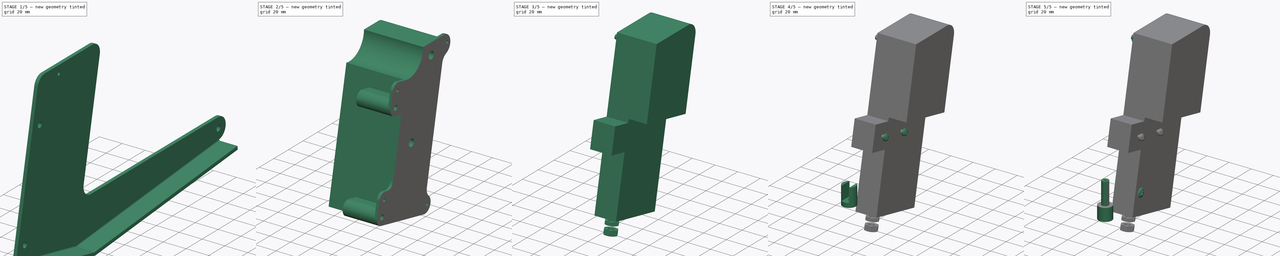
[diagram: build sequence overview — one tinted view per stage of 5, left to right]
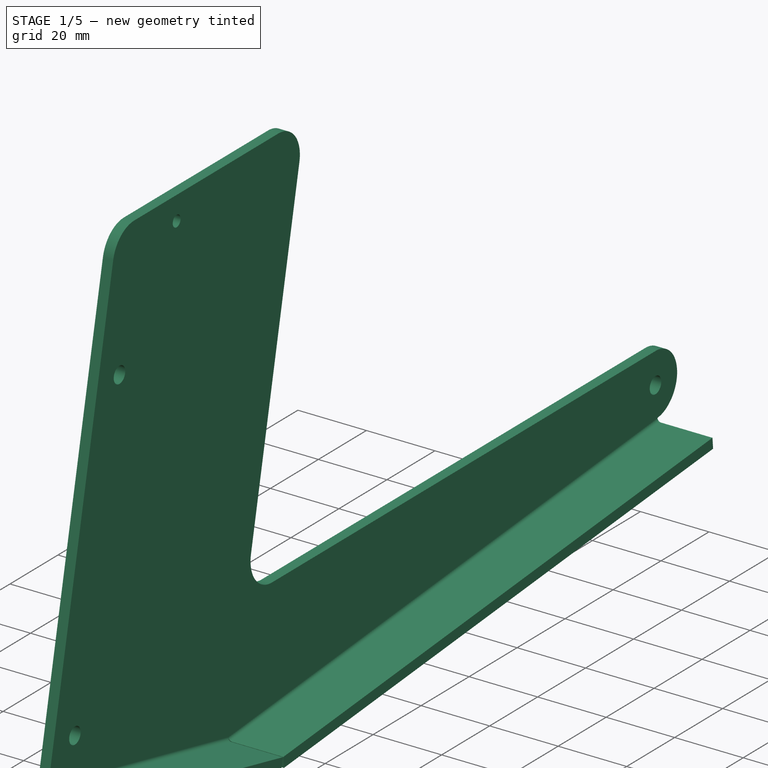
[diagram: stage 1 of 5 — iso view after this stage's code; geometry added in this stage tinted green]
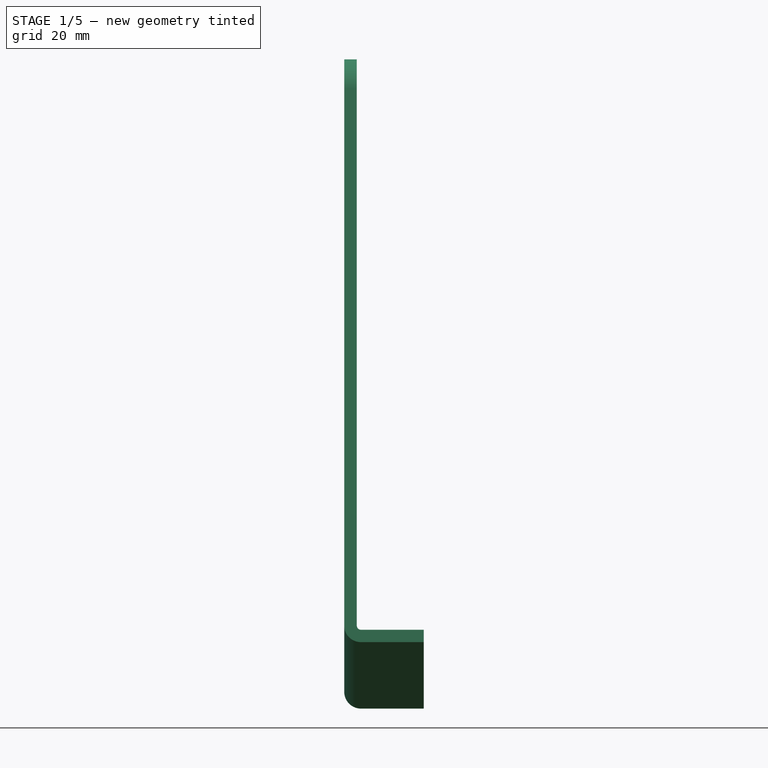
[diagram: stage 1 of 5 — front view after this stage's code; geometry added in this stage tinted green]
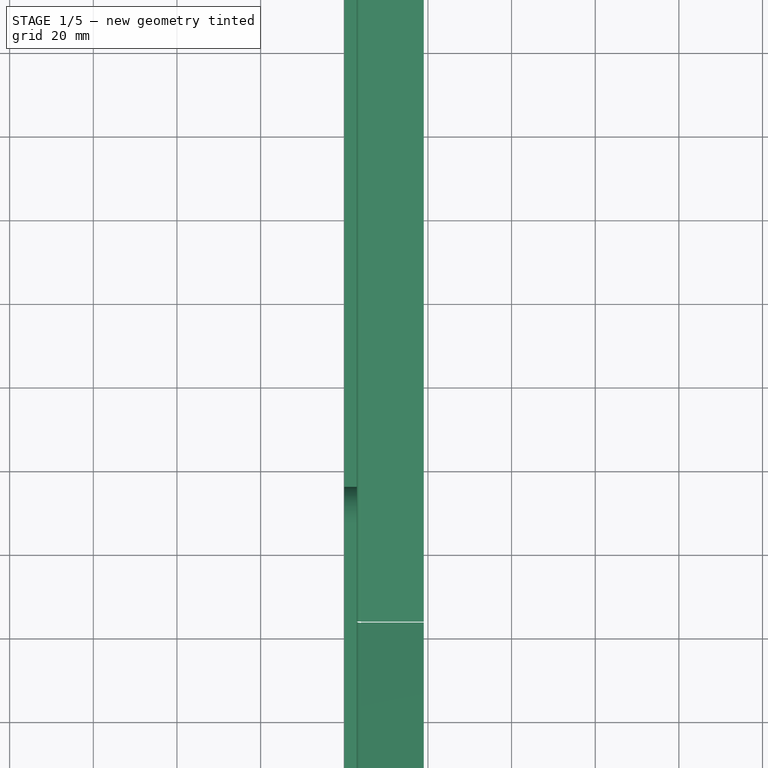
[diagram: stage 1 of 5 — top view after this stage's code; geometry added in this stage tinted green]
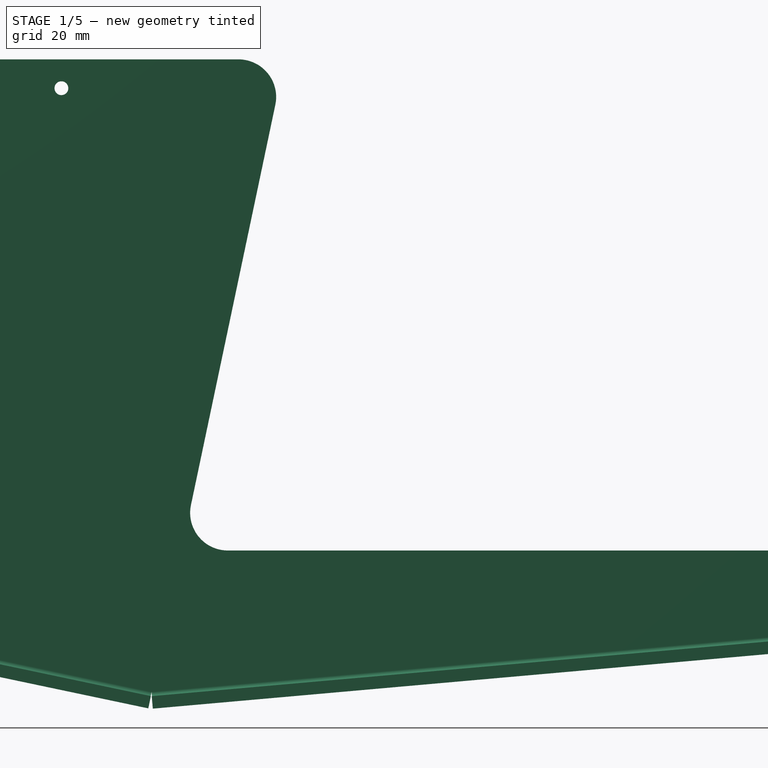
[diagram: stage 1 of 5 — right view after this stage's code; geometry added in this stage tinted green]
FCSTD DOCUMENT  (FreeCAD 0.22R35451 (Git))
Label: MainUnit
License: All rights reserved
LicenseURL: http://en.wikipedia.org/wiki/All_rights_reserved
objects: Sketcher::SketchObject×35, Part::Feature×31, App::Part×28, TechDraw::DrawViewDimension×21, PartDesign::Pad×16, Part::FeaturePython×14, PartDesign::Hole×9, PartDesign::Body×8, PartDesign::ShapeBinder×8, PartDesign::Pocket×6, App::DocumentObjectGroup×5, PartDesign::Revolution×2, PartDesign::Plane×2, TechDraw::DrawSVGTemplate×2, TechDraw::DrawViewPart×2, TechDraw::DrawPage×2, TechDraw::DrawViewDimExtent×2, PartDesign::SubShapeBinder×2, PartDesign::Thickness×2, Image::ImagePlane×1, +3 more types
note: 205 computed .brp shape members not serialized (recipe doc carries the construction recipe); baked Part::Feature solids carry a one-line shape summary decoded from their .brp

FEATURE [Sketcher::SketchObject] Sketch  label="Holes"
  FullyConstrained = true
  MapMode = 5
  Placement = pos=(0,0,0) rot=(0.57735,0.57735,0.57735;2.0944rad)
  Support = -> [YZ_Plane]
  sketch-geometry (8):
    g0: LineSegment StartX=0 StartY=0 StartZ=0 EndX=242 EndY=0 EndZ=0
    g1: LineSegment StartX=242 StartY=0 StartZ=0 EndX=239.233 EndY=75.9496 EndZ=0
    g2: LineSegment StartX=239.233 StartY=75.9496 StartZ=0 EndX=18.5658 EndY=88.0643 EndZ=0
    g3: LineSegment StartX=18.5658 StartY=88.0643 StartZ=0 EndX=0 EndY=0 EndZ=0
    g4: Circle CenterX=18.5658 CenterY=88.0643 CenterZ=0 NormalX=0 NormalY=0 NormalZ=1 AngleXU=0 Radius=2
    g5: Circle CenterX=0 CenterY=0 CenterZ=0 NormalX=0 NormalY=0 NormalZ=1 AngleXU=0 Radius=2
    g6: Circle CenterX=242 CenterY=0 CenterZ=0 NormalX=0 NormalY=0 NormalZ=1 AngleXU=0 Radius=2
    g7: Circle CenterX=239.233 CenterY=75.9496 CenterZ=0 NormalX=0 NormalY=0 NormalZ=1 AngleXU=0 Radius=2
  constraints (19):
    c: Coincident(g0,g-1)
    c: Coincident(g0,g1)
    c: Coincident(g1,g2)
    c: Coincident(g2,g3)
    c: Coincident(g3,g0)
    c: Coincident(g4,g2)
    c: Coincident(g5,g0)
    c: Coincident(g6,g0)
    c: Coincident(g7,g1)
    c: Equal(g4,g7)
    c: Equal(g7,g6)
    c: Equal(g6,g5)
    c: Distance(g3) = 90
    c: Distance(g0) = 242
    c: Distance(g1) = 76
    c: Distance(g2) = 221
    c: Distance(g5,g7) = 251
    c: Horizontal(g0)
    c: Diameter(g5) = 4
FEATURE [Sketcher::SketchObject] Sketch001
  FullyConstrained = true
  MapMode = 5
  Placement = pos=(0,0,0) rot=(0.57735,0.57735,0.57735;2.0944rad)
  Support = -> [YZ_Plane]
  expr: Constraints[11] = Sketch.Constraints[12]
  expr: Constraints[12] = Sketch.Constraints[13]
  expr: Constraints[13] = Sketch.Constraints[14]
  expr: Constraints[14] = Sketch.Constraints[15]
  expr: Constraints[15] = Sketch.Constraints[16]
  expr: Constraints[17] = Sketch.Constraints[18]
  sketch-geometry (26):
    g0: LineSegment StartX=0 StartY=0 StartZ=0 EndX=242 EndY=0 EndZ=0
    g1: LineSegment StartX=242 StartY=0 StartZ=0 EndX=239.233 EndY=75.9496 EndZ=0
    g2: LineSegment StartX=239.233 StartY=75.9496 StartZ=0 EndX=18.5658 EndY=88.0643 EndZ=0
    g3: LineSegment StartX=18.5658 StartY=88.0643 StartZ=0 EndX=0 EndY=0 EndZ=0
    g4: Circle CenterX=18.5658 CenterY=88.0643 CenterZ=0 NormalX=0 NormalY=0 NormalZ=1 AngleXU=0 Radius=2
    g5: Circle CenterX=0 CenterY=0 CenterZ=0 NormalX=0 NormalY=0 NormalZ=1 AngleXU=0 Radius=2
    g6: Circle CenterX=242 CenterY=0 CenterZ=0 NormalX=0 NormalY=0 NormalZ=1 AngleXU=0 Radius=2
    g7: Circle CenterX=239.233 CenterY=75.9496 CenterZ=0 NormalX=0 NormalY=0 NormalZ=1 AngleXU=0 Radius=2
    g8: LineSegment StartX=242 StartY=-9 StartZ=0 EndX=0 EndY=-9 EndZ=0
    g9: ArcOfCircle CenterX=0 CenterY=0 CenterZ=0 NormalX=0 NormalY=0 NormalZ=1 AngleXU=0 Radius=9 StartAngle=2.93381 EndAngle=4.71239
    g10: LineSegment StartX=-8.80643 StartY=1.85658 StartZ=0 EndX=15.9479 EndY=119.276 EndZ=0
    g11: ArcOfCircle CenterX=24.7544 CenterY=117.419 CenterZ=0 NormalX=0 NormalY=0 NormalZ=1 AngleXU=0 Radius=9 StartAngle=1.5708 EndAngle=2.93381
    g12: LineSegment StartX=24.7544 StartY=126.419 StartZ=0 EndX=84.7544 EndY=126.419 EndZ=0
    g13: LineSegment StartX=93.5608 StartY=115.562 StartZ=0 EndX=73.384 EndY=19.8566 EndZ=0
    g14: ArcOfCircle CenterX=82.1904 CenterY=18 CenterZ=0 NormalX=0 NormalY=0 NormalZ=1 AngleXU=0 Radius=9 StartAngle=2.93381 EndAngle=4.71239
    g15: LineSegment StartX=82.1904 StartY=9 StartZ=0 EndX=242 EndY=9 EndZ=0
    g16: ArcOfCircle CenterX=242 CenterY=0 CenterZ=0 NormalX=0 NormalY=0 NormalZ=1 AngleXU=0 Radius=9 StartAngle=4.71239 EndAngle=7.85398
    g17: LineSegment StartX=35.8496 StartY=126.419 StartZ=0 EndX=7.30044 EndY=-9 EndZ=0
    g18: LineSegment StartX=-8.80643 StartY=1.85658 StartZ=0 EndX=0 EndY=0 EndZ=0
    g19: LineSegment StartX=0 StartY=0 StartZ=0 EndX=8.80643 EndY=-1.85658 EndZ=0
    g20: ArcOfCircle CenterX=84.7544 CenterY=117.419 CenterZ=0 NormalX=0 NormalY=0 NormalZ=1 AngleXU=0 Radius=9 StartAngle=6.07541 EndAngle=7.85398
    g21: GeomPoint X=95.8496 Y=126.419 Z=0
    g22: LineSegment StartX=-8.80643 StartY=1.85658 StartZ=0 EndX=-11.0952 EndY=-9 EndZ=0
    g23: LineSegment StartX=-11.0952 StartY=-9 StartZ=0 EndX=63.9644 EndY=-24.8241 EndZ=0
    g24: LineSegment StartX=63.9644 StartY=-24.8241 StartZ=0 EndX=242.795 EndY=-8.96482 EndZ=0
    g25: ArcOfCircle CenterX=242 CenterY=0 CenterZ=0 NormalX=0 NormalY=0 NormalZ=1 AngleXU=0 Radius=9 StartAngle=4.80084 EndAngle=7.85398
  constraints (65):
    c: Coincident(g0,g1)
    c: Coincident(g1,g2)
    c: Coincident(g2,g3)
    c: Coincident(g3,g0)
    c: Coincident(g4,g2)
    c: Coincident(g5,g0)
    c: Coincident(g6,g0)
    c: Coincident(g7,g1)
    c: Equal(g4,g7)
    c: Equal(g7,g6)
    c: Equal(g6,g5)
    c: Distance(g3) = 90
    c: Distance(g0) = 242
    c: Distance(g1) = 76
    c: Distance(g2) = 221
    c: Distance(g5,g7) = 251
    c: Horizontal(g0)
    c: Diameter(g5) = 4
    c: PointOnObject(g8,g-2)
    c: Tangent(g8,g9) = 1.5708
    c: Tangent(g9,g10) = 1.5708
    c: Tangent(g10,g11) = 1.5708
    c: Tangent(g11,g12) = 1.5708
    c: Tangent(g13,g14) = -1.5708
    c: Coincident(g14,g15)
    c: Horizontal(g15)
    c: Tangent(g15,g16) = 1.5708
    c: Parallel(g13,g10)
    c: Tangent(g16,g8) = 1.5708
    c: Tangent(g14,g15,g14) = -1.5708
    c: Coincident(g16,g0)
    c: Coincident(g0,g9)
    c: DistanceY(g8,g15) = 18
    c: Equal(g9,g14)
    c: PointOnObject(g17,g8)
    c: Parallel(g17,g3)
    c: Coincident(g18,g9)
    c: Coincident(g18,g9)
    c: Coincident(g19,g9)
    c: PointOnObject(g19,g17)
    c: Parallel(g19,g18)
    c: Equal(g18,g19)
    c: Coincident(g9,g-1)
    c: Parallel(g3,g10)
    c: PointOnObject(g17,g12)
    c: Equal(g11,g9)
    c: Tangent(g12,g20) = 1.5708
    c: Tangent(g13,g20) = 1.5708
    c: Equal(g20,g11)
    c: Distance(g10) = 120
    c: PointOnObject(g21,g13)
    c: PointOnObject(g21,g12)
    c: Distance(g21,g17) = 60
    c: Angle(g3,g-2) = 0.207778  'OffsetAngle'
    c: Horizontal(g12)
    c: Coincident(g22,g10)
    c: Coincident(g23,g22)
    c: Coincident(g24,g23)
    c: Coincident(g25,g0)
    c: Coincident(g25,g15)
    c: Parallel(g22,g10)
    c: Perpendicular(g10,g23)
    c: PointOnObject(g22,g8)
    c: Tangent(g25,g24) = -1.5708
    c: PointOnObject(g23,g13)
FEATURE [Image::ImagePlane] _0230929_183725  label="TractorPhoto"
  Placement = pos=(-94.5,108.43,22.499) rot=(0.583952,0.563916,0.583952;2.11466rad)
  XSize = 537.443
  YSize = 403.082
FEATURE [PartDesign::Pad] Pad
  Direction = (1,-2e-16,3e-16)
  Length = 3
  Length2 = 10
  Placement = pos=(0,0,0) rot=(0.57735,0.57735,0.57735;2.0944rad)
  Profile = -> Sketch001
  ReferenceAxis = -> Sketch001 [N_Axis]
  Type = 0
FEATURE [PartDesign::Hole] Hole
  BaseFeature = -> Pad
  CustomThreadClearance = 0
  Depth = 592.078
  DepthType = 1
  Diameter = 4.8
  DrillForDepth = false
  DrillPoint = 1
  DrillPointAngle = 118
  HoleCutCountersinkAngle = 90
  HoleCutCustomValues = false
  HoleCutDepth = 0
  HoleCutDiameter = 6.1
  HoleCutType = 0
  ModelThread = false
  Placement = pos=(0,0,0) rot=(0.57735,0.57735,0.57735;2.0944rad)
  Profile = -> Sketch
  Reversed = true
  Tapered = false
  TaperedAngle = 90
  ThreadClass = 0
  ThreadDepth = 592.078
  ThreadDepthType = 0
  ThreadDirection = 0
  ThreadFit = 2
  ThreadSize = 11
  ThreadType = 1
  Threaded = false
  UseCustomThreadClearance = false
FEATURE [Sketcher::SketchObject] Sketch003
  FullyConstrained = true
  MapMode = 5
  Support = -> [XY_Plane003]
  sketch-geometry (6):
    g0: LineSegment StartX=0 StartY=0 StartZ=0 EndX=37.4 EndY=0 EndZ=0
    g1: LineSegment StartX=37.4 StartY=0 StartZ=0 EndX=37.4 EndY=20 EndZ=0
    g2: LineSegment StartX=37.4 StartY=20 StartZ=0 EndX=8.5 EndY=20 EndZ=0
    g3: LineSegment StartX=8.5 StartY=20 StartZ=0 EndX=8.5 EndY=19 EndZ=0
    g4: LineSegment StartX=8.5 StartY=19 StartZ=0 EndX=0 EndY=19 EndZ=0
    g5: LineSegment StartX=0 StartY=19 StartZ=0 EndX=0 EndY=0 EndZ=0
  constraints (17):
    c: Coincident(g-1,g0)
    c: PointOnObject(g0,g-1)
    c: Coincident(g0,g1)
    c: Vertical(g1)
    c: Coincident(g1,g2)
    c: Horizontal(g2)
    c: Coincident(g2,g3)
    c: Vertical(g3)
    c: Coincident(g3,g4)
    c: PointOnObject(g4,g-2)
    c: Horizontal(g4)
    c: Coincident(g4,g5)
    c: Coincident(g5,g0)
    c: DistanceY(g1,g1) = 20
    c: DistanceX(g0,g0) = 37.4
    c: DistanceY(g5,g5) = 19
    c: DistanceX(g4,g4) = 8.5
FEATURE [PartDesign::Pad] Pad001
  Direction = (0,0,1)
  Length = 14.8
  Length2 = 10
  Profile = -> Sketch003
  ReferenceAxis = -> Sketch003 [N_Axis]
  Type = 0
FEATURE [Sketcher::SketchObject] Sketch004
  AttachmentOffset = pos=(0,0,3.5) rot=(0,0,1;0rad)
  FullyConstrained = true
  MapMode = 5
  Placement = pos=(0,0,3.5) rot=(0,0,1;0rad)
  Support = -> [XY_Plane003]
  sketch-geometry (8):
    g0: LineSegment StartX=37.4 StartY=14.5 StartZ=0 EndX=42.5 EndY=14.5 EndZ=0
    g1: ArcOfCircle CenterX=42.5 CenterY=11 CenterZ=0 NormalX=0 NormalY=0 NormalZ=1 AngleXU=0 Radius=3.5 StartAngle=1e-16 EndAngle=1.5708
    g2: LineSegment StartX=46 StartY=11 StartZ=0 EndX=46 EndY=8 EndZ=0
    g3: ArcOfCircle CenterX=42.5 CenterY=8 CenterZ=0 NormalX=0 NormalY=0 NormalZ=1 AngleXU=0 Radius=3.5 StartAngle=4.71239 EndAngle=6.28319
    g4: LineSegment StartX=42.5 StartY=4.5 StartZ=0 EndX=37.4 EndY=4.5 EndZ=0
    g5: LineSegment StartX=37.4 StartY=4.5 StartZ=0 EndX=37.4 EndY=14.5 EndZ=0
    g6: Circle CenterX=41.7 CenterY=9.5 CenterZ=0 NormalX=0 NormalY=0 NormalZ=1 AngleXU=0 Radius=2
    g7: LineSegment StartX=41.7 StartY=9.5 StartZ=0 EndX=37.4 EndY=9.5 EndZ=0
  constraints (24):
    c: Tangent(g0,g1) = 1.5708
    c: Tangent(g1,g2) = 1.5708
    c: Tangent(g2,g3) = 1.5708
    c: Tangent(g3,g4) = 1.5708
    c: Coincident(g4,g5)
    c: Coincident(g5,g0)
    c: Vertical(g5)
    c: Horizontal(g0)
    c: Horizontal(g4)
    c: Equal(g3,g1)
    c: DistanceY(g5,g5) = 10
    c: DistanceX(g-1,g4) = 37.4
    c: DistanceY(g-1,g4) = 4.5
    c: Vertical(g2)
    c: Diameter(g3) = 7
    c: DistanceX(g0,g1) = 8.6
    c: Coincident(g7,g6)
    c: PointOnObject(g7,g5)
    c: Symmetric(g4,g0,g7)
    c: DistanceX(g7,g7) = 4.3
    c: Diameter(g6) = 4
    c: DistanceX(g-1,g6) = 41.7  'BackHoleCentre'
    c: DistanceX(g-1,g2) = 46  'BackTabEnd'
    c: DistanceY(g-1,g6) = 9.5  'Centreline'
FEATURE [PartDesign::Pad] Pad002
  BaseFeature = -> Pad001
  Direction = (0,0,1)
  Length = 7.8
  Length2 = 10
  Profile = -> Sketch004
  ReferenceAxis = -> Sketch004 [N_Axis]
  Type = 0
FEATURE [Sketcher::SketchObject] Sketch005
  FullyConstrained = true
  MapMode = 5
  Placement = pos=(0,0,0) rot=(0.57735,-0.57735,-0.57735;2.0944rad)
  Support = -> [YZ_Plane003]
  sketch-geometry (7):
    g0: LineSegment StartX=-4.2085 StartY=13.4 StartZ=0 EndX=-14.7915 EndY=13.4 EndZ=0
    g1: LineSegment StartX=-14.7915 StartY=13.4 StartZ=0 EndX=-14.7915 EndY=1.4 EndZ=0
    g2: LineSegment StartX=-14.7915 StartY=1.4 StartZ=0 EndX=-4.2085 EndY=1.4 EndZ=0
    g3: LineSegment StartX=-4.2085 StartY=1.4 StartZ=0 EndX=-4.2085 EndY=13.4 EndZ=0
    g4: ArcOfCircle CenterX=-9.5 CenterY=7.4 CenterZ=0 NormalX=0 NormalY=0 NormalZ=1 AngleXU=0 Radius=8 StartAngle=2.29353 EndAngle=3.98965
    g5: ArcOfCircle CenterX=-9.5 CenterY=7.4 CenterZ=0 NormalX=0 NormalY=0 NormalZ=1 AngleXU=0 Radius=8 StartAngle=5.43512 EndAngle=7.13125
    g6: LineSegment StartX=-17.5 StartY=7.4 StartZ=0 EndX=-1.5 EndY=7.4 EndZ=0
  constraints (22):
    c: Coincident(g0,g1)
    c: Coincident(g1,g2)
    c: Coincident(g2,g3)
    c: Coincident(g3,g0)
    c: Horizontal(g0)
    c: Horizontal(g2)
    c: Vertical(g1)
    c: Coincident(g4,g0)
    c: Coincident(g4,g1)
    c: Coincident(g5,g0)
    c: Coincident(g5,g2)
    c: PointOnObject(g6,g4)
    c: PointOnObject(g6,g5)
    c: Horizontal(g6)
    c: PointOnObject(g5,g6)
    c: DistanceY(g3,g3) = 12
    c: DistanceX(g6,g6) = 16
    c: Equal(g4,g5)
    c: Coincident(g5,g4)
    c: DistanceX(g0,g0) = 10.583
    c: DistanceY(g-1,g4) = 7.4
    c: DistanceX(g6,g-1) = 1.5
FEATURE [PartDesign::Pad] Pad003
  BaseFeature = -> Pad002
  Direction = (-1,2e-16,-3e-16)
  Length = 37.3
  Length2 = 10
  Profile = -> Sketch005
  ReferenceAxis = -> Sketch005 [N_Axis]
  Type = 0
FEATURE [Sketcher::SketchObject] Sketch006
  AttachmentOffset = pos=(0,0,30) rot=(0,0,1;0rad)
  FullyConstrained = true
  MapMode = 5
  Placement = pos=(-67.3,1.64e-14,-8.2e-15) rot=(0.57735,-0.57735,-0.57735;2.0944rad)
  Support = -> [Pad003]
  expr: .AttachmentOffset.Base.z = Pad004.Length
  expr: Constraints[18] = Sketch005.Constraints[20]
  sketch-geometry (7):
    g0: LineSegment StartX=-6.1913 StartY=10.45 StartZ=0 EndX=-12.8087 EndY=10.45 EndZ=0
    g1: LineSegment StartX=-12.8087 StartY=10.45 StartZ=0 EndX=-12.8087 EndY=4.35 EndZ=0
    g2: LineSegment StartX=-12.8087 StartY=4.35 StartZ=0 EndX=-6.1913 EndY=4.35 EndZ=0
    g3: LineSegment StartX=-6.1913 StartY=4.35 StartZ=0 EndX=-6.1913 EndY=10.45 EndZ=0
    g4: ArcOfCircle CenterX=-9.5 CenterY=7.4 CenterZ=0 NormalX=0 NormalY=0 NormalZ=1 AngleXU=0 Radius=4.5 StartAngle=2.39686 EndAngle=3.88633
    g5: ArcOfCircle CenterX=-9.5 CenterY=7.4 CenterZ=0 NormalX=0 NormalY=0 NormalZ=1 AngleXU=0 Radius=4.5 StartAngle=5.53845 EndAngle=7.02792
    g6: LineSegment StartX=-14 StartY=7.4 StartZ=0 EndX=-5 EndY=7.4 EndZ=0
  constraints (22):
    c: Coincident(g0,g1)
    c: Coincident(g1,g2)
    c: Coincident(g2,g3)
    c: Coincident(g3,g0)
    c: Horizontal(g0)
    c: Horizontal(g2)
    c: Vertical(g1)
    c: Coincident(g4,g0)
    c: Coincident(g4,g1)
    c: Coincident(g5,g0)
    c: Coincident(g5,g2)
    c: PointOnObject(g6,g4)
    c: PointOnObject(g6,g5)
    c: Horizontal(g6)
    c: PointOnObject(g5,g6)
    c: Equal(g4,g5)
    c: Coincident(g5,g4)
    c: DistanceX(g0,g0) = 6.6174
    c: DistanceY(g-1,g4) = 7.4
    c: DistanceX(g4) = -9.5
    c: DistanceX(g6,g6) = 9
    c: DistanceY(g3,g3) = 6.1
FEATURE [Sketcher::SketchObject] Sketch007
  FullyConstrained = true
  MapMode = 5
  Support = -> [XY_Plane003]
  expr: Constraints[14] = 54.5 mm + 30 mm - Sketch004.Constraints.BackHoleCentre + Pad004.Length
  expr: Constraints[21] = 63.5 mm + 30 mm - Sketch004.Constraints.BackTabEnd + Pad004.Length
  sketch-geometry (8):
    g0: ArcOfCircle CenterX=-66.875 CenterY=9.5 CenterZ=0 NormalX=0 NormalY=0 NormalZ=1 AngleXU=0 Radius=10.625 StartAngle=2.70425 EndAngle=3.57893
    g1: LineSegment StartX=-76.5 StartY=14 StartZ=0 EndX=-86.5 EndY=14 EndZ=0
    g2: LineSegment StartX=-86.5 StartY=14 StartZ=0 EndX=-86.5 EndY=5 EndZ=0
    g3: LineSegment StartX=-86.5 StartY=5 StartZ=0 EndX=-76.5 EndY=5 EndZ=0
    g4: Circle CenterX=-72.8 CenterY=9.5 CenterZ=0 NormalX=0 NormalY=0 NormalZ=1 AngleXU=0 Radius=2
    g5: LineSegment StartX=-86.5 StartY=9.5 StartZ=0 EndX=-72.8 EndY=9.5 EndZ=0
    g6: GeomPoint X=-77.5 Y=9.5 Z=0
    g7: LineSegment StartX=-76.5 StartY=14 StartZ=0 EndX=-76.5 EndY=5 EndZ=0
  constraints (22):
    c: Coincident(g1,g0)
    c: Horizontal(g1)
    c: Coincident(g1,g2)
    c: Vertical(g2)
    c: Coincident(g2,g3)
    c: Coincident(g3,g0)
    c: Horizontal(g3)
    c: Diameter(g4) = 4
    c: DistanceY(g2,g2) = 9
    c: DistanceY(g-1,g0) = 9.5
    c: PointOnObject(g5,g2)
    c: Symmetric(g1,g2,g5)
    c: PointOnObject(g6,g0)
    c: PointOnObject(g6,g5)
    c: DistanceX(g4,g-1) = 72.8
    c: Coincident(g5,g4)
    c: Coincident(g7,g0)
    c: Coincident(g7,g0)
    c: DistanceX(g1,g1) = 10
    c: PointOnObject(g0,g5)
    c: DistanceX(g6,g0) = 1
    c: DistanceX(g6,g-1) = 77.5
FEATURE [Sketcher::SketchObject] Sketch008
  FullyConstrained = true
  MapMode = 5
  Placement = pos=(-37.3,1.64e-14,-8.2e-15) rot=(0.57735,-0.57735,-0.57735;2.0944rad)
  Support = -> [Pad003]
  sketch-geometry (8):
    g0: LineSegment StartX=-6.1913 StartY=10.45 StartZ=0 EndX=-12.8087 EndY=10.45 EndZ=0
    g1: LineSegment StartX=-12.8087 StartY=10.45 StartZ=0 EndX=-12.8087 EndY=4.35 EndZ=0
    g2: LineSegment StartX=-12.8087 StartY=4.35 StartZ=0 EndX=-6.1913 EndY=4.35 EndZ=0
    g3: LineSegment StartX=-6.1913 StartY=4.35 StartZ=0 EndX=-6.1913 EndY=10.45 EndZ=0
    g4: ArcOfCircle CenterX=-9.5 CenterY=7.4 CenterZ=0 NormalX=0 NormalY=0 NormalZ=1 AngleXU=0 Radius=4.5 StartAngle=2.39686 EndAngle=3.88633
    g5: ArcOfCircle CenterX=-9.5 CenterY=7.4 CenterZ=0 NormalX=0 NormalY=0 NormalZ=1 AngleXU=0 Radius=4.5 StartAngle=5.53845 EndAngle=7.02792
    g6: LineSegment StartX=-14 StartY=7.4 StartZ=0 EndX=-5 EndY=7.4 EndZ=0
    g7: Circle CenterX=-9.5 CenterY=7.4 CenterZ=0 NormalX=0 NormalY=0 NormalZ=1 AngleXU=0 Radius=4.5
  constraints (24):
    c: Coincident(g0,g1)
    c: Coincident(g1,g2)
    c: Coincident(g2,g3)
    c: Coincident(g3,g0)
    c: Horizontal(g0)
    c: Horizontal(g2)
    c: Vertical(g1)
    c: Coincident(g4,g0)
    c: Coincident(g4,g1)
    c: Coincident(g5,g0)
    c: Coincident(g5,g2)
    c: PointOnObject(g6,g4)
    c: PointOnObject(g6,g5)
    c: Horizontal(g6)
    c: PointOnObject(g5,g6)
    c: Equal(g4,g5)
    c: Coincident(g5,g4)
    c: DistanceX(g0,g0) = 6.6174
    c: DistanceY(g-1,g4) = 7.4
    c: DistanceX(g4) = -9.5
    c: DistanceX(g6,g6) = 9
    c: DistanceY(g3,g3) = 6.1
    c: Coincident(g7,g4)
    c: PointOnObject(g0,g7)
FEATURE [PartDesign::Pad] Pad004
  BaseFeature = -> Pad003
  Direction = (-1,3e-16,-1e-16)
  Length = 30
  Length2 = 10
  Profile = -> Sketch008
  ReferenceAxis = -> Sketch008 [N_Axis]
  Type = 0
  expr: Length = Spreadsheet.currentLength
FEATURE [PartDesign::Pad] Pad005
  BaseFeature = -> Pad004
  Direction = (-1,3e-16,-1e-16)
  Length = 11
  Length2 = 10
  Profile = -> Sketch006
  ReferenceAxis = -> Sketch006 [N_Axis]
  Type = 0
FEATURE [PartDesign::Pocket] Pocket
  BaseFeature = -> Pad005
  Direction = (0,0,-1)
  Length = 5
  Length2 = 5
  Profile = -> Sketch007
  ReferenceAxis = -> Sketch007 [N_Axis]
  Reversed = true
  Type = 1
FEATURE [PartDesign::Body] Body001  label="TensionAdjuster"
  Group = -> [Sketch011,Revolution]
  Origin = -> Origin001
  Placement = pos=(11.1,10.6717,-30.8944) rot=(-1,0,0;0.207778rad)
  Tip = -> Revolution
  expr: .Placement.Rotation.Angle = Sketch001.Constraints.OffsetAngle
FEATURE [PartDesign::CoordinateSystem] Local_CS
  AttacherType = Attacher::AttachEngine3D
  AttachmentOffset = pos=(0,0,6.5) rot=(0,0,1;0rad)
  MapMode = 2
  Placement = pos=(0,42.4119,119.521) rot=(-1,0,0;0.207778rad)
  Support = -> [Part]
FEATURE [PartDesign::Plane] DatumPlane
  AttachmentOffset = pos=(0,0,0) rot=(0,1,0;1.5708rad)
  Length = 259.054
  MapMode = 5
  Placement = pos=(0,42.4119,119.521) rot=(-0.103149,0.989303,-0.103149;1.58155rad)
  ResizeMode = 0
  Support = -> [Local_CS]
  Width = 352.293
FEATURE [Sketcher::SketchObject] Sketch012
  FullyConstrained = true
  MapMode = 5
  Placement = pos=(0,42.4119,119.521) rot=(-0.103149,0.989303,-0.103149;1.58155rad)
  Support = -> [DatumPlane]
  sketch-geometry (1):
    g0: Circle CenterX=0 CenterY=0 CenterZ=0 NormalX=0 NormalY=0 NormalZ=1 AngleXU=0 Radius=2
  constraints (2):
    c: Coincident(g0,g-1)
    c: Diameter(g0) = 4
FEATURE [PartDesign::Hole] Hole001
  BaseFeature = -> Hole
  CustomThreadClearance = 0
  Depth = 596.243
  DepthType = 1
  Diameter = 3.3
  DrillForDepth = false
  DrillPoint = 1
  DrillPointAngle = 118
  HoleCutCountersinkAngle = 90
  HoleCutCustomValues = false
  HoleCutDepth = 0
  HoleCutDiameter = 6.1
  HoleCutType = 0
  ModelThread = false
  Placement = pos=(0,0,0) rot=(0.57735,0.57735,0.57735;2.0944rad)
  Profile = -> Sketch012
  Reversed = true
  Tapered = false
  TaperedAngle = 90
  ThreadClass = 0
  ThreadDepth = 596.243
  ThreadDepthType = 0
  ThreadDirection = 0
  ThreadFit = 0
  ThreadSize = 11
  ThreadType = 1
  Threaded = true
  UseCustomThreadClearance = false
FEATURE [App::DocumentObjectGroup] Group002  label="ActuatorSteady"
  Group = -> [Body004,Body005]
FEATURE [Part::Feature] Part__Feature  label="L298N v2"
  Placement = pos=(56.5,56.5,40) rot=(0.57735,0.57735,0.57735;2.0944rad)
  shape: bbox 28.02 x 43 x 43 mm, 1283 faces (baked)
FEATURE [App::Part] Part002  label="L298NTransform"
  Group = -> [Part__Feature]
  Origin = -> Origin009
  Placement = pos=(-86.5,-3.46482,87.7866) rot=(0.705194,0.705194,-0.073497;2.99486rad)
FEATURE [PartDesign::FeaturePython] Bend  # WARN: FeaturePython — macro-defined, semantics opaque (R4)
  AutoMiter = true
  BaseFeature = -> Hole001
  BendType = 0
  LengthList = [15]
  LengthSpec = 0
  ReliefFactor = 0.7
  UseReliefFactor = false
  angle = 90
  baseObject = -> Hole001 [Face8,Face6]
  bendAList = [90]
  extend1 = 0
  extend2 = 0
  gap1 = 0
  gap2 = 0
  invert = false
  kfactor = 0.5
  length = 15
  maxExtendDist = 5
  minGap = 0.1
  minReliefGap = 1
  miterangle1 = 0
  miterangle2 = 0
  offset = 0
  radius = 1
  reliefType = 0
  reliefd = 1
  reliefw = 0.8
  sketchflip = false
  sketchinvert = false
  unfold = false
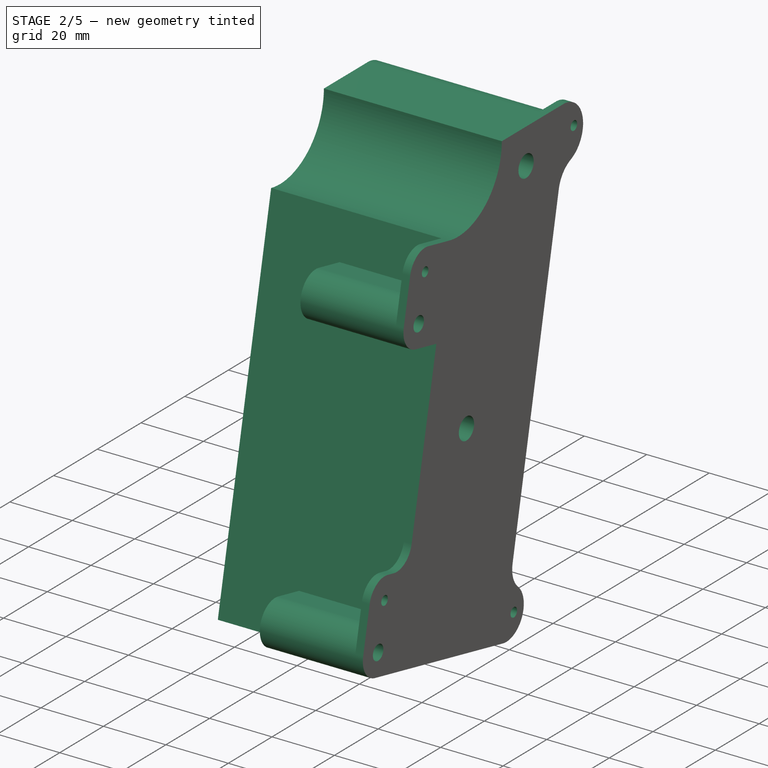
[diagram: stage 2 of 5 — iso view after this stage's code; geometry added in this stage tinted green]
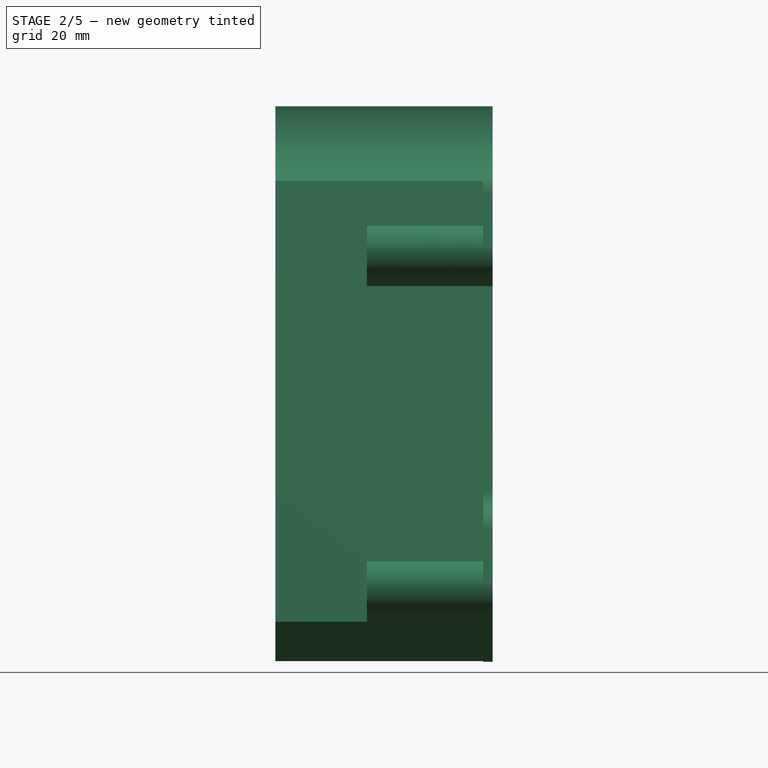
[diagram: stage 2 of 5 — front view after this stage's code; geometry added in this stage tinted green]
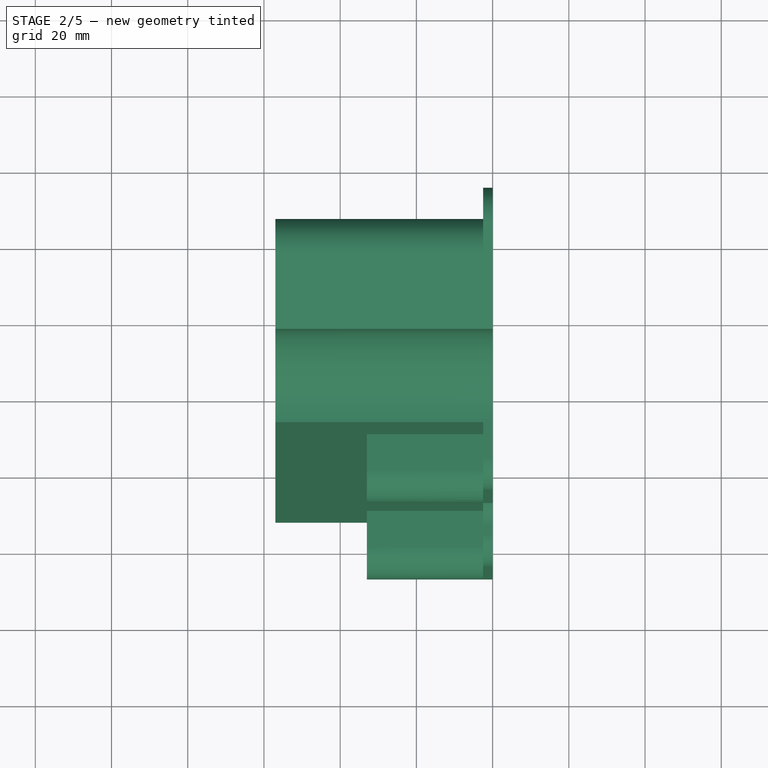
[diagram: stage 2 of 5 — top view after this stage's code; geometry added in this stage tinted green]
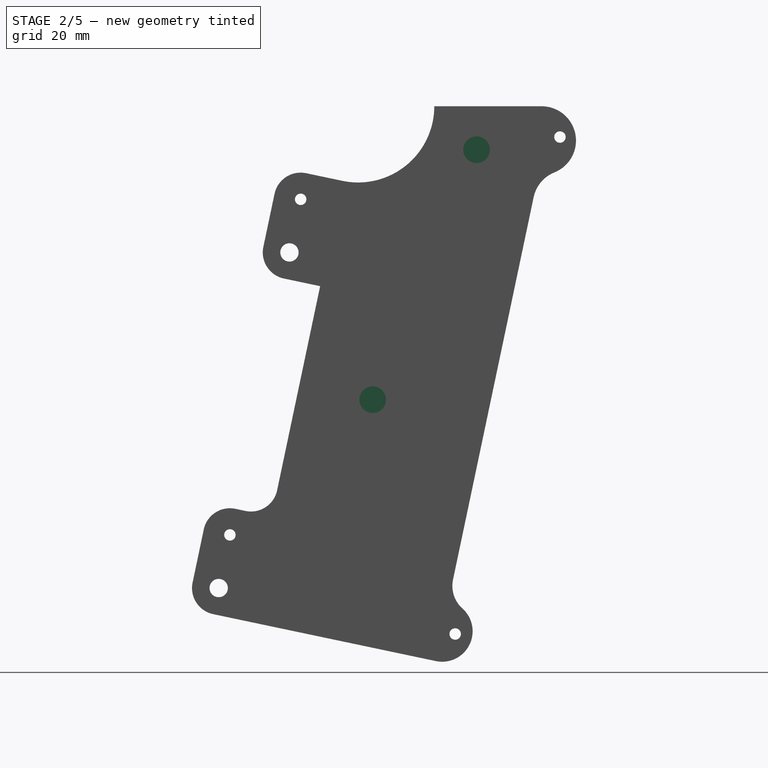
[diagram: stage 2 of 5 — right view after this stage's code; geometry added in this stage tinted green]
FEATURE [PartDesign::ShapeBinder] ShapeBinder008
  Placement = pos=(0,0,0) rot=(0.57735,0.57735,0.57735;2.0944rad)
  Support = -> [Sketch017]
  TraceSupport = false
FEATURE [Sketcher::SketchObject] Sketch028
  ExternalGeometry = -> [ShapeBinder008]
  FullyConstrained = true
  MapMode = 5
  Placement = pos=(0,0,0) rot=(0.57735,0.57735,0.57735;2.0944rad)
  Support = -> [YZ_Plane]
  sketch-geometry (2):
    g0: Circle CenterX=15.947 CenterY=54.5838 CenterZ=0 NormalX=0 NormalY=0 NormalZ=1 AngleXU=0 Radius=2
    g1: Circle CenterX=40.4093 CenterY=49.4266 CenterZ=0 NormalX=0 NormalY=0 NormalZ=1 AngleXU=0 Radius=2
  constraints (4):
    c: Coincident(g0,g-3)
    c: Coincident(g1,g-4)
    c: Equal(g0,g1)
    c: Equal(g0,g-3)
FEATURE [PartDesign::Hole] Hole007
  BaseFeature = -> Bend
  CustomThreadClearance = 0
  Depth = 617.91
  DepthType = 1
  Diameter = 3.4
  DrillForDepth = false
  DrillPoint = 1
  DrillPointAngle = 118
  HoleCutCountersinkAngle = 90
  HoleCutCustomValues = false
  HoleCutDepth = 0
  HoleCutDiameter = 6.1
  HoleCutType = 0
  ModelThread = false
  Profile = -> Sketch028
  Reversed = true
  Tapered = false
  TaperedAngle = 90
  ThreadClass = 0
  ThreadDepth = 617.91
  ThreadDepthType = 0
  ThreadDirection = 0
  ThreadFit = 0
  ThreadSize = 9
  ThreadType = 1
  Threaded = false
  UseCustomThreadClearance = false
FEATURE [PartDesign::Plane] DatumPlane001
  Length = 74.5789
  MapMode = 5
  Placement = pos=(0,42.4119,119.521) rot=(-1,0,0;0.207778rad)
  ResizeMode = 0
  Support = -> [Local_CS]
  Width = 326.641
FEATURE [Sketcher::SketchObject] Sketch029
  FullyConstrained = true
  MapMode = 5
  Placement = pos=(0,42.4119,119.521) rot=(-1,0,0;0.207778rad)
  Support = -> [DatumPlane001]
  sketch-geometry (1):
    g0: Circle CenterX=11 CenterY=0 CenterZ=0 NormalX=0 NormalY=0 NormalZ=1 AngleXU=0 Radius=3
  constraints (3):
    c: PointOnObject(g0,g-1)
    c: Diameter(g0) = 6
    c: DistanceX(g-1,g0) = 11
FEATURE [PartDesign::Hole] Hole008
  BaseFeature = -> Hole007
  CustomThreadClearance = 0
  Depth = 617.91
  DepthType = 1
  Diameter = 6.6
  DrillForDepth = false
  DrillPoint = 1
  DrillPointAngle = 118
  HoleCutCountersinkAngle = 90
  HoleCutCustomValues = false
  HoleCutDepth = 0
  HoleCutDiameter = 6.1
  HoleCutType = 0
  ModelThread = false
  Profile = -> Sketch029
  Tapered = false
  TaperedAngle = 90
  ThreadClass = 0
  ThreadDepth = 617.91
  ThreadDepthType = 0
  ThreadDirection = 0
  ThreadFit = 0
  ThreadSize = 14
  ThreadType = 1
  Threaded = false
  UseCustomThreadClearance = false
FEATURE [App::DocumentObjectGroup] Group  label="Fasteners"
  Group = -> [Washer,Washer001,Washer002,Washer003,Washer004,Nut001,Screw002,Screw003,Screw001,Nut002,Nut003,Nut,Nut004,Screw]
FEATURE [App::DocumentObjectGroup] Group003  label="Drawings"
  Group = -> [Page001,Page]
FEATURE [App::DocumentObjectGroup] Group004  label="Unfolded"
  Group = -> [Unfold,Unfold_Sketch]
FEATURE [Part::Feature] Part__Feature001  label="SOLID"
  shape: bbox 13.45 x 2.72 x 5.71 mm, 15 faces (baked)
FEATURE [App::Part] D_A_405_P12_70mm_Horizontal  label="D_A-405_P12.70mm_Horizontal"
  Group = -> [Part__Feature001]
  Origin = -> Origin010
  Placement = pos=(74.34,-16.98,1.65) rot=(0,0,-1;1.5708rad)
FEATURE [Part::Feature] Part__Feature002  label="SOLID001"
  shape: bbox 10 x 2.5 x 10.9 mm, 22 faces (baked)
FEATURE [App::Part] C_Rect_L10_0mm_W2_5mm_P7_50mm_MKS4  label="C_Rect_L10.0mm_W2.5mm_P7.50mm_MKS4"
  Group = -> [Part__Feature002]
  Origin = -> Origin011
  Placement = pos=(33.7,-4.4,1.65) rot=(0,0,-1;1.5708rad)
FEATURE [Part::Feature] Part__Feature003  label="SOLID002"
  shape: bbox 8.418 x 2.706 x 5.603 mm, 15 faces (baked)
FEATURE [App::Part] R_Axial_DIN0207_L6_3mm_D2_5mm_P7_62mm_Horizontal  label="R_Axial_DIN0207_L6.3mm_D2.5mm_P7.62mm_Horizontal"
  Group = -> [Part__Feature003]
  Origin = -> Origin012
  Placement = pos=(48.94,-14.44,1.65) rot=(0,0,1;3.14159rad)
FEATURE [Part::Feature] Part__Feature004  label="SOLID003"
  shape: bbox 2.54 x 5.08 x 10.1 mm, 72 faces (baked)
FEATURE [App::Part] PinSocket_1x02_P2_54mm_Vertical  label="PinSocket_1x02_P2.54mm_Vertical"
  Group = -> [Part__Feature004]
  Origin = -> Origin013
  Placement = pos=(54.02,-42.38,1.65) rot=(0,0,1;0rad)
FEATURE [Part::Feature] Part__Feature005  label="SOLID004"
  shape: bbox 8.418 x 2.706 x 5.603 mm, 15 faces (baked)
FEATURE [App::Part] R_Axial_DIN0207_L6_3mm_D2_5mm_P7_62mm_Horizontal001  label="R_Axial_DIN0207_L6.3mm_D2.5mm_P7.62mm_Horizontal001"
  Group = -> [Part__Feature005]
  Origin = -> Origin014
  Placement = pos=(76.88,-11.9,1.65) rot=(0,0,1;1.5708rad)
FEATURE [Part::Feature] Part__Feature006  label="SOLID005"
  shape: bbox 8.418 x 2.706 x 5.603 mm, 15 faces (baked)
FEATURE [App::Part] R_Axial_DIN0207_L6_3mm_D2_5mm_P7_62mm_Horizontal002  label="R_Axial_DIN0207_L6.3mm_D2.5mm_P7.62mm_Horizontal002"
  Group = -> [Part__Feature006]
  Origin = -> Origin015
  Placement = pos=(33.7,-24.56,1.65) rot=(0,0,-1;1.5708rad)
FEATURE [Part::Feature] Part__Feature007  label="SOLID006"
  shape: bbox 8.418 x 2.706 x 5.603 mm, 15 faces (baked)
FEATURE [App::Part] R_Axial_DIN0207_L6_3mm_D2_5mm_P7_62mm_Horizontal003  label="R_Axial_DIN0207_L6.3mm_D2.5mm_P7.62mm_Horizontal003"
  Group = -> [Part__Feature007]
  Origin = -> Origin016
  Placement = pos=(18.46,-9.36,1.65) rot=(0,0,1;3.14159rad)
FEATURE [Part::Feature] Part__Feature008  label="SOLID007"
  shape: bbox 2.54 x 5.08 x 10.1 mm, 72 faces (baked)
FEATURE [App::Part] PinSocket_1x02_P2_54mm_Vertical001  label="PinSocket_1x02_P2.54mm_Vertical001"
  Group = -> [Part__Feature008]
  Origin = -> Origin017
  Placement = pos=(81.96,-29.68,1.65) rot=(0,0,1;0rad)
FEATURE [Part::Feature] Part__Feature009  label="SOLID008"
  shape: bbox 10.96 x 2.706 x 5.603 mm, 17 faces (baked)
FEATURE [App::Part] R_Axial_DIN0207_L6_3mm_D2_5mm_P10_16mm_Horizontal  label="R_Axial_DIN0207_L6.3mm_D2.5mm_P10.16mm_Horizontal"
  Group = -> [Part__Feature009]
  Origin = -> Origin018
  Placement = pos=(38.78,-24.6,1.65) rot=(0,0,1;1.5708rad)
FEATURE [Part::Feature] Part__Feature010  label="SOLID009"
  shape: bbox 8.418 x 2.706 x 5.603 mm, 15 faces (baked)
FEATURE [App::Part] R_Axial_DIN0207_L6_3mm_D2_5mm_P7_62mm_Horizontal004  label="R_Axial_DIN0207_L6.3mm_D2.5mm_P7.62mm_Horizontal004"
  Group = -> [Part__Feature010]
  Origin = -> Origin019
  Placement = pos=(36.24,-24.6,1.65) rot=(0,0,1;1.5708rad)
FEATURE [Part::Feature] Part__Feature011  label="SOLID010"
  shape: bbox 8.418 x 2.706 x 5.603 mm, 15 faces (baked)
FEATURE [App::Part] R_Axial_DIN0207_L6_3mm_D2_5mm_P7_62mm_Horizontal005  label="R_Axial_DIN0207_L6.3mm_D2.5mm_P7.62mm_Horizontal005"
  Group = -> [Part__Feature011]
  Origin = -> Origin020
  Placement = pos=(10.84,-19.52,1.65) rot=(0,0,1;1.5708rad)
FEATURE [Part::Feature] Part__Feature012  label="SOLID011"
  shape: bbox 8.418 x 2.706 x 5.603 mm, 15 faces (baked)
FEATURE [App::Part] R_Axial_DIN0207_L6_3mm_D2_5mm_P7_62mm_Horizontal006  label="R_Axial_DIN0207_L6.3mm_D2.5mm_P7.62mm_Horizontal006"
  Group = -> [Part__Feature012]
  Origin = -> Origin021
  Placement = pos=(79.42,-4.28,1.65) rot=(0,0,1;0rad)
FEATURE [Part::Feature] Part__Feature013  label="SOLID012"
  shape: bbox 9.9 x 5.75 x 10.4 mm, 117 faces (baked)
FEATURE [App::Part] JST_XH_B3B_XH_A_1x03_P2_50mm_Vertical  label="JST_XH_B3B-XH-A_1x03_P2.50mm_Vertical"
  Group = -> [Part__Feature013]
  Origin = -> Origin022
  Placement = pos=(15.92,-42.38,1.65) rot=(0,0,1;1.5708rad)
FEATURE [Part::Feature] Part__Feature014  label="SOLID013"
  shape: bbox 8.418 x 2.706 x 5.603 mm, 15 faces (baked)
FEATURE [App::Part] R_Axial_DIN0207_L6_3mm_D2_5mm_P7_62mm_Horizontal007  label="R_Axial_DIN0207_L6.3mm_D2.5mm_P7.62mm_Horizontal007"
  Group = -> [Part__Feature014]
  Origin = -> Origin023
  Placement = pos=(13.38,-19.52,1.65) rot=(0,0,-1;1.5708rad)
FEATURE [Part::Feature] Part__Feature015  label="SOLID014"
  shape: bbox 10.16 x 10.16 x 7.787 mm, 128 faces (baked)
FEATURE [App::Part] DIP_8_W7_62mm_Socket  label="DIP-8_W7.62mm_Socket"
  Group = -> [Part__Feature015]
  Origin = -> Origin024
  Placement = pos=(23.54,-4.28,1.65) rot=(0,0,1;0rad)
FEATURE [Part::Feature] Part__Feature016  label="SOLID015"
  shape: bbox 10.96 x 2.706 x 5.603 mm, 17 faces (baked)
FEATURE [App::Part] R_Axial_DIN0207_L6_3mm_D2_5mm_P10_16mm_Horizontal001  label="R_Axial_DIN0207_L6.3mm_D2.5mm_P10.16mm_Horizontal001"
  Group = -> [Part__Feature016]
  Origin = -> Origin025
  Placement = pos=(31.16,-24.6,1.65) rot=(0,0,-1;1.5708rad)
FEATURE [Part::Feature] Part__Feature017  label="SOLID016"
  shape: bbox 2.54 x 12.7 x 11.54 mm, 124 faces (baked)
FEATURE [App::Part] PinHeader_1x05_P2_54mm_Vertical  label="PinHeader_1x05_P2.54mm_Vertical"
  Group = -> [Part__Feature017]
  Origin = -> Origin026
  Placement = pos=(84.5,-29.68,1.65) rot=(0,0,1;3.14159rad)
FEATURE [Part::Feature] Part__Feature018  label="SOLID017"
  shape: bbox 10.16 x 10.16 x 7.787 mm, 128 faces (baked)
FEATURE [App::Part] DIP_8_W7_62mm_Socket001  label="DIP-8_W7.62mm_Socket001"
  Group = -> [Part__Feature018]
  Origin = -> Origin027
  Placement = pos=(94.66,-11.9,1.65) rot=(0,0,1;0rad)
FEATURE [Part::Feature] Part__Feature019  label="SOLID018"
  shape: bbox 16.86 x 5.22 x 8.21 mm, 15 faces (baked)
FEATURE [App::Part] D_DO_201AD_P15_24mm_Horizontal  label="D_DO-201AD_P15.24mm_Horizontal"
  Group = -> [Part__Feature019]
  Origin = -> Origin028
  Placement = pos=(107.36,-34.76,1.65) rot=(0,0,1;3.14159rad)
FEATURE [Part::Feature] Part__Feature020  label="SOLID019"
  shape: bbox 10 x 2.5 x 10.9 mm, 22 faces (baked)
FEATURE [App::Part] C_Rect_L10_0mm_W2_5mm_P7_50mm_MKS005  label="C_Rect_L10.0mm_W2.5mm_P7.50mm_MKS005"
  Group = -> [Part__Feature020]
  Origin = -> Origin029
  Placement = pos=(104.82,-11.9,1.65) rot=(0,0,-1;1.5708rad)
FEATURE [Part::Feature] Part__Feature021  label="SOLID020"
  shape: bbox 8.418 x 2.706 x 5.603 mm, 15 faces (baked)
FEATURE [App::Part] R_Axial_DIN0207_L6_3mm_D2_5mm_P7_62mm_Horizontal008  label="R_Axial_DIN0207_L6.3mm_D2.5mm_P7.62mm_Horizontal008"
  Group = -> [Part__Feature021]
  Origin = -> Origin030
  Placement = pos=(21,-9.36,1.65) rot=(0,0,1;1.5708rad)
FEATURE [Part::Feature] Part__Feature022  label="SOLID021"
  shape: bbox 14.9 x 5.75 x 10.4 mm, 165 faces (baked)
FEATURE [App::Part] JST_XH_B5B_XH_A_1x05_P2_50mm_Vertical  label="JST_XH_B5B-XH-A_1x05_P2.50mm_Vertical"
  Group = -> [Part__Feature022]
  Origin = -> Origin031
  Placement = pos=(26.08,-27.22,1.65) rot=(0,0,-1;1.5708rad)
FEATURE [Part::Feature] Part__Feature023  label="SOLID022"
  shape: bbox 8.418 x 2.706 x 5.603 mm, 15 faces (baked)
FEATURE [App::Part] R_Axial_DIN0207_L6_3mm_D2_5mm_P7_62mm_Horizontal009  label="R_Axial_DIN0207_L6.3mm_D2.5mm_P7.62mm_Horizontal009"
  Group = -> [Part__Feature023]
  Origin = -> Origin032
  Placement = pos=(48.94,-16.98,1.65) rot=(0,0,1;3.14159rad)
FEATURE [Part::Feature] Part__Feature024  label="WatchdogPCB PCB"
  shape: bbox 120 x 50 x 1.6 mm, 193 faces (baked)
FEATURE [App::Part] WatchdogPCB_1  label="WatchdogPCB 1"
  Group = -> [D_A_405_P12_70mm_Horizontal,C_Rect_L10_0mm_W2_5mm_P7_50mm_MKS4,R_Axial_DIN0207_L6_3mm_D2_5mm_P7_62mm_Horizontal,PinSocket_1x02_P2_54mm_Vertical,R_Axial_DIN0207_L6_3mm_D2_5mm_P7_62mm_Horizontal001,R_Axial_DIN0207_L6_3mm_D2_5mm_P7_62mm_Horizontal002,R_Axial_DIN0207_L6_3mm_D2_5mm_P7_62mm_Horizontal003,PinSocket_1x02_P2_54mm_Vertical001,R_Axial_DIN0207_L6_3mm_D2_5mm_P10_16mm_Horizontal,+15 more]
  Origin = -> Origin033
  Placement = pos=(-54.5,54.3598,-6.34558) rot=(-0.533037,0.533037,-0.657072;4.30425rad)
FEATURE [PartDesign::ShapeBinder] ShapeBinder009
  Support = -> [Hole008]
  TraceSupport = false
FEATURE [Sketcher::SketchObject] Sketch030  label="EnclosureOutline"
  ExternalGeometry = -> [ShapeBinder009]
  FullyConstrained = true
  MapMode = 5
  Placement = pos=(0,0,0) rot=(0.57735,-0.57735,-0.57735;2.0944rad)
  Support = -> [YZ_Plane034]
  sketch-geometry (22):
    g0: LineSegment StartX=-56.9812 StartY=-19.1667 StartZ=0 EndX=-85.3849 EndY=115.562 EndZ=0
    g1: ArcOfCircle CenterX=-76.5785 CenterY=117.419 CenterZ=0 NormalX=0 NormalY=0 NormalZ=1 AngleXU=0 Radius=9 StartAngle=1.5708 EndAngle=3.34937
    g2: LineSegment StartX=-76.5785 StartY=126.419 StartZ=0 EndX=-36.5747 EndY=126.419 EndZ=0
    g3: LineSegment StartX=-36.5747 StartY=126.419 StartZ=0 EndX=-8.05666 EndY=-8.85238 EndZ=0
    g4: LineSegment StartX=-8.05666 StartY=-8.85238 StartZ=0 EndX=-56.9812 EndY=-19.1667 EndZ=0
    g5: LineSegment StartX=-36.5747 StartY=126.419 StartZ=0 EndX=-29.5104 EndY=92.9108 EndZ=0
    g6: LineSegment StartX=-18.5658 StartY=88.0643 StartZ=0 EndX=0 EndY=0 EndZ=0
    g7: LineSegment StartX=-29.5104 StartY=92.9108 StartZ=0 EndX=-20.0098 EndY=94.9137 EndZ=0
    g8: ArcOfCircle CenterX=-18.5658 CenterY=88.0643 CenterZ=0 NormalX=0 NormalY=0 NormalZ=1 AngleXU=0 Radius=7 StartAngle=4.92017 EndAngle=8.06176
    g9: LineSegment StartX=-17.1218 StartY=81.2148 StartZ=0 EndX=-26.6224 EndY=79.2119 EndZ=0
    g10: LineSegment StartX=-26.6224 StartY=79.2119 StartZ=0 EndX=-10.9447 EndY=4.8465 EndZ=0
    g11: LineSegment StartX=-10.9447 StartY=4.8465 StartZ=0 EndX=-1.444 EndY=6.84944 EndZ=0
    g12: ArcOfCircle CenterX=0 CenterY=0 CenterZ=0 NormalX=0 NormalY=0 NormalZ=1 AngleXU=0 Radius=7 StartAngle=4.92017 EndAngle=8.06176
    g13: LineSegment StartX=1.444 StartY=-6.84944 StartZ=0 EndX=-8.05666 EndY=-8.85238 EndZ=0
    g14: LineSegment StartX=-56.9812 StartY=-19.1667 StartZ=0 EndX=-56.1365 EndY=-23.1738 EndZ=0
    g15: LineSegment StartX=-76.5785 StartY=126.419 StartZ=0 EndX=-56.5747 EndY=126.419 EndZ=0
    g16: ArcOfCircle CenterX=-36.5747 CenterY=126.419 CenterZ=0 NormalX=0 NormalY=0 NormalZ=1 AngleXU=0 Radius=20 StartAngle=3.14159 EndAngle=4.92017
    g17: LineSegment StartX=-32.4489 StartY=106.849 StartZ=0 EndX=-12.1824 EndY=10.7175 EndZ=0
    g18: LineSegment StartX=-12.1824 StartY=10.7175 StartZ=0 EndX=-38.6017 EndY=5.14773 EndZ=0
    g19: LineSegment StartX=-38.6017 StartY=5.14773 StartZ=0 EndX=-34.4759 EndY=-14.4221 EndZ=0
    g20: LineSegment StartX=-34.4759 StartY=-14.4221 StartZ=0 EndX=-56.9812 EndY=-19.1667 EndZ=0
    g21: LineSegment StartX=-32.4489 StartY=106.849 StartZ=0 EndX=-8.05666 EndY=-8.85238 EndZ=0
  constraints (57):
    c: PointOnObject(g2,g-3)
    c: Coincident(g2,g3)
    c: Parallel(g3,g0)
    c: Coincident(g2,g5)
    c: PointOnObject(g5,g3)
    c: Coincident(g6,g-11)
    c: Coincident(g6,g-12)
    c: Coincident(g5,g7)
    c: Tangent(g7,g8) = 1.5708
    c: PointOnObject(g8,g6)
    c: Tangent(g8,g9) = 1.5708
    c: Coincident(g9,g10)
    c: PointOnObject(g10,g3)
    c: Coincident(g10,g11)
    c: PointOnObject(g11,g6)
    c: Tangent(g11,g12) = 1.5708
    c: PointOnObject(g12,g6)
    c: Coincident(g12,g6)
    c: Coincident(g13,g12)
    c: Coincident(g4,g3)
    c: Parallel(g13,g4)
    c: PointOnObject(g9,g3)
    c: PointOnObject(g7,g6)
    c: Coincident(g8,g6)
    c: Equal(g8,g12)
    c: Radius(g8) = 7
    c: Distance(g0,g4) = 50
    c: Coincident(g4,g0)
    c: Tangent(g1,g0) = 1.5708
    c: Tangent(g2,g1) = 1.5708
    c: Parallel(g0,g-5)
    c: Equal(g1,g-4)
    c: Coincident(g13,g3)
    c: Parallel(g4,g-10)
    c: Coincident(g14,g0)
    c: PointOnObject(g14,g-10)
    c: Parallel(g14,g0)
    c: Distance(g14,g-10) = 8
    c: Tangent(g1,g15) = 1.5708
    c: PointOnObject(g16,g3)
    c: Coincident(g16,g2)
    c: PointOnObject(g1,g-3)
    c: Coincident(g15,g16)
    c: Radius(g16) = 20
    c: Coincident(g17,g16)
    c: PointOnObject(g17,g3)
    c: Coincident(g18,g17)
    c: Coincident(g19,g18)
    c: PointOnObject(g19,g4)
    c: Coincident(g20,g19)
    c: Coincident(g20,g0)
    c: Perpendicular(g18,g19)
    c: Perpendicular(g20,g19)
    c: Distance(g17,g3) = 20
    c: Distance(g20,g20) = 23
    c: Coincident(g21,g16)
    c: Coincident(g21,g4)
FEATURE [PartDesign::Pad] Pad009
  Direction = (-1,0,0)
  Length = 57
  Length2 = 10
  Placement = pos=(0,0,0) rot=(1,1,1;2.0944rad)
  Profile = -> Sketch030
  ReferenceAxis = -> Sketch030 [N_Axis]
  Type = 0
FEATURE [Sketcher::SketchObject] Sketch032  label="MountingScrewPads"
  ExternalGeometry = -> [ShapeBinder009]
  FullyConstrained = true
  MapMode = 5
  Placement = pos=(0,0,0) rot=(0.57735,-0.57735,-0.57735;2.0944rad)
  Support = -> [YZ_Plane034]
  expr: Constraints[25] = Sketch030.Constraints[25]
  expr: Constraints[26] = Sketch030.Constraints[26]
  expr: Constraints[37] = Sketch030.Constraints[37]
  expr: Constraints[43] = Sketch030.Constraints[43]
  expr: Constraints[53] = Sketch030.Constraints[53]
  expr: Constraints[54] = Sketch030.Constraints[54]
  sketch-geometry (53):
    g0: LineSegment StartX=-56.9812 StartY=-19.1667 StartZ=0 EndX=-85.3849 EndY=115.562 EndZ=0
    g1: ArcOfCircle CenterX=-76.5785 CenterY=117.419 CenterZ=0 NormalX=0 NormalY=0 NormalZ=1 AngleXU=0 Radius=9 StartAngle=1.5708 EndAngle=3.34937
    g2: LineSegment StartX=-76.5785 StartY=126.419 StartZ=0 EndX=-36.5747 EndY=126.419 EndZ=0
    g3: LineSegment StartX=-36.5747 StartY=126.419 StartZ=0 EndX=-8.05666 EndY=-8.85238 EndZ=0
    g4: LineSegment StartX=-8.05666 StartY=-8.85238 StartZ=0 EndX=-56.9812 EndY=-19.1667 EndZ=0
    g5: LineSegment StartX=-36.5747 StartY=126.419 StartZ=0 EndX=-29.5104 EndY=92.9108 EndZ=0
    g6: LineSegment StartX=-18.5658 StartY=88.0643 StartZ=0 EndX=0 EndY=0 EndZ=0
    g7: LineSegment StartX=-29.5104 StartY=92.9108 StartZ=0 EndX=-20.0098 EndY=94.9137 EndZ=0
    g8: ArcOfCircle CenterX=-18.5658 CenterY=88.0643 CenterZ=0 NormalX=0 NormalY=0 NormalZ=1 AngleXU=0 Radius=7 StartAngle=4.92017 EndAngle=8.06176
    g9: LineSegment StartX=-17.1218 StartY=81.2148 StartZ=0 EndX=-26.6224 EndY=79.2119 EndZ=0
    g10: LineSegment StartX=-26.6224 StartY=79.2119 StartZ=0 EndX=-10.9447 EndY=4.8465 EndZ=0
    g11: LineSegment StartX=-10.9447 StartY=4.8465 StartZ=0 EndX=-1.444 EndY=6.84944 EndZ=0
    g12: ArcOfCircle CenterX=0 CenterY=0 CenterZ=0 NormalX=0 NormalY=0 NormalZ=1 AngleXU=0 Radius=7 StartAngle=4.92017 EndAngle=8.06176
    g13: LineSegment StartX=1.444 StartY=-6.84944 StartZ=0 EndX=-8.05666 EndY=-8.85238 EndZ=0
    g14: LineSegment StartX=-56.9812 StartY=-19.1667 StartZ=0 EndX=-56.1365 EndY=-23.1738 EndZ=0
    g15: LineSegment StartX=-76.5785 StartY=126.419 StartZ=0 EndX=-56.5747 EndY=126.419 EndZ=0
    g16: ArcOfCircle CenterX=-36.5747 CenterY=126.419 CenterZ=0 NormalX=0 NormalY=0 NormalZ=1 AngleXU=0 Radius=20 StartAngle=3.14159 EndAngle=4.92017
    g17: LineSegment StartX=-32.4489 StartY=106.849 StartZ=0 EndX=-12.1824 EndY=10.7175 EndZ=0
    g18: LineSegment StartX=-12.1824 StartY=10.7175 StartZ=0 EndX=-38.6017 EndY=5.14773 EndZ=0
    g19: LineSegment StartX=-38.6017 StartY=5.14773 StartZ=0 EndX=-34.4759 EndY=-14.4221 EndZ=0
    g20: LineSegment StartX=-34.4759 StartY=-14.4221 StartZ=0 EndX=-56.9812 EndY=-19.1667 EndZ=0
    g21: ArcOfCircle CenterX=-84.7544 CenterY=117.419 CenterZ=0 NormalX=0 NormalY=0 NormalZ=1 AngleXU=0 Radius=9 StartAngle=1.5708 EndAngle=4.33114
    g22: LineSegment StartX=-84.7544 StartY=126.419 StartZ=0 EndX=-76.5785 EndY=126.419 EndZ=0
    g23: LineSegment StartX=-85.3849 StartY=115.562 StartZ=0 EndX=-82.6454 EndY=102.568 EndZ=0
    g24: ArcOfCircle CenterX=-91.4519 CenterY=100.711 CenterZ=0 NormalX=0 NormalY=0 NormalZ=1 AngleXU=0 Radius=9 StartAngle=0.207778 EndAngle=1.18954
    g25: ArcOfCircle CenterX=-21.5043 CenterY=102.003 CenterZ=0 NormalX=0 NormalY=0 NormalZ=1 AngleXU=0 Radius=7 StartAngle=0.207778 EndAngle=1.77857
    g26: LineSegment StartX=-14.6548 StartY=103.447 StartZ=0 EndX=-11.7163 EndY=89.5083 EndZ=0
    g27: LineSegment StartX=-32.4489 StartY=106.849 StartZ=0 EndX=-29.5104 EndY=92.9108 EndZ=0
    g28: LineSegment StartX=-29.5104 StartY=92.9108 StartZ=0 EndX=-20.0098 EndY=94.9137 EndZ=0
    g29: ArcOfCircle CenterX=-18.5658 CenterY=88.0643 CenterZ=0 NormalX=0 NormalY=0 NormalZ=1 AngleXU=0 Radius=7 StartAngle=0.207778 EndAngle=1.77857
    g30: ArcOfCircle CenterX=-8.47774 CenterY=27.0784 CenterZ=0 NormalX=0 NormalY=0 NormalZ=1 AngleXU=0 Radius=7 StartAngle=3.34937 EndAngle=4.92017
    g31: ArcOfCircle CenterX=-2.93851 CenterY=13.9384 CenterZ=0 NormalX=0 NormalY=0 NormalZ=1 AngleXU=0 Radius=7 StartAngle=0.207778 EndAngle=1.77857
    g32: LineSegment StartX=3.91094 StartY=15.3824 StartZ=0 EndX=6.84944 EndY=1.444 EndZ=0
    g33: LineSegment StartX=-15.3272 StartY=25.6344 StartZ=0 EndX=-10.9447 EndY=4.8465 EndZ=0
    g34: LineSegment StartX=-10.9447 StartY=4.8465 StartZ=0 EndX=-1.444 EndY=6.84944 EndZ=0
    g35: ArcOfCircle CenterX=-4.9125e-12 CenterY=-1.0356e-12 CenterZ=0 NormalX=0 NormalY=0 NormalZ=1 AngleXU=0 Radius=7 StartAngle=0.207778 EndAngle=1.77857
    g36: ArcOfCircle CenterX=-58.6315 CenterY=-11.3388 CenterZ=0 NormalX=0 NormalY=0 NormalZ=1 AngleXU=0 Radius=8 StartAngle=2.30217 EndAngle=4.92017
    g37: ArcOfCircle CenterX=-69.3179 CenterY=0.569328 CenterZ=0 NormalX=0 NormalY=0 NormalZ=1 AngleXU=0 Radius=8 StartAngle=5.44377 EndAngle=6.49096
    g38: LineSegment StartX=-61.4899 StartY=2.21962 StartZ=0 EndX=-56.9812 EndY=-19.1667 EndZ=0
    g39: Circle CenterX=-89.5483 CenterY=118.344 CenterZ=0 NormalX=0 NormalY=0 NormalZ=1 AngleXU=0 Radius=1.5
    g40: Circle CenterX=-62.0563 CenterY=-12.0608 CenterZ=0 NormalX=0 NormalY=0 NormalZ=1 AngleXU=0 Radius=1.5
    g41: Circle CenterX=-2.93851 CenterY=13.9384 CenterZ=0 NormalX=0 NormalY=0 NormalZ=1 AngleXU=0 Radius=1.5
    g42: Circle CenterX=-21.5043 CenterY=102.003 CenterZ=0 NormalX=0 NormalY=0 NormalZ=1 AngleXU=0 Radius=1.5
    g43: LineSegment StartX=-89.5483 StartY=118.344 StartZ=0 EndX=-62.0563 EndY=-12.0608 EndZ=0
    g44: LineSegment StartX=-84.7544 StartY=117.419 StartZ=0 EndX=-89.5483 EndY=118.344 EndZ=0
    g45: LineSegment StartX=-89.5483 StartY=118.344 StartZ=0 EndX=-88.1031 EndY=109.065 EndZ=0
    g46: LineSegment StartX=-89.5483 StartY=118.344 StartZ=0 EndX=-84.7544 EndY=126.419 EndZ=0
    g47: LineSegment StartX=-89.5483 StartY=118.344 StartZ=0 EndX=-94.3422 EndY=119.269 EndZ=0
    g48: LineSegment StartX=-62.0563 StartY=-12.0608 StartZ=0 EndX=-58.6315 EndY=-11.3388 EndZ=0
    g49: LineSegment StartX=-32.4489 StartY=106.849 StartZ=0 EndX=-22.9483 EndY=108.852 EndZ=0
    g50: LineSegment StartX=-7.03373 StartY=20.2289 StartZ=0 EndX=-4.38251 EndY=20.7879 EndZ=0
    g51: LineSegment StartX=-18.5658 StartY=88.0643 StartZ=0 EndX=-21.5043 EndY=102.003 EndZ=0
    g52: LineSegment StartX=-2.93851 StartY=13.9384 StartZ=0 EndX=-4.9125e-12 EndY=-1.0356e-12 EndZ=0
  constraints (134):
    c: PointOnObject(g2,g-3)
    c: Coincident(g2,g3)
    c: Parallel(g3,g0)
    c: Coincident(g2,g5)
    c: PointOnObject(g5,g3)
    c: Coincident(g6,g-11)
    c: Coincident(g6,g-12)
    c: Coincident(g5,g7)
    c: Tangent(g7,g8) = 1.5708
    c: PointOnObject(g8,g6)
    c: Tangent(g8,g9) = 1.5708
    c: Coincident(g9,g10)
    c: PointOnObject(g10,g3)
    c: Coincident(g10,g11)
    c: PointOnObject(g11,g6)
    c: Tangent(g11,g12) = 1.5708
    c: PointOnObject(g12,g6)
    c: Coincident(g12,g6)
    c: Coincident(g13,g12)
    c: Coincident(g4,g3)
    c: Parallel(g13,g4)
    c: PointOnObject(g9,g3)
    c: PointOnObject(g7,g6)
    c: Coincident(g8,g6)
    c: Equal(g8,g12)
    c: Radius(g8) = 7
    c: Distance(g0,g4) = 50
    c: Coincident(g4,g0)
    c: Tangent(g1,g0) = 1.5708
    c: Tangent(g2,g1) = 1.5708
    c: Parallel(g0,g-5)
    c: Equal(g1,g-4)
    c: Coincident(g13,g3)
    c: Parallel(g4,g-10)
    c: Coincident(g14,g0)
    c: PointOnObject(g14,g-10)
    c: Parallel(g14,g0)
    c: Distance(g14,g-10) = 8
    c: Tangent(g1,g15) = 1.5708
    c: PointOnObject(g16,g3)
    c: Coincident(g16,g2)
    c: PointOnObject(g1,g-3)
    c: Coincident(g15,g16)
    c: Radius(g16) = 20
    c: Coincident(g17,g16)
    c: PointOnObject(g17,g3)
    c: Coincident(g18,g17)
    c: Coincident(g19,g18)
    c: PointOnObject(g19,g4)
    c: Coincident(g20,g19)
    c: Coincident(g20,g0)
    c: Perpendicular(g18,g19)
    c: Perpendicular(g20,g19)
    c: Distance(g17,g3) = 20
    c: Distance(g20,g20) = 23
    c: Coincident(g21,g-4)
    c: Coincident(g21,g-4)
    c: Coincident(g22,g21)
    c: Coincident(g22,g1)
    c: Coincident(g23,g1)
    c: PointOnObject(g23,g0)
    c: Tangent(g24,g21) = 1.5708
    c: Tangent(g24,g23) = 1.5708
    c: Equal(g24,g21)
    c: Tangent(g25,g26) = 1.5708
    c: Tangent(g26,g8) = 1.5708
    c: Equal(g25,g8)
    c: Coincident(g27,g5)
    c: Coincident(g28,g27)
    c: Coincident(g29,g7)
    c: Coincident(g29,g28)
    c: Coincident(g29,g26)
    c: Equal(g29,g8)
    c: PointOnObject(g30,g3)
    c: Coincident(g32,g31)
    c: PointOnObject(g32,g12)
    c: Tangent(g31,g32,g31) = 1.5708
    c: Tangent(g30,g3,g30) = -1.5708
    c: Tangent(g32,g12,g32) = 1.5708
    c: Coincident(g33,g30)
    c: Coincident(g33,g10)
    c: Coincident(g34,g33)
    c: Coincident(g34,g11)
    c: Coincident(g35,g32)
    c: Coincident(g35,g34)
    c: Equal(g35,g12)
    c: Coincident(g36,g0)
    c: Tangent(g37,g0) = -1.5708
    c: Coincident(g37,g36)
    c: Tangent(g37,g36,g36) = 1.5708
    c: Coincident(g38,g37)
    c: Coincident(g38,g36)
    c: Coincident(g43,g39)
    c: Coincident(g43,g40)
    c: Equal(g40,g41)
    c: Equal(g41,g42)
    c: Equal(g42,g39)
    c: Diameter(g39) = 3
    c: Parallel(g43,g0)
    c: Coincident(g44,g21)
    c: Coincident(g44,g39)
    c: Coincident(g45,g39)
    c: Coincident(g45,g21)
    c: Coincident(g46,g39)
    c: Coincident(g46,g21)
    c: Equal(g46,g45)
    c: Coincident(g47,g39)
    c: PointOnObject(g47,g-5)
    c: Parallel(g47,g44)
    c: Equal(g47,g44)
    c: PointOnObject(g36,g38)
    c: Tangent(g-5,g36)
    c: Equal(g37,g36)
    c: Coincident(g48,g40)
    c: Coincident(g48,g36)
    c: Perpendicular(g43,g48)
    c: Equal(g31,g30)
    c: Equal(g30,g35)
    c: Coincident(g49,g27)
    c: Parallel(g49,g28)
    c: Tangent(g49,g25) = 1.5708
    c: Coincident(g27,g16)
    c: Parallel(g26,g27)
    c: Parallel(g32,g33)
    c: Tangent(g50,g31) = 1.5708
    c: Tangent(g50,g30) = -1.5708
    c: Parallel(g50,g34)
    c: Coincident(g42,g25)
    c: Coincident(g41,g31)
    c: Coincident(g51,g29)
    c: Coincident(g51,g25)
    c: Coincident(g52,g31)
    c: Coincident(g52,g35)
    c: Equal(g52,g51)
FEATURE [Sketcher::SketchObject] Sketch033  label="MainMountingHoleSpacers"
  ExternalGeometry = -> [ShapeBinder009]
  FullyConstrained = true
  MapMode = 5
  Placement = pos=(0,0,0) rot=(0.57735,-0.57735,-0.57735;2.0944rad)
  Support = -> [YZ_Plane034]
  expr: Constraints[25] = Sketch030.Constraints[25]
  expr: Constraints[26] = Sketch030.Constraints[26]
  expr: Constraints[37] = Sketch030.Constraints[37]
  expr: Constraints[43] = Sketch030.Constraints[43]
  expr: Constraints[53] = Sketch030.Constraints[53]
  expr: Constraints[54] = Sketch030.Constraints[54]
  sketch-geometry (25):
    g0: LineSegment StartX=-56.9812 StartY=-19.1667 StartZ=0 EndX=-85.3849 EndY=115.562 EndZ=0
    g1: ArcOfCircle CenterX=-76.5785 CenterY=117.419 CenterZ=0 NormalX=0 NormalY=0 NormalZ=1 AngleXU=0 Radius=9 StartAngle=1.5708 EndAngle=3.34937
    g2: LineSegment StartX=-76.5785 StartY=126.419 StartZ=0 EndX=-36.5747 EndY=126.419 EndZ=0
    g3: LineSegment StartX=-36.5747 StartY=126.419 StartZ=0 EndX=-8.05666 EndY=-8.85238 EndZ=0
    g4: LineSegment StartX=-8.05666 StartY=-8.85238 StartZ=0 EndX=-56.9812 EndY=-19.1667 EndZ=0
    g5: LineSegment StartX=-36.5747 StartY=126.419 StartZ=0 EndX=-29.5104 EndY=92.9108 EndZ=0
    g6: LineSegment StartX=-18.5658 StartY=88.0643 StartZ=0 EndX=0 EndY=0 EndZ=0
    g7: LineSegment StartX=-29.5104 StartY=92.9108 StartZ=0 EndX=-20.0098 EndY=94.9137 EndZ=0
    g8: ArcOfCircle CenterX=-18.5658 CenterY=88.0643 CenterZ=0 NormalX=0 NormalY=0 NormalZ=1 AngleXU=0 Radius=7 StartAngle=4.92017 EndAngle=8.06176
    g9: LineSegment StartX=-17.1218 StartY=81.2148 StartZ=0 EndX=-26.6224 EndY=79.2119 EndZ=0
    g10: LineSegment StartX=-26.6224 StartY=79.2119 StartZ=0 EndX=-10.9447 EndY=4.8465 EndZ=0
    g11: LineSegment StartX=-10.9447 StartY=4.8465 StartZ=0 EndX=-1.444 EndY=6.84944 EndZ=0
    g12: ArcOfCircle CenterX=0 CenterY=0 CenterZ=0 NormalX=0 NormalY=0 NormalZ=1 AngleXU=0 Radius=7 StartAngle=4.92017 EndAngle=8.06176
    g13: LineSegment StartX=1.444 StartY=-6.84944 StartZ=0 EndX=-8.05666 EndY=-8.85238 EndZ=0
    g14: LineSegment StartX=-56.9812 StartY=-19.1667 StartZ=0 EndX=-56.1365 EndY=-23.1738 EndZ=0
    g15: LineSegment StartX=-76.5785 StartY=126.419 StartZ=0 EndX=-56.5747 EndY=126.419 EndZ=0
    g16: ArcOfCircle CenterX=-36.5747 CenterY=126.419 CenterZ=0 NormalX=0 NormalY=0 NormalZ=1 AngleXU=0 Radius=20 StartAngle=3.14159 EndAngle=4.92017
    g17: LineSegment StartX=-32.4489 StartY=106.849 StartZ=0 EndX=-12.1824 EndY=10.7175 EndZ=0
    g18: LineSegment StartX=-12.1824 StartY=10.7175 StartZ=0 EndX=-38.6017 EndY=5.14773 EndZ=0
    g19: LineSegment StartX=-38.6017 StartY=5.14773 StartZ=0 EndX=-34.4759 EndY=-14.4221 EndZ=0
    g20: LineSegment StartX=-34.4759 StartY=-14.4221 StartZ=0 EndX=-56.9812 EndY=-19.1667 EndZ=0
    g21: LineSegment StartX=-10.9447 StartY=4.8465 StartZ=0 EndX=-8.05666 EndY=-8.85238 EndZ=0
    g22: LineSegment StartX=-29.5104 StartY=92.9108 StartZ=0 EndX=-26.6224 EndY=79.2119 EndZ=0
    g23: Circle CenterX=-18.5658 CenterY=88.0643 CenterZ=0 NormalX=0 NormalY=0 NormalZ=1 AngleXU=0 Radius=2.4
    g24: Circle CenterX=0 CenterY=0 CenterZ=0 NormalX=0 NormalY=0 NormalZ=1 AngleXU=0 Radius=2.4
  constraints (63):
    c: PointOnObject(g2,g-3)
    c: Coincident(g2,g3)
    c: Parallel(g3,g0)
    c: Coincident(g2,g5)
    c: PointOnObject(g5,g3)
    c: Coincident(g6,g-11)
    c: Coincident(g6,g-12)
    c: Coincident(g5,g7)
    c: Tangent(g7,g8) = 1.5708
    c: PointOnObject(g8,g6)
    c: Tangent(g8,g9) = 1.5708
    c: Coincident(g9,g10)
    c: PointOnObject(g10,g3)
    c: Coincident(g10,g11)
    c: PointOnObject(g11,g6)
    c: Tangent(g11,g12) = 1.5708
    c: PointOnObject(g12,g6)
    c: Coincident(g12,g6)
    c: Coincident(g13,g12)
    c: Coincident(g4,g3)
    c: Parallel(g13,g4)
    c: PointOnObject(g9,g3)
    c: PointOnObject(g7,g6)
    c: Coincident(g8,g6)
    c: Equal(g8,g12)
    c: Radius(g8) = 7
    c: Distance(g0,g4) = 50
    c: Coincident(g4,g0)
    c: Tangent(g1,g0) = 1.5708
    c: Tangent(g2,g1) = 1.5708
    c: Parallel(g0,g-5)
    c: Equal(g1,g-4)
    c: Coincident(g13,g3)
    c: Parallel(g4,g-10)
    c: Coincident(g14,g0)
    c: PointOnObject(g14,g-10)
    c: Parallel(g14,g0)
    c: Distance(g14,g-10) = 8
    c: Tangent(g1,g15) = 1.5708
    c: PointOnObject(g16,g3)
    c: Coincident(g16,g2)
    c: PointOnObject(g1,g-3)
    c: Coincident(g15,g16)
    c: Radius(g16) = 20
    c: Coincident(g17,g16)
    c: PointOnObject(g17,g3)
    c: Coincident(g18,g17)
    c: Coincident(g19,g18)
    c: PointOnObject(g19,g4)
    c: Coincident(g20,g19)
    c: Coincident(g20,g0)
    c: Perpendicular(g18,g19)
    c: Perpendicular(g20,g19)
    c: Distance(g17,g3) = 20
    c: Distance(g20,g20) = 23
    c: Coincident(g21,g11)
    c: Coincident(g21,g13)
    c: Coincident(g22,g7)
    c: Coincident(g22,g9)
    c: Coincident(g23,g8)
    c: Equal(g24,g-12)
    c: Coincident(g24,g12)
    c: Equal(g23,g24)
FEATURE [Part::Feature] Part__Feature025  label="12v 40A car relay"
  shape: bbox 6.35 x 11.6 x 0.8 mm, 10 faces (baked)
FEATURE [Part::Feature] Part__Feature026  label="12v 40A car relay001"
  shape: bbox 6.35 x 11.6 x 0.8 mm, 10 faces (baked)
FEATURE [Part::Feature] Part__Feature027  label="12v 40A car relay002"
  shape: bbox 6.35 x 11.6 x 0.8 mm, 10 faces (baked)
FEATURE [Part::Feature] Part__Feature028  label="12v 40A car relay003"
  shape: bbox 0.8 x 11.6 x 6.35 mm, 10 faces (baked)
FEATURE [Part::Feature] Part__Feature029  label="Defeatured"
  shape: bbox 31.5 x 41 x 28 mm, 42 faces (baked)
FEATURE [App::Part] _2v_40A_car_relay026  label="12v 40A car relay026"
  Group = -> [Part__Feature025,Part__Feature026,Part__Feature027,Part__Feature028,Part__Feature029]
  Origin = -> Origin035
  Placement = pos=(20.5,60.4543,80.7699) rot=(0,0.776596,0.629998;3.14159rad)
FEATURE [App::DocumentObjectGroup] Group005  label="Electronics"
  Group = -> [Part002,WatchdogPCB_1,_2v_40A_car_relay026]
FEATURE [PartDesign::SubShapeBinder] Binder  label="RelayBinder"
  BindCopyOnChange = 0
  BindMode = 0
  ClaimChildren = false
  Context = -> Body006 [Binder.]
  Fuse = false
  MakeFace = true
  OffsetFill = false
  OffsetIntersection = false
  OffsetJoinType = 0
  OffsetOpenResult = false
  PartialLoad = false
  Relative = true
  Support = -> [_2v_40A_car_relay026[Part__Feature029.Face4]]
  _Version = 2
FEATURE [Sketcher::SketchObject] Sketch031  label="ThroughPlateClearance"
  ExternalGeometry = -> [ShapeBinder009,Binder]
  FullyConstrained = true
  MapMode = 5
  Placement = pos=(0,0,0) rot=(0.57735,0.57735,0.57735;2.0944rad)
  Support = -> [YZ_Plane034]
  sketch-geometry (2):
    g0: Circle CenterX=40.4093 CenterY=49.4266 CenterZ=0 NormalX=0 NormalY=0 NormalZ=1 AngleXU=0 Radius=3.5
    g1: Circle CenterX=67.6715 CenterY=115.018 CenterZ=0 NormalX=0 NormalY=0 NormalZ=1 AngleXU=0 Radius=3.5
  constraints (4):
    c: Coincident(g0,g-3)
    c: Diameter(g0) = 7
    c: Coincident(g1,g-5)
    c: Equal(g0,g1)
FEATURE [PartDesign::Pocket] Pocket005
  BaseFeature = -> Pad009
  Direction = (-1,0,0)
  Length = 7.5
  Length2 = 5
  Placement = pos=(0,0,0) rot=(1,1,1;2.0944rad)
  Profile = -> Sketch031
  ReferenceAxis = -> Sketch031 [N_Axis]
  Type = 0
FEATURE [PartDesign::Thickness] Thickness
  Base = -> Pocket005 [Face5]
  BaseFeature = -> Pocket005
  Intersection = false
  Join = 0
  Mode = 0
  Reversed = true
  SupportTransform = false
  Value = 2.5
FEATURE [PartDesign::Pad] Pad010
  BaseFeature = -> Thickness
  Direction = (-1,0,0)
  Length = 2.5
  Length2 = 10
  Profile = -> Sketch032
  ReferenceAxis = -> Sketch032 [N_Axis]
  Type = 0
FEATURE [PartDesign::Pad] Pad011
  BaseFeature = -> Pad010
  Direction = (-1,0,0)
  Length = 33
  Length2 = 10
  Profile = -> Sketch033
  ReferenceAxis = -> Sketch033 [N_Axis]
  Type = 0
FEATURE [Sketcher::SketchObject] Sketch035  label="MainPCBSupport"
  ExternalGeometry = -> [Pad011]
  FullyConstrained = true
  MapMode = 5
  Placement = pos=(-2.5,0,0) rot=(0.57735,-0.57735,-0.57735;2.0944rad)
  Support = -> [Pad011]
  sketch-geometry (11):
    g0: LineSegment StartX=-47.3206 StartY=-14.5751 StartZ=0 EndX=-55.0507 EndY=-16.2047 EndZ=0
    g1: LineSegment StartX=-55.0507 StartY=-16.2047 StartZ=0 EndX=-82.9387 EndY=116.078 EndZ=0
    g2: ArcOfCircle CenterX=-76.5785 CenterY=117.419 CenterZ=0 NormalX=0 NormalY=0 NormalZ=1 AngleXU=0 Radius=6.5 StartAngle=1.5708 EndAngle=3.34937
    g3: LineSegment StartX=-76.5785 StartY=123.919 StartZ=0 EndX=-76.5181 EndY=123.919 EndZ=0
    g4: LineSegment StartX=-76.5181 StartY=123.919 StartZ=0 EndX=-47.3206 EndY=-14.5751 EndZ=0
    g5: LineSegment StartX=-77.2796 StartY=112.988 StartZ=0 EndX=-79.1388 EndY=112.597 EndZ=0
    g6: LineSegment StartX=-79.1388 StartY=112.597 StartZ=0 EndX=-53.7655 EndY=-7.75796 EndZ=0
    g7: LineSegment StartX=-53.7655 StartY=-7.75796 StartZ=0 EndX=-51.9064 EndY=-7.36601 EndZ=0
    g8: LineSegment StartX=-51.9064 StartY=-7.36601 StartZ=0 EndX=-77.2796 EndY=112.988 EndZ=0
    g9: LineSegment StartX=-53.7655 StartY=-7.75796 StartZ=0 EndX=-56.701 EndY=-8.37681 EndZ=0
    g10: LineSegment StartX=-51.9064 StartY=-7.36601 StartZ=0 EndX=-48.9709 EndY=-6.74715 EndZ=0
  constraints (30):
    c: Coincident(g0,g1)
    c: Tangent(g1,g2) = 1.5708
    c: Coincident(g3,g4)
    c: Coincident(g2,g3)
    c: Coincident(g0,g4)
    c: Parallel(g4,g1)
    c: Distance(g0,g0) = 7.9
    c: Coincident(g5,g6)
    c: Coincident(g6,g7)
    c: Coincident(g7,g8)
    c: Coincident(g8,g5)
    c: Parallel(g8,g6)
    c: Parallel(g6,g4)
    c: Perpendicular(g8,g5)
    c: Perpendicular(g8,g7)
    c: Distance(g7,g7) = 1.9
    c: Coincident(g9,g6)
    c: PointOnObject(g9,g1)
    c: Coincident(g10,g7)
    c: PointOnObject(g10,g4)
    c: Parallel(g9,g10)
    c: Parallel(g10,g7)
    c: Equal(g9,g10)
    c: Distance(g10,g0) = 8
    c: Distance(g6,g6) = 123
    c: Horizontal(g3)
    c: Coincident(g0,g-4)
    c: PointOnObject(g0,g-4)
    c: Coincident(g1,g-3)
    c: Coincident(g2,g-3)
FEATURE [PartDesign::Pad] Pad012
  BaseFeature = -> Pad011
  Direction = (-1,0,0)
  Length = 2.5
  Length2 = 10
  Profile = -> Sketch035
  ReferenceAxis = -> Sketch035 [N_Axis]
  Type = 0
FEATURE [Sketcher::SketchObject] Sketch036  label="HBridgeSupport"
  AttachmentOffset = pos=(0,0,5) rot=(0,0,1;0rad)
  ExternalGeometry = -> [Pad011]
  FullyConstrained = true
  MapMode = 5
  Placement = pos=(-7.5,0,0) rot=(0.57735,-0.57735,-0.57735;2.0944rad)
  Support = -> [Pad011]
  sketch-geometry (24):
    g0: LineSegment StartX=-20.1983 StartY=36.621 StartZ=0 EndX=-27.537 EndY=35.0739 EndZ=0
    g1: LineSegment StartX=-27.537 StartY=35.0739 StartZ=0 EndX=-39.0891 EndY=89.8694 EndZ=0
    g2: LineSegment StartX=-39.0891 StartY=89.8694 StartZ=0 EndX=-31.7504 EndY=91.4165 EndZ=0
    g3: LineSegment StartX=-31.7504 StartY=91.4165 StartZ=0 EndX=-20.1983 EndY=36.621 EndZ=0
    g4: LineSegment StartX=-33.6544 StartY=85.9052 StartZ=0 EndX=-35.1222 EndY=85.5958 EndZ=0
    g5: LineSegment StartX=-35.1222 StartY=85.5958 StartZ=0 EndX=-25.633 EndY=40.5852 EndZ=0
    g6: LineSegment StartX=-25.633 StartY=40.5852 StartZ=0 EndX=-24.1653 EndY=40.8946 EndZ=0
    g7: LineSegment StartX=-24.1653 StartY=40.8946 StartZ=0 EndX=-33.6544 EndY=85.9052 EndZ=0
    g8: LineSegment StartX=-33.6544 StartY=85.9052 StartZ=0 EndX=-34.6859 EndY=90.7977 EndZ=0
    g9: LineSegment StartX=-24.1653 StartY=40.8946 StartZ=0 EndX=-23.1338 EndY=36.0022 EndZ=0
    g10: LineSegment StartX=-35.1222 StartY=85.5958 StartZ=0 EndX=-38.0576 EndY=84.9769 EndZ=0
    g11: LineSegment StartX=-33.6544 StartY=85.9052 StartZ=0 EndX=-30.7189 EndY=86.5241 EndZ=0
    g12: LineSegment StartX=-39.0891 StartY=89.8694 StartZ=0 EndX=-36.3042 EndY=76.6598 EndZ=0
    g13: LineSegment StartX=-36.3042 StartY=76.6598 StartZ=0 EndX=-33.3687 EndY=77.2786 EndZ=0
    g14: LineSegment StartX=-33.3687 StartY=77.2786 StartZ=0 EndX=-35.1222 EndY=85.5958 EndZ=0
    g15: LineSegment StartX=-33.6544 StartY=85.9052 StartZ=0 EndX=-31.901 EndY=77.5881 EndZ=0
    g16: LineSegment StartX=-31.901 StartY=77.5881 StartZ=0 EndX=-28.9655 EndY=78.2069 EndZ=0
    g17: LineSegment StartX=-28.9655 StartY=78.2069 StartZ=0 EndX=-31.7504 EndY=91.4165 EndZ=0
    g18: LineSegment StartX=-27.537 StartY=35.0739 StartZ=0 EndX=-30.3219 EndY=48.2835 EndZ=0
    g19: LineSegment StartX=-30.3219 StartY=48.2835 StartZ=0 EndX=-27.3864 EndY=48.9024 EndZ=0
    g20: LineSegment StartX=-27.3864 StartY=48.9024 StartZ=0 EndX=-25.633 EndY=40.5852 EndZ=0
    g21: LineSegment StartX=-24.1653 StartY=40.8946 StartZ=0 EndX=-25.9187 EndY=49.2118 EndZ=0
    g22: LineSegment StartX=-25.9187 StartY=49.2118 StartZ=0 EndX=-22.9832 EndY=49.8307 EndZ=0
    g23: LineSegment StartX=-22.9832 StartY=49.8307 StartZ=0 EndX=-20.1983 EndY=36.621 EndZ=0
  constraints (68):
    c: Coincident(g0,g1)
    c: Coincident(g1,g2)
    c: Coincident(g2,g3)
    c: Coincident(g3,g0)
    c: Perpendicular(g1,g2)
    c: Perpendicular(g0,g1)
    c: Parallel(g1,g3)
    c: Coincident(g4,g5)
    c: Coincident(g5,g6)
    c: Coincident(g6,g7)
    c: Coincident(g7,g4)
    c: Parallel(g5,g7)
    c: Parallel(g7,g3)
    c: Perpendicular(g5,g4)
    c: Perpendicular(g5,g6)
    c: Distance(g4,g4) = 1.5
    c: Distance(g4,g3) = 3
    c: Coincident(g8,g4)
    c: PointOnObject(g8,g2)
    c: Coincident(g9,g6)
    c: PointOnObject(g9,g0)
    c: Parallel(g9,g7)
    c: Parallel(g8,g7)
    c: Equal(g8,g9)
    c: Distance(g9,g9) = 5
    c: Coincident(g10,g4)
    c: PointOnObject(g10,g1)
    c: Coincident(g11,g4)
    c: PointOnObject(g11,g3)
    c: Parallel(g11,g10)
    c: Parallel(g10,g4)
    c: Equal(g10,g11)
    c: Coincident(g2,g12)
    c: PointOnObject(g12,g1)
    c: Coincident(g12,g13)
    c: PointOnObject(g13,g5)
    c: Coincident(g13,g14)
    c: Coincident(g14,g4)
    c: Coincident(g4,g15)
    c: PointOnObject(g15,g7)
    c: Coincident(g15,g16)
    c: PointOnObject(g16,g3)
    c: Coincident(g16,g17)
    c: Coincident(g17,g2)
    c: Coincident(g0,g18)
    c: PointOnObject(g18,g1)
    c: Coincident(g18,g19)
    c: PointOnObject(g19,g5)
    c: Coincident(g19,g20)
    c: Coincident(g20,g6)
    c: Coincident(g6,g21)
    c: PointOnObject(g21,g7)
    c: Coincident(g21,g22)
    c: PointOnObject(g22,g3)
    c: Coincident(g22,g23)
    c: Coincident(g23,g0)
    c: Parallel(g13,g16)
    c: Parallel(g16,g19)
    c: Parallel(g19,g22)
    c: PointOnObject(g13,g16)
    c: PointOnObject(g21,g19)
    c: Perpendicular(g1,g19)
    c: Equal(g14,g20)
    c: Distance(g14,g14) = 8.5
    c: Distance(g5,g5) = 46
    c: PointOnObject(g2,g-3)
    c: Parallel(g3,g-3)
    c: Distance(g0,g-3) = 44.5
FEATURE [Sketcher::SketchObject] Sketch037
  ExternalGeometry = -> [Pad011]
  FullyConstrained = true
  MapMode = 5
  Placement = pos=(-2.5,0,0) rot=(0.57735,-0.57735,-0.57735;2.0944rad)
  Support = -> [Pad011]
  expr: Constraints[15] = Sketch036.Constraints[15]
  expr: Constraints[16] = Sketch036.Constraints[16]
  expr: Constraints[24] = Sketch036.Constraints[24]
  expr: Constraints[63] = Sketch036.Constraints[63]
  expr: Constraints[64] = Sketch036.Constraints[64]
  sketch-geometry (30):
    g0: LineSegment StartX=-20.1983 StartY=36.621 StartZ=0 EndX=-27.537 EndY=35.0739 EndZ=0
    g1: LineSegment StartX=-27.537 StartY=35.0739 StartZ=0 EndX=-39.0891 EndY=89.8694 EndZ=0
    g2: LineSegment StartX=-39.0891 StartY=89.8694 StartZ=0 EndX=-31.7504 EndY=91.4165 EndZ=0
    g3: LineSegment StartX=-31.7504 StartY=91.4165 StartZ=0 EndX=-20.1983 EndY=36.621 EndZ=0
    g4: LineSegment StartX=-33.6544 StartY=85.9052 StartZ=0 EndX=-35.1222 EndY=85.5958 EndZ=0
    g5: LineSegment StartX=-35.1222 StartY=85.5958 StartZ=0 EndX=-25.633 EndY=40.5852 EndZ=0
    g6: LineSegment StartX=-25.633 StartY=40.5852 StartZ=0 EndX=-24.1653 EndY=40.8946 EndZ=0
    g7: LineSegment StartX=-24.1653 StartY=40.8946 StartZ=0 EndX=-33.6544 EndY=85.9052 EndZ=0
    g8: LineSegment StartX=-33.6544 StartY=85.9052 StartZ=0 EndX=-34.6859 EndY=90.7977 EndZ=0
    g9: LineSegment StartX=-24.1653 StartY=40.8946 StartZ=0 EndX=-23.1338 EndY=36.0022 EndZ=0
    g10: LineSegment StartX=-35.1222 StartY=85.5958 StartZ=0 EndX=-38.0576 EndY=84.9769 EndZ=0
    g11: LineSegment StartX=-33.6544 StartY=85.9052 StartZ=0 EndX=-30.7189 EndY=86.5241 EndZ=0
    g12: LineSegment StartX=-39.0891 StartY=89.8694 StartZ=0 EndX=-36.3042 EndY=76.6598 EndZ=0
    g13: LineSegment StartX=-36.3042 StartY=76.6598 StartZ=0 EndX=-33.3687 EndY=77.2786 EndZ=0
    g14: LineSegment StartX=-33.3687 StartY=77.2786 StartZ=0 EndX=-35.1222 EndY=85.5958 EndZ=0
    g15: LineSegment StartX=-33.6544 StartY=85.9052 StartZ=0 EndX=-31.901 EndY=77.5881 EndZ=0
    g16: LineSegment StartX=-31.901 StartY=77.5881 StartZ=0 EndX=-28.9655 EndY=78.2069 EndZ=0
    g17: LineSegment StartX=-28.9655 StartY=78.2069 StartZ=0 EndX=-31.7504 EndY=91.4165 EndZ=0
    g18: LineSegment StartX=-27.537 StartY=35.0739 StartZ=0 EndX=-30.3219 EndY=48.2835 EndZ=0
    g19: LineSegment StartX=-30.3219 StartY=48.2835 StartZ=0 EndX=-27.3864 EndY=48.9024 EndZ=0
    g20: LineSegment StartX=-27.3864 StartY=48.9024 StartZ=0 EndX=-25.633 EndY=40.5852 EndZ=0
    g21: LineSegment StartX=-24.1653 StartY=40.8946 StartZ=0 EndX=-25.9187 EndY=49.2118 EndZ=0
    g22: LineSegment StartX=-25.9187 StartY=49.2118 StartZ=0 EndX=-22.9832 EndY=49.8307 EndZ=0
    g23: LineSegment StartX=-22.9832 StartY=49.8307 StartZ=0 EndX=-20.1983 EndY=36.621 EndZ=0
    g24: LineSegment StartX=-39.0891 StartY=89.8694 StartZ=0 EndX=-36.3042 EndY=76.6598 EndZ=0
    g25: LineSegment StartX=-36.3042 StartY=76.6598 StartZ=0 EndX=-28.9655 EndY=78.2069 EndZ=0
    g26: LineSegment StartX=-28.9655 StartY=78.2069 StartZ=0 EndX=-31.7504 EndY=91.4165 EndZ=0
    g27: LineSegment StartX=-30.3219 StartY=48.2835 StartZ=0 EndX=-22.9832 EndY=49.8307 EndZ=0
    g28: LineSegment StartX=-22.9832 StartY=49.8307 StartZ=0 EndX=-20.1983 EndY=36.621 EndZ=0
    g29: LineSegment StartX=-27.537 StartY=35.0739 StartZ=0 EndX=-30.3219 EndY=48.2835 EndZ=0
  constraints (80):
    c: Coincident(g0,g1)
    c: Coincident(g1,g2)
    c: Coincident(g2,g3)
    c: Coincident(g3,g0)
    c: Perpendicular(g1,g2)
    c: Perpendicular(g0,g1)
    c: Parallel(g1,g3)
    c: Coincident(g4,g5)
    c: Coincident(g5,g6)
    c: Coincident(g6,g7)
    c: Coincident(g7,g4)
    c: Parallel(g5,g7)
    c: Parallel(g7,g3)
    c: Perpendicular(g5,g4)
    c: Perpendicular(g5,g6)
    c: Distance(g4,g4) = 1.5
    c: Distance(g4,g3) = 3
    c: Coincident(g8,g4)
    c: PointOnObject(g8,g2)
    c: Coincident(g9,g6)
    c: PointOnObject(g9,g0)
    c: Parallel(g9,g7)
    c: Parallel(g8,g7)
    c: Equal(g8,g9)
    c: Distance(g9,g9) = 5
    c: Coincident(g10,g4)
    c: PointOnObject(g10,g1)
    c: Coincident(g11,g4)
    c: PointOnObject(g11,g3)
    c: Parallel(g11,g10)
    c: Parallel(g10,g4)
    c: Equal(g10,g11)
    c: Coincident(g2,g12)
    c: PointOnObject(g12,g1)
    c: Coincident(g12,g13)
    c: PointOnObject(g13,g5)
    c: Coincident(g13,g14)
    c: Coincident(g14,g4)
    c: Coincident(g4,g15)
    c: PointOnObject(g15,g7)
    c: Coincident(g15,g16)
    c: PointOnObject(g16,g3)
    c: Coincident(g16,g17)
    c: Coincident(g17,g2)
    c: Coincident(g0,g18)
    c: PointOnObject(g18,g1)
    c: Coincident(g18,g19)
    c: PointOnObject(g19,g5)
    c: Coincident(g19,g20)
    c: Coincident(g20,g6)
    c: Coincident(g6,g21)
    c: PointOnObject(g21,g7)
    c: Coincident(g21,g22)
    c: PointOnObject(g22,g3)
    c: Coincident(g22,g23)
    c: Coincident(g23,g0)
    c: Parallel(g13,g16)
    c: Parallel(g16,g19)
    c: Parallel(g19,g22)
    c: PointOnObject(g13,g16)
    c: PointOnObject(g21,g19)
    c: Perpendicular(g1,g19)
    c: Equal(g14,g20)
    c: Distance(g14,g14) = 8.5
    c: Distance(g5,g5) = 46
    c: Coincident(g2,g24)
    c: Coincident(g24,g12)
    c: Coincident(g24,g25)
    c: Coincident(g25,g16)
    c: Coincident(g25,g26)
    c: Coincident(g26,g2)
    c: Coincident(g18,g27)
    c: Coincident(g27,g22)
    c: Coincident(g27,g28)
    c: Coincident(g28,g0)
    c: Coincident(g0,g29)
    c: Coincident(g29,g27)
    c: PointOnObject(g2,g-3)
    c: PointOnObject(g0,g-3)
    c: Distance(g0,g-3) = 44.5
FEATURE [PartDesign::Pad] Pad013
  BaseFeature = -> Pad012
  Direction = (-1,0,0)
  Length = 5
  Length2 = 10
  Profile = -> Sketch037
  ReferenceAxis = -> Sketch037 [N_Axis]
  Type = 0
FEATURE [PartDesign::Pad] Pad014
  BaseFeature = -> Pad013
  Direction = (-1,0,0)
  Length = 5
  Length2 = 10
  Profile = -> Sketch036
  ReferenceAxis = -> Sketch036 [N_Axis]
  Type = 0
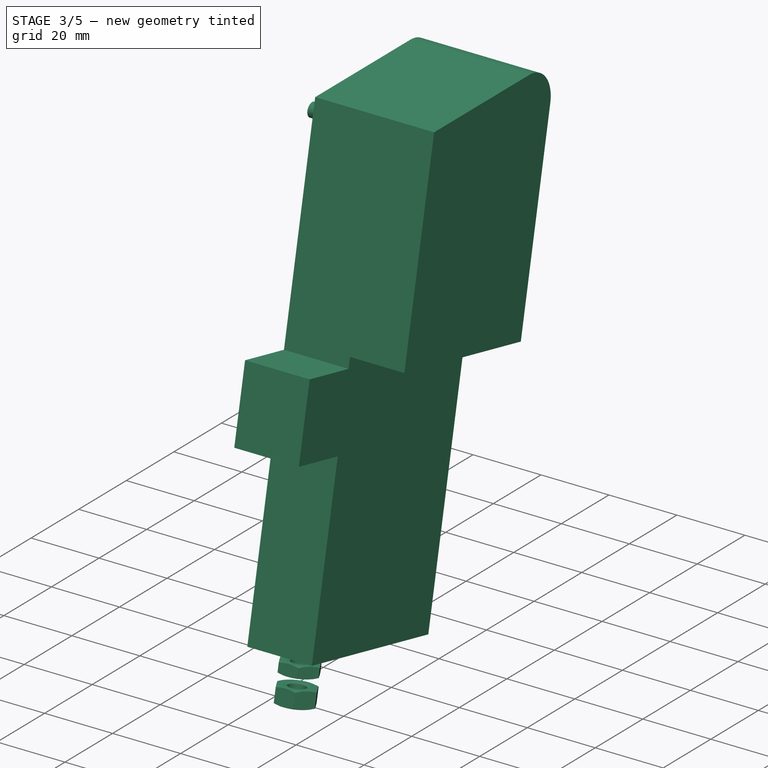
[diagram: stage 3 of 5 — iso view after this stage's code; geometry added in this stage tinted green]
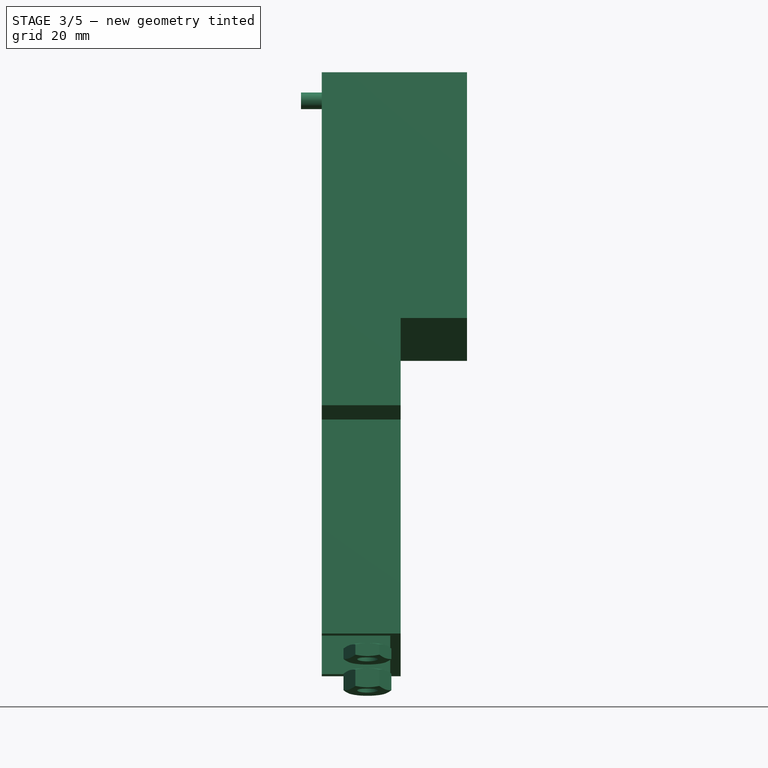
[diagram: stage 3 of 5 — front view after this stage's code; geometry added in this stage tinted green]
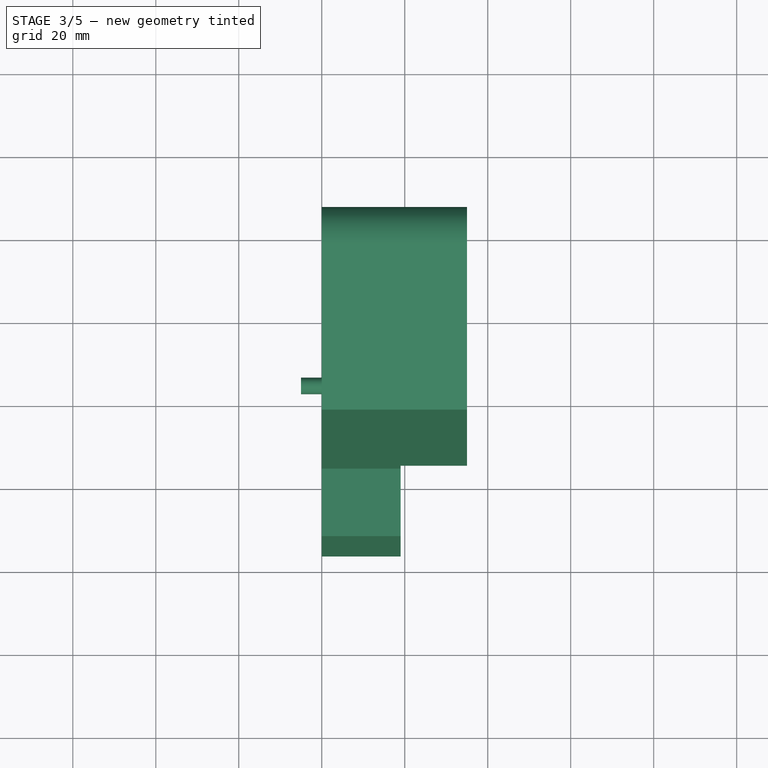
[diagram: stage 3 of 5 — top view after this stage's code; geometry added in this stage tinted green]
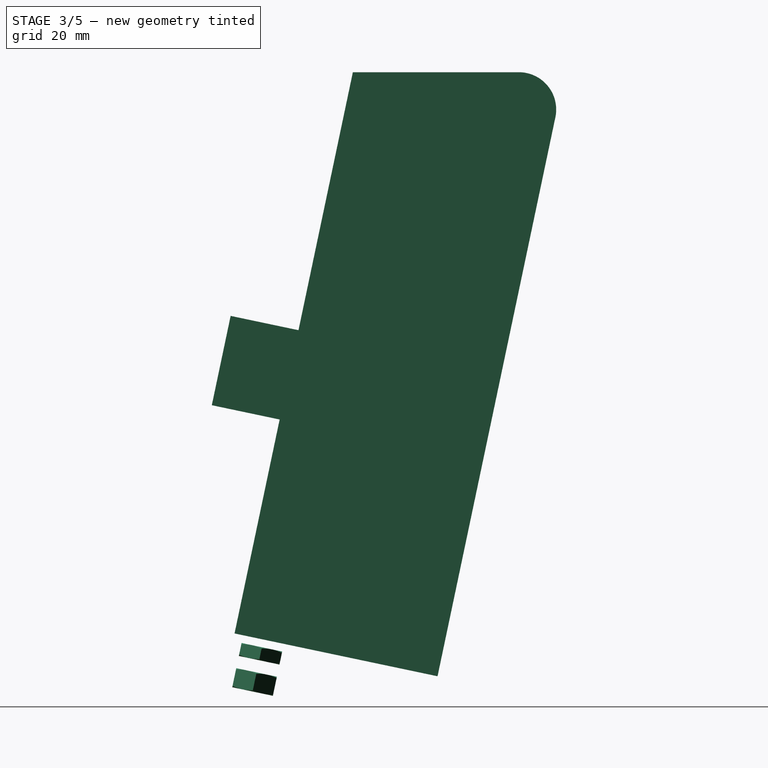
[diagram: stage 3 of 5 — right view after this stage's code; geometry added in this stage tinted green]
FEATURE [PartDesign::ShapeBinder] ShapeBinder
  Placement = pos=(0,0,0) rot=(0.57735,0.57735,0.57735;2.0944rad)
  Support = -> [Hole001]
  TraceSupport = false
FEATURE [Sketcher::SketchObject] Sketch016
  AttachmentOffset = pos=(0,0,3) rot=(0,0,1;0rad)
  ExternalGeometry = -> [ShapeBinder]
  FullyConstrained = true
  MapMode = 5
  Placement = pos=(3,0,0) rot=(0.57735,0.57735,0.57735;2.0944rad)
  Support = -> [YZ_Plane006]
  sketch-geometry (14):
    g0: LineSegment StartX=42.4119 StartY=119.521 StartZ=0 EndX=26.9404 EndY=46.1342 EndZ=0
    g1: LineSegment StartX=40.15 StartY=43.3494 StartZ=0 EndX=13.7308 EndY=48.9191 EndZ=0
    g2: LineSegment StartX=10.6419 StartY=53.6582 StartZ=0 EndX=11.4671 EndY=57.5722 EndZ=0
    g3: LineSegment StartX=16.2062 StartY=60.661 StartZ=0 EndX=42.6255 EndY=55.0913 EndZ=0
    g4: LineSegment StartX=45.7143 StartY=50.3522 StartZ=0 EndX=44.8891 EndY=46.4382 EndZ=0
    g5: LineSegment StartX=11.0545 StartY=55.6152 StartZ=0 EndX=45.3017 EndY=48.3952 EndZ=0
    g6: ArcOfCircle CenterX=15.381 CenterY=56.747 CenterZ=0 NormalX=0 NormalY=0 NormalZ=1 AngleXU=0 Radius=4 StartAngle=1.36302 EndAngle=2.93381
    g7: GeomPoint X=12.2922 Y=61.4862 Z=0
    g8: ArcOfCircle CenterX=14.5559 CenterY=52.8331 CenterZ=0 NormalX=0 NormalY=0 NormalZ=1 AngleXU=0 Radius=4 StartAngle=2.93381 EndAngle=4.50461
    g9: GeomPoint X=9.81678 Y=49.7443 Z=0
    g10: ArcOfCircle CenterX=40.9752 CenterY=47.2633 CenterZ=0 NormalX=0 NormalY=0 NormalZ=1 AngleXU=0 Radius=4 StartAngle=4.50461 EndAngle=6.07541
    g11: GeomPoint X=44.064 Y=42.5242 Z=0
    g12: ArcOfCircle CenterX=41.8003 CenterY=51.1773 CenterZ=0 NormalX=0 NormalY=0 NormalZ=1 AngleXU=0 Radius=4 StartAngle=6.07541 EndAngle=7.6462
    g13: GeomPoint X=46.5394 Y=54.2661 Z=0
  constraints (33):
    c: Parallel(g4,g-4)
    c: Parallel(g-4,g2)
    c: Parallel(g3,g1)
    c: Perpendicular(g2,g3)
    c: PointOnObject(g0,g1)
    c: Symmetric(g11,g9,g0)
    c: Distance(g9,g7) = 12
    c: Distance(g7,g13) = 35
    c: PointOnObject(g5,g2)
    c: PointOnObject(g5,g4)
    c: Symmetric(g9,g7,g5)
    c: Distance(g0) = 75
    c: PointOnObject(g7,g2)
    c: PointOnObject(g7,g3)
    c: Tangent(g2,g6) = 1.5708
    c: Tangent(g3,g6) = 1.5708
    c: PointOnObject(g9,g1)
    c: PointOnObject(g9,g2)
    c: Tangent(g1,g8) = 1.5708
    c: Tangent(g2,g8) = 1.5708
    c: PointOnObject(g11,g1)
    c: PointOnObject(g11,g4)
    c: Tangent(g1,g10) = 1.5708
    c: Tangent(g4,g10) = 1.5708
    c: PointOnObject(g13,g3)
    c: PointOnObject(g13,g4)
    c: Tangent(g3,g12) = 1.5708
    c: Tangent(g4,g12) = 1.5708
    c: Equal(g6,g8)
    c: Equal(g8,g10)
    c: Equal(g10,g12)
    c: Diameter(g6) = 8
    c: Coincident(g0,g-5)
FEATURE [Sketcher::SketchObject] Sketch017
  ExternalGeometry = -> [ShapeBinder]
  FullyConstrained = true
  MapMode = 5
  Placement = pos=(0,0,0) rot=(0.57735,0.57735,0.57735;2.0944rad)
  Support = -> [YZ_Plane006]
  expr: Constraints[10] = Sketch016.Constraints[6]
  expr: Constraints[11] = Sketch016.Constraints[7]
  expr: Constraints[15] = Sketch016.Constraints[11]
  sketch-geometry (8):
    g0: LineSegment StartX=42.4119 StartY=119.521 StartZ=0 EndX=26.9404 EndY=46.1342 EndZ=0
    g1: LineSegment StartX=44.064 StartY=42.5242 StartZ=0 EndX=9.81678 EndY=49.7443 EndZ=0
    g2: LineSegment StartX=9.81678 StartY=49.7443 StartZ=0 EndX=12.2922 EndY=61.4862 EndZ=0
    g3: LineSegment StartX=12.2922 StartY=61.4862 StartZ=0 EndX=46.5394 EndY=54.2661 EndZ=0
    g4: LineSegment StartX=46.5394 StartY=54.2661 StartZ=0 EndX=44.064 EndY=42.5242 EndZ=0
    g5: LineSegment StartX=11.0545 StartY=55.6152 StartZ=0 EndX=45.3017 EndY=48.3952 EndZ=0
    g6: Circle CenterX=15.947 CenterY=54.5838 CenterZ=0 NormalX=0 NormalY=0 NormalZ=1 AngleXU=0 Radius=2
    g7: Circle CenterX=40.4093 CenterY=49.4266 CenterZ=0 NormalX=0 NormalY=0 NormalZ=1 AngleXU=0 Radius=2
  constraints (22):
    c: Coincident(g1,g2)
    c: Coincident(g2,g3)
    c: Coincident(g3,g4)
    c: Coincident(g4,g1)
    c: Parallel(g4,g-4)
    c: Parallel(g-4,g2)
    c: Parallel(g3,g1)
    c: Perpendicular(g2,g3)
    c: PointOnObject(g0,g1)
    c: Symmetric(g1,g1,g0)
    c: Distance(g2) = 12
    c: Distance(g2,g3) = 35
    c: PointOnObject(g5,g2)
    c: PointOnObject(g5,g4)
    c: Symmetric(g1,g2,g5)
    c: Distance(g0) = 75
    c: PointOnObject(g6,g5)
    c: Equal(g6,g7)
    c: Symmetric(g7,g6,g0)
    c: Distance(g6,g5) = 5
    c: Diameter(g6) = 4
    c: Coincident(g0,g-5)
FEATURE [PartDesign::Pad] Pad007
  Direction = (1,-2e-16,3e-16)
  Length = 12
  Length2 = 10
  Placement = pos=(0,0,0) rot=(0.57735,0.57735,0.57735;2.0944rad)
  Profile = -> Sketch016
  ReferenceAxis = -> Sketch016 [N_Axis]
  Type = 0
FEATURE [PartDesign::Hole] Hole004
  BaseFeature = -> Pad007
  CustomThreadClearance = 0
  Depth = 88.8136
  DepthType = 1
  Diameter = 3.6
  DrillForDepth = false
  DrillPoint = 1
  DrillPointAngle = 118
  HoleCutCountersinkAngle = 90
  HoleCutCustomValues = false
  HoleCutDepth = 0
  HoleCutDiameter = 6.1
  HoleCutType = 0
  ModelThread = false
  Placement = pos=(0,0,0) rot=(0.57735,0.57735,0.57735;2.0944rad)
  Profile = -> Sketch017
  Reversed = true
  Tapered = false
  TaperedAngle = 90
  ThreadClass = 0
  ThreadDepth = 88.8136
  ThreadDepthType = 0
  ThreadDirection = 0
  ThreadFit = 2
  ThreadSize = 9
  ThreadType = 1
  Threaded = false
  UseCustomThreadClearance = false
FEATURE [Part::FeaturePython] Nut  label="M6-Nut001"  # Fasteners workbench fastener (typed FeaturePython)
  Placement = pos=(11,13.3679,-18.2452) rot=(1,0,0;2.93382rad)
  baseObject = -> Body [Edge9]
  diameter = 8
  invert = false
  leftHanded = false
  matchOuter = false
  offset = 0
  thread = false
  type = 7
FEATURE [Part::FeaturePython] Nut004  label="M6-Nut"  # Fasteners workbench fastener (typed FeaturePython)
  Placement = pos=(11,13.9867,-15.3098) rot=(-1,0,0;0.207778rad)
  baseObject = -> Body [Edge17]
  diameter = 8
  invert = true
  leftHanded = false
  matchOuter = false
  offset = 0
  thread = false
  type = 9
FEATURE [Part::Feature] Unfold
  shape: bbox 3 x 265.9 x 169.6 mm, 26 faces (baked)
FEATURE [Sketcher::SketchObject] Unfold_Sketch
  FullyConstrained = false
  sketch-geometry (26):
    g0: LineSegment StartX=-28.2157 StartY=-63.2997 StartZ=0 EndX=-28.2055 EndY=-63.2515 EndZ=0
    g1: LineSegment StartX=-42.8931 StartY=-60.2054 StartZ=0 EndX=-28.2157 EndY=-63.2997 EndZ=0
    g2: LineSegment StartX=-27.0588 StartY=14.9024 StartZ=0 EndX=-42.8931 EndY=-60.2054 EndZ=0
    g3: LineSegment StartX=-28.2055 StartY=-63.2515 StartZ=0 EndX=-24.8241 EndY=-63.9644 EndZ=0
    g4: LineSegment StartX=-28.2664 StartY=-64.2697 StartZ=0 EndX=-28.2707 EndY=-64.2206 EndZ=0
    g5: LineSegment StartX=-28.2707 StartY=-64.2206 StartZ=0 EndX=-43.2121 EndY=-65.5457 EndZ=0
    g6: LineSegment StartX=-43.2121 StartY=-65.5457 StartZ=0 EndX=-27.3484 EndY=-244.425 EndZ=0
    g7: LineSegment StartX=-24.8241 StartY=-63.9644 StartZ=0 EndX=-28.2664 EndY=-64.2697 EndZ=0
    g8: ArcOfCircle CenterX=117.419 CenterY=-24.7544 CenterZ=0 NormalX=0 NormalY=0 NormalZ=1 AngleXU=-1.5708 Radius=9 StartAngle=1.5708 EndAngle=2.93381
    g9: LineSegment StartX=126.419 StartY=-24.7544 StartZ=0 EndX=126.419 EndY=-84.7544 EndZ=0
    g10: ArcOfCircle CenterX=117.419 CenterY=-84.7544 CenterZ=0 NormalX=0 NormalY=0 NormalZ=1 AngleXU=-1.5708 Radius=9 StartAngle=6.07541 EndAngle=7.85398
    g11: LineSegment StartX=115.562 StartY=-93.5608 StartZ=0 EndX=19.8566 EndY=-73.384 EndZ=0
    g12: ArcOfCircle CenterX=18 CenterY=-82.1904 CenterZ=0 NormalX=0 NormalY=0 NormalZ=1 AngleXU=-1.5708 Radius=9 StartAngle=2.93381 EndAngle=4.71239
    g13: ArcOfCircle CenterX=0 CenterY=-242 CenterZ=0 NormalX=0 NormalY=0 NormalZ=1 AngleXU=-1.5708 Radius=9 StartAngle=4.80084 EndAngle=7.85398
    g14: LineSegment StartX=9 StartY=-82.1904 StartZ=0 EndX=9 EndY=-242 EndZ=0
    g15: Circle CenterX=-24.5621 CenterY=-12.0361 CenterZ=0 NormalX=0 NormalY=0 NormalZ=-1 AngleXU=0.207778 Radius=3.3
    g16: Circle CenterX=-1.137e-13 CenterY=-242 CenterZ=0 NormalX=0 NormalY=0 NormalZ=1 AngleXU=1.5708 Radius=2.4
    g17: Circle CenterX=88.0643 CenterY=-18.5658 CenterZ=0 NormalX=0 NormalY=0 NormalZ=1 AngleXU=1.5708 Radius=2.4
    g18: Circle CenterX=2e-16 CenterY=7e-16 CenterZ=0 NormalX=0 NormalY=0 NormalZ=1 AngleXU=1.5708 Radius=2.4
    g19: Circle CenterX=49.4266 CenterY=-40.4093 CenterZ=0 NormalX=0 NormalY=0 NormalZ=1 AngleXU=0 Radius=1.7
    g20: Circle CenterX=54.5838 CenterY=-15.947 CenterZ=0 NormalX=0 NormalY=0 NormalZ=1 AngleXU=0 Radius=1.7
    g21: Circle CenterX=119.521 CenterY=-42.4119 CenterZ=0 NormalX=0 NormalY=0 NormalZ=1 AngleXU=1.5708 Radius=1.65
    g22: LineSegment StartX=-27.3484 StartY=-244.425 StartZ=0 EndX=-8.96482 EndY=-242.795 EndZ=0
    g23: LineSegment StartX=-27.0588 StartY=14.9024 StartZ=0 EndX=119.276 EndY=-15.9479 EndZ=0
    g24: LineSegment StartX=-10.6907 StartY=11.4517 StartZ=0 EndX=-26.5148 EndY=-63.608 EndZ=0
    g25: LineSegment StartX=-26.5452 StartY=-64.117 StartZ=0 EndX=-10.6859 EndY=-242.948 EndZ=0
FEATURE [TechDraw::DrawSVGTemplate] Template001
  EditableTexts = A3=A3; AUTHOR_NAME=Jotham Gates; A__=_________; B__=_________; COMPANY_NAME=Please ignore how underconstrained this is :); CREATION_DATE=16/10/2023; C__=_________; D__=_________; E__=_________; F__=_________; G__=_________; H__=_________; I__=_________; SCALE=1:1; SHEET=1 of 1; SUBTITLE=Tractor engine watchdog; TITLE=Mounting plate; VERSION=1.2
  Height = 297
  Orientation = 1
  Template = /snap/freecad/759/usr/share/Mod/TechDraw/Templates/A3_Landscape_EN_m52.svg
  Width = 420
FEATURE [TechDraw::DrawViewPart] View
  CoarseView = false
  Direction = (0,0,1)
  Focus = 100
  HardHidden = false
  IsoCount = 0
  IsoHidden = false
  IsoVisible = false
  LockPosition = false
  Perspective = false
  Rotation = 0
  ScaleType = 0
  ScrubCount = 0
  SeamHidden = false
  SeamVisible = false
  SmoothHidden = false
  SmoothVisible = true
  Source = -> [Unfold_Sketch]
  X = 199.024
  XDirection = (0,1,0)
  Y = 165.771
FEATURE [TechDraw::DrawSVGTemplate] Template
  EditableTexts = Designed_by_Name=Designed by Name; Drawing_number=Drawing number; FC-Date=Date; FC-SC=Scale; FC-SH=Sheet; FC-Title=Title; Subtitle=Subtitle; Weight=Weight
  Height = 210
  Orientation = 1
  Template = /snap/freecad/759/usr/share/Mod/TechDraw/Templates/A4_LandscapeTD.svg
  Width = 297
FEATURE [TechDraw::DrawViewPart] View001
  CoarseView = false
  Direction = (0,0,1)
  Focus = 100
  HardHidden = false
  IsoCount = 0
  IsoHidden = false
  IsoVisible = false
  LockPosition = false
  Perspective = false
  Rotation = 0
  ScaleType = 0
  ScrubCount = 0
  SeamHidden = false
  SeamVisible = false
  SmoothHidden = false
  SmoothVisible = true
  Source = -> [Unfold_Sketch]
  X = 150.44
  XDirection = (0,1,0)
  Y = 109.657
FEATURE [TechDraw::DrawPage] Page  label="MountingPlateOutlineOnly"
  KeepUpdated = true
  NextBalloonIndex = 1
  ProjectionType = 0
  Template = -> Template
  Views = -> [View001]
FEATURE [TechDraw::DrawViewDimension] Dimension
  AngleOverride = false
  Arbitrary = false
  ArbitraryTolerances = false
  EqualTolerance = true
  ExtensionAngle = 0
  FormatSpec = ⌀%.2w
  FormatSpecOverTolerance = %+.2w
  FormatSpecUnderTolerance = %+.2w
  Inverted = false
  LineAngle = 0
  LockPosition = false
  MeasureType = 1
  OverTolerance = 0
  References2D = -> [View]
  Rotation = 0
  ScaleType = 0
  TheoreticalExact = false
  Type = 5
  UnderTolerance = 0
  X = 160.379
  Y = 88.8782
FEATURE [TechDraw::DrawViewDimension] Dimension001
  AngleOverride = false
  Arbitrary = false
  ArbitraryTolerances = false
  EqualTolerance = true
  ExtensionAngle = 0
  FormatSpec = ⌀%.2w
  FormatSpecOverTolerance = %+.2w
  FormatSpecUnderTolerance = %+.2w
  Inverted = false
  LineAngle = 0
  LockPosition = false
  MeasureType = 1
  OverTolerance = 0
  References2D = -> [View]
  Rotation = 0
  ScaleType = 0
  TheoreticalExact = false
  Type = 5
  UnderTolerance = 0
  X = 139.912
  Y = 32.2758
FEATURE [TechDraw::DrawViewDimension] Dimension002
  AngleOverride = false
  Arbitrary = false
  ArbitraryTolerances = false
  EqualTolerance = true
  ExtensionAngle = 0
  FormatSpec = ⌀%.2w
  FormatSpecOverTolerance = %+.2w
  FormatSpecUnderTolerance = %+.2w
  Inverted = false
  LineAngle = 0
  LockPosition = false
  MeasureType = 1
  OverTolerance = 0
  References2D = -> [View]
  Rotation = 0
  ScaleType = 0
  TheoreticalExact = false
  Type = 5
  UnderTolerance = 0
  X = 145.043
  Y = 16.6747
FEATURE [TechDraw::DrawViewDimension] Dimension003
  AngleOverride = false
  Arbitrary = false
  ArbitraryTolerances = false
  EqualTolerance = true
  ExtensionAngle = 0
  FormatSpec = ⌀%.2w
  FormatSpecOverTolerance = %+.2w
  FormatSpecUnderTolerance = %+.2w
  Inverted = false
  LineAngle = 0
  LockPosition = false
  MeasureType = 1
  OverTolerance = 0
  References2D = -> [View]
  Rotation = 0
  ScaleType = 0
  TheoreticalExact = false
  Type = 5
  UnderTolerance = 0
  X = 145.838
  Y = 6.61695
FEATURE [TechDraw::DrawViewDimension] Dimension004
  AngleOverride = false
  Arbitrary = false
  ArbitraryTolerances = false
  EqualTolerance = true
  ExtensionAngle = 0
  FormatSpec = ⌀%.2w
  FormatSpecOverTolerance = %+.2w
  FormatSpecUnderTolerance = %+.2w
  Inverted = false
  LineAngle = 0
  LockPosition = false
  MeasureType = 1
  OverTolerance = 0
  References2D = -> [View]
  Rotation = 0
  ScaleType = 0
  TheoreticalExact = false
  Type = 5
  UnderTolerance = 0
  X = 149.278
  Y = -26.4678
FEATURE [TechDraw::DrawViewDimension] Dimension005
  AngleOverride = false
  Arbitrary = false
  ArbitraryTolerances = false
  EqualTolerance = true
  ExtensionAngle = 0
  FormatSpec = ⌀%.2w
  FormatSpecOverTolerance = %+.2w
  FormatSpecUnderTolerance = %+.2w
  Inverted = false
  LineAngle = 0
  LockPosition = false
  MeasureType = 1
  OverTolerance = 0
  References2D = -> [View]
  Rotation = 0
  ScaleType = 0
  TheoreticalExact = false
  Type = 5
  UnderTolerance = 0
  X = 138.956
  Y = -55.847
FEATURE [TechDraw::DrawViewDimension] Dimension006
  AngleOverride = false
  Arbitrary = false
  ArbitraryTolerances = false
  EqualTolerance = true
  ExtensionAngle = 0
  FormatSpec = %.2w
  FormatSpecOverTolerance = %+.2w
  FormatSpecUnderTolerance = %+.2w
  Inverted = false
  LineAngle = 0
  LockPosition = false
  MeasureType = 1
  OverTolerance = 0
  References2D = -> [View]
  Rotation = 0
  ScaleType = 0
  TheoreticalExact = false
  Type = 1
  UnderTolerance = 0
  X = 10.7168
  Y = 119.864
FEATURE [TechDraw::DrawViewDimension] Dimension007
  AngleOverride = false
  Arbitrary = false
  ArbitraryTolerances = false
  EqualTolerance = true
  ExtensionAngle = 0
  FormatSpec = %.2w
  FormatSpecOverTolerance = %+.2w
  FormatSpecUnderTolerance = %+.2w
  Inverted = false
  LineAngle = 0
  LockPosition = false
  MeasureType = 1
  OverTolerance = 0
  References2D = -> [View]
  Rotation = 0
  ScaleType = 0
  TheoreticalExact = false
  Type = 0
  UnderTolerance = 0
  X = 172.307
  Y = -11.905
FEATURE [TechDraw::DrawViewDimension] Dimension008
  AngleOverride = false
  Arbitrary = false
  ArbitraryTolerances = false
  EqualTolerance = true
  ExtensionAngle = 0
  FormatSpec = %.2w
  FormatSpecOverTolerance = %+.2w
  FormatSpecUnderTolerance = %+.2w
  Inverted = false
  LineAngle = 0
  LockPosition = false
  MeasureType = 1
  OverTolerance = 0
  References2D = -> [View]
  Rotation = 0
  ScaleType = 0
  TheoreticalExact = false
  Type = 0
  UnderTolerance = 0
  X = 131.114
  Y = 81.6083
FEATURE [TechDraw::DrawViewDimension] Dimension009
  AngleOverride = false
  Arbitrary = false
  ArbitraryTolerances = false
  EqualTolerance = true
  ExtensionAngle = 0
  FormatSpec = %.2w
  FormatSpecOverTolerance = %+.2w
  FormatSpecUnderTolerance = %+.2w
  Inverted = false
  LineAngle = 0
  LockPosition = false
  MeasureType = 1
  OverTolerance = 0
  References2D = -> [View]
  Rotation = 0
  ScaleType = 0
  TheoreticalExact = false
  Type = 0
  UnderTolerance = 0
  X = 137.72
  Y = -88.8073
FEATURE [TechDraw::DrawViewDimension] Dimension010
  AngleOverride = false
  Arbitrary = false
  ArbitraryTolerances = false
  EqualTolerance = true
  ExtensionAngle = 0
  FormatSpec = %.2w
  FormatSpecOverTolerance = %+.2w
  FormatSpecUnderTolerance = %+.2w
  Inverted = false
  LineAngle = 0
  LockPosition = false
  MeasureType = 1
  OverTolerance = 0
  References2D = -> [View]
  Rotation = 0
  ScaleType = 0
  TheoreticalExact = false
  Type = 0
  UnderTolerance = 0
  X = -4.71608
  Y = -76.5375
FEATURE [TechDraw::DrawViewDimension] Dimension011
  AngleOverride = false
  Arbitrary = false
  ArbitraryTolerances = false
  EqualTolerance = true
  ExtensionAngle = 0
  FormatSpec = %.2w
  FormatSpecOverTolerance = %+.2w
  FormatSpecUnderTolerance = %+.2w
  Inverted = false
  LineAngle = 0
  LockPosition = false
  MeasureType = 1
  OverTolerance = 0
  References2D = -> [View]
  Rotation = 0
  ScaleType = 0
  TheoreticalExact = false
  Type = 0
  UnderTolerance = 0
  X = -38.1641
  Y = 93.2941
FEATURE [TechDraw::DrawViewDimension] Dimension012
  AngleOverride = false
  Arbitrary = false
  ArbitraryTolerances = false
  EqualTolerance = true
  ExtensionAngle = 0
  FormatSpec = %.2w
  FormatSpecOverTolerance = %+.2w
  FormatSpecUnderTolerance = %+.2w
  Inverted = false
  LineAngle = 0
  LockPosition = false
  MeasureType = 1
  OverTolerance = 0
  References2D = -> [View]
  Rotation = 0
  ScaleType = 0
  TheoreticalExact = false
  Type = 0
  UnderTolerance = 0
  X = 106.917
  Y = 109.416
FEATURE [TechDraw::DrawViewDimension] Dimension013
  AngleOverride = false
  Arbitrary = false
  ArbitraryTolerances = false
  EqualTolerance = true
  ExtensionAngle = 0
  FormatSpec = %.2w
  FormatSpecOverTolerance = %+.2w
  FormatSpecUnderTolerance = %+.2w
  Inverted = false
  LineAngle = 0
  LockPosition = false
  MeasureType = 1
  OverTolerance = 0
  References2D = -> [View]
  Rotation = 0
  ScaleType = 0
  TheoreticalExact = false
  Type = 0
  UnderTolerance = 0
  X = 123.566
  Y = 91.619
FEATURE [TechDraw::DrawViewDimension] Dimension014
  AngleOverride = false
  Arbitrary = false
  ArbitraryTolerances = false
  EqualTolerance = true
  ExtensionAngle = 0
  FormatSpec = %.2w
  FormatSpecOverTolerance = %+.2w
  FormatSpecUnderTolerance = %+.2w
  Inverted = false
  LineAngle = 0
  LockPosition = false
  MeasureType = 1
  OverTolerance = 0
  References2D = -> [View]
  Rotation = 0
  ScaleType = 0
  TheoreticalExact = false
  Type = 0
  UnderTolerance = 0
  X = 158.201
  Y = 75.2812
FEATURE [TechDraw::DrawViewDimension] Dimension015
  AngleOverride = false
  Arbitrary = false
  ArbitraryTolerances = false
  EqualTolerance = true
  ExtensionAngle = 0
  FormatSpec = %.2w
  FormatSpecOverTolerance = %+.2w
  FormatSpecUnderTolerance = %+.2w
  Inverted = false
  LineAngle = 0
  LockPosition = false
  MeasureType = 1
  OverTolerance = 0
  References2D = -> [View]
  Rotation = 0
  ScaleType = 0
  TheoreticalExact = false
  Type = 0
  UnderTolerance = 0
  X = 173.028
  Y = 54.361
FEATURE [TechDraw::DrawViewDimension] Dimension016
  AngleOverride = false
  Arbitrary = false
  ArbitraryTolerances = false
  EqualTolerance = true
  ExtensionAngle = 0
  FormatSpec = %.2w
  FormatSpecOverTolerance = %+.2w
  FormatSpecUnderTolerance = %+.2w
  Inverted = false
  LineAngle = 0
  LockPosition = false
  MeasureType = 1
  OverTolerance = 0
  References2D = -> [View]
  Rotation = 0
  ScaleType = 0
  TheoreticalExact = false
  Type = 2
  UnderTolerance = 0
  X = -152.187
  Y = 63.2351
FEATURE [TechDraw::DrawViewDimension] Dimension017
  AngleOverride = false
  Arbitrary = false
  ArbitraryTolerances = false
  EqualTolerance = true
  ExtensionAngle = 0
  FormatSpec = %.2w
  FormatSpecOverTolerance = %+.2w
  FormatSpecUnderTolerance = %+.2w
  Inverted = false
  LineAngle = 0
  LockPosition = false
  MeasureType = 1
  OverTolerance = 0
  References2D = -> [View]
  Rotation = 0
  ScaleType = 0
  TheoreticalExact = false
  Type = 2
  UnderTolerance = 0
  X = -152.101
  Y = 45.7152
FEATURE [TechDraw::DrawViewDimension] Dimension018
  AngleOverride = false
  Arbitrary = false
  ArbitraryTolerances = false
  EqualTolerance = true
  ExtensionAngle = 0
  FormatSpec = %.2w
  FormatSpecOverTolerance = %+.2w
  FormatSpecUnderTolerance = %+.2w
  Inverted = false
  LineAngle = 0
  LockPosition = false
  MeasureType = 1
  OverTolerance = 0
  References2D = -> [View]
  Rotation = 0
  ScaleType = 0
  TheoreticalExact = false
  Type = 1
  UnderTolerance = 0
  X = -41.74
  Y = 25.878
FEATURE [TechDraw::DrawViewDimExtent] DimExtent
  AngleOverride = false
  Arbitrary = false
  ArbitraryTolerances = false
  DirExtent = 0
  EqualTolerance = true
  ExtensionAngle = 0
  FormatSpec = %.2w
  FormatSpecOverTolerance = %+.2w
  FormatSpecUnderTolerance = %+.2w
  Inverted = false
  LineAngle = 0
  LockPosition = false
  MeasureType = 1
  OverTolerance = 0
  References2D = -> [View]
  Rotation = 0
  ScaleType = 0
  Source = -> [View]
  TheoreticalExact = false
  Type = 1
  UnderTolerance = 0
  X = -3.33676
  Y = 126.38
FEATURE [TechDraw::DrawViewDimExtent] DimExtent001
  AngleOverride = false
  Arbitrary = false
  ArbitraryTolerances = false
  DirExtent = 1
  EqualTolerance = true
  ExtensionAngle = 0
  FormatSpec = %.2w
  FormatSpecOverTolerance = %+.2w
  FormatSpecUnderTolerance = %+.2w
  Inverted = false
  LineAngle = 0
  LockPosition = false
  MeasureType = 1
  OverTolerance = 0
  References2D = -> [View]
  Rotation = 0
  ScaleType = 0
  Source = -> [View]
  TheoreticalExact = false
  Type = 2
  UnderTolerance = 0
  X = -168.09
  Y = 7.92482
FEATURE [TechDraw::DrawViewDimension] Dimension019
  AngleOverride = false
  Arbitrary = false
  ArbitraryTolerances = false
  EqualTolerance = true
  ExtensionAngle = 0
  FormatSpec = %.2w
  FormatSpecOverTolerance = %+.2w
  FormatSpecUnderTolerance = %+.2w
  Inverted = false
  LineAngle = 0
  LockPosition = false
  MeasureType = 1
  OverTolerance = 0
  References2D = -> [View]
  Rotation = 0
  ScaleType = 0
  TheoreticalExact = false
  Type = 0
  UnderTolerance = 0
  X = 71.9356
  Y = -86.7328
FEATURE [TechDraw::DrawViewDimension] Dimension020
  AngleOverride = false
  Arbitrary = false
  ArbitraryTolerances = false
  EqualTolerance = true
  ExtensionAngle = 0
  FormatSpec = %.2w
  FormatSpecOverTolerance = %+.2w
  FormatSpecUnderTolerance = %+.2w
  Inverted = false
  LineAngle = 0
  LockPosition = false
  MeasureType = 1
  OverTolerance = 0
  References2D = -> [View]
  Rotation = 0
  ScaleType = 0
  TheoreticalExact = false
  Type = 2
  UnderTolerance = 0
  X = 12.1936
  Y = -44.7295
FEATURE [TechDraw::DrawPage] Page001  label="MountingPlateDimensioned"
  KeepUpdated = true
  NextBalloonIndex = 1
  ProjectionType = 0
  Template = -> Template001
  Views = -> [View,Dimension,Dimension001,Dimension002,Dimension003,Dimension004,Dimension005,Dimension006,Dimension007,Dimension008,Dimension009,Dimension010,Dimension011,Dimension012,Dimension013,Dimension014,Dimension015,Dimension016,Dimension017,Dimension018,DimExtent,DimExtent001,Dimension019,Dimension020]
FEATURE [Part::FeaturePython] Screw  label="M4x20-Screw"  # Fasteners workbench fastener (typed FeaturePython)
  Placement = pos=(15,42.4119,119.521) rot=(0,1,0;1.5708rad)
  baseObject = -> Body [Edge69]
  diameter = 6
  invert = false
  leftHanded = false
  length = 7
  lengthCustom = 20
  matchOuter = false
  offset = 12
  thread = false
  type = 35
FEATURE [PartDesign::ShapeBinder] ShapeBinder010
  Support = -> [Pad011]
  TraceSupport = false
FEATURE [Sketcher::SketchObject] Sketch034
  ExternalGeometry = -> [ShapeBinder010]
  FullyConstrained = false
  MapMode = 5
  Placement = pos=(0,0,0) rot=(0.57735,0.57735,0.57735;2.0944rad)
  Support = -> [YZ_Plane]
  sketch-geometry (4):
    g0: Circle CenterX=2.93851 CenterY=13.9384 CenterZ=0 NormalX=0 NormalY=0 NormalZ=1 AngleXU=0 Radius=1.5
    g1: Circle CenterX=62.0563 CenterY=-12.0608 CenterZ=0 NormalX=0 NormalY=0 NormalZ=1 AngleXU=0 Radius=1.5
    g2: Circle CenterX=21.5043 CenterY=102.003 CenterZ=0 NormalX=0 NormalY=0 NormalZ=1 AngleXU=0 Radius=1.5
    g3: Circle CenterX=89.5483 CenterY=118.344 CenterZ=0 NormalX=0 NormalY=0 NormalZ=1 AngleXU=0 Radius=1.5
  constraints (3):
    c: Equal(g3,g2)
    c: Equal(g2,g0)
    c: Equal(g0,g1)
FEATURE [PartDesign::Pocket] Pocket006
  BaseFeature = -> Hole008
  Direction = (-1,0,0)
  Length = 5
  Length2 = 5
  Profile = -> Sketch034
  ReferenceAxis = -> Sketch034 [N_Axis]
  Reversed = true
  Type = 1
FEATURE [PartDesign::Body] Body006  label="ElectricalEnclosure"
  Group = -> [ShapeBinder009,Sketch030,Pad009,Sketch031,Pocket005,Thickness,Sketch032,Pad010,Sketch033,Pad011,Sketch035,Pad012,Sketch036,Sketch037,Pad013,Pad014,Binder]
  Origin = -> Origin034
  Tip = -> Pad014
FEATURE [PartDesign::SubShapeBinder] Binder001
  BindCopyOnChange = 0
  BindMode = 0
  ClaimChildren = false
  Context = -> Body [Binder001.]
  Fuse = false
  MakeFace = true
  OffsetFill = false
  OffsetIntersection = false
  OffsetJoinType = 0
  OffsetOpenResult = false
  PartialLoad = false
  Relative = true
  Support = -> [_2v_40A_car_relay026[Part__Feature029.Face4]]
  _Version = 2
FEATURE [Sketcher::SketchObject] Sketch038
  ExternalGeometry = -> [Binder001]
  FullyConstrained = true
  MapMode = 5
  Placement = pos=(0,0,0) rot=(0.57735,0.57735,0.57735;2.0944rad)
  Support = -> [YZ_Plane]
  sketch-geometry (1):
    g0: Circle CenterX=67.6715 CenterY=115.018 CenterZ=0 NormalX=0 NormalY=0 NormalZ=1 AngleXU=0 Radius=2
  constraints (2):
    c: Coincident(g0,g-3)
    c: Diameter(g0) = 4
FEATURE [PartDesign::Hole] Hole009
  BaseFeature = -> Pocket006
  CustomThreadClearance = 0
  Depth = 617.91
  DepthType = 1
  Diameter = 4.5
  DrillForDepth = false
  DrillPoint = 1
  DrillPointAngle = 118
  HoleCutCountersinkAngle = 90
  HoleCutCustomValues = false
  HoleCutDepth = 0
  HoleCutDiameter = 6.1
  HoleCutType = 0
  ModelThread = false
  Profile = -> Sketch038
  Reversed = true
  Tapered = false
  TaperedAngle = 90
  ThreadClass = 0
  ThreadDepth = 617.91
  ThreadDepthType = 0
  ThreadDirection = 0
  ThreadFit = 0
  ThreadSize = 11
  ThreadType = 1
  Threaded = false
  UseCustomThreadClearance = false
FEATURE [PartDesign::Body] Body  label="MountingPlate"
  Group = -> [Sketch,Sketch001,Pad,Hole,Sketch009,Sketch010,Local_CS,DatumPlane,Sketch012,Hole001,Bend,ShapeBinder008,Sketch028,Hole007,DatumPlane001,Sketch029,Hole008,ShapeBinder010,Sketch034,Pocket006,Binder001,Sketch038,Hole009]
  Origin = -> Origin
  Tip = -> Hole009
FEATURE [PartDesign::ShapeBinder] ShapeBinder011
  Support = -> [Pad014]
  TraceSupport = false
FEATURE [Sketcher::SketchObject] Sketch039
  ExternalGeometry = -> [ShapeBinder011]
  FullyConstrained = true
  MapMode = 5
  Placement = pos=(0,0,0) rot=(0.57735,0.57735,0.57735;2.0944rad)
  Support = -> [YZ_Plane036]
  sketch-geometry (12):
    g0: LineSegment StartX=56.9812 StartY=-19.1667 StartZ=0 EndX=85.3849 EndY=115.562 EndZ=0
    g1: ArcOfCircle CenterX=76.5785 CenterY=117.419 CenterZ=0 NormalX=0 NormalY=0 NormalZ=1 AngleXU=0 Radius=9 StartAngle=6.07541 EndAngle=7.85398
    g2: LineSegment StartX=76.5785 StartY=126.419 StartZ=0 EndX=36.5747 EndY=126.419 EndZ=0
    g3: LineSegment StartX=23.4661 StartY=64.2404 StartZ=0 EndX=36.5747 EndY=126.419 EndZ=0
    g4: LineSegment StartX=56.9812 StartY=-19.1667 StartZ=0 EndX=8.05666 EndY=-8.85238 EndZ=0
    g5: LineSegment StartX=8.05666 StartY=-8.85238 StartZ=0 EndX=18.9278 EndY=42.7136 EndZ=0
    g6: LineSegment StartX=18.9278 StartY=42.7136 StartZ=0 EndX=2.57772 EndY=46.1605 EndZ=0
    g7: LineSegment StartX=2.57772 StartY=46.1605 StartZ=0 EndX=7.11602 EndY=67.6873 EndZ=0
    g8: LineSegment StartX=7.11602 StartY=67.6873 StartZ=0 EndX=23.4661 EndY=64.2404 EndZ=0
    g9: LineSegment StartX=40.4093 StartY=49.4266 StartZ=0 EndX=4.84687 EndY=56.9239 EndZ=0
    g10: LineSegment StartX=23.4661 StartY=64.2404 StartZ=0 EndX=21.197 EndY=53.477 EndZ=0
    g11: LineSegment StartX=21.197 StartY=53.477 StartZ=0 EndX=18.9278 EndY=42.7136 EndZ=0
  constraints (31):
    c: Tangent(g0,g1) = -1.5708
    c: Coincident(g1,g-14)
    c: Coincident(g0,g-13)
    c: Coincident(g0,g-15)
    c: Coincident(g3,g2)
    c: Parallel(g3,g-18)
    c: Coincident(g2,g1)
    c: Horizontal(g2)
    c: Coincident(g4,g0)
    c: Coincident(g4,g-13)
    c: Coincident(g4,g5)
    c: PointOnObject(g5,g-17)
    c: Coincident(g5,g6)
    c: Coincident(g6,g7)
    c: Coincident(g7,g8)
    c: PointOnObject(g8,g-17)
    c: Coincident(g3,g8)
    c: Parallel(g8,g6)
    c: Equal(g8,g6)
    c: Perpendicular(g3,g8)
    c: PointOnObject(g-4,g7)
    c: Coincident(g9,g-20)
    c: PointOnObject(g9,g7)
    c: Parallel(g9,g8)
    c: Coincident(g10,g3)
    c: PointOnObject(g10,g9)
    c: Coincident(g11,g10)
    c: Coincident(g11,g5)
    c: Equal(g11,g10)
    c: PointOnObject(g10,g5)
    c: Distance(g7,g7) = 22
FEATURE [PartDesign::Pad] Pad015
  Direction = (1,0,0)
  Length = 19
  Length2 = 10
  Placement = pos=(0,0,0) rot=(1,1,1;2.0944rad)
  Profile = -> Sketch039
  ReferenceAxis = -> Sketch039 [N_Axis]
  Type = 0
FEATURE [Sketcher::SketchObject] Sketch040
  ExternalGeometry = -> [Pad015]
  FullyConstrained = true
  MapMode = 5
  Placement = pos=(19,-4.2e-15,2.1e-15) rot=(0.57735,0.57735,0.57735;2.0944rad)
  Support = -> [Pad015]
  sketch-geometry (5):
    g0: LineSegment StartX=73.0078 StartY=56.8529 StartZ=0 EndX=85.3849 EndY=115.562 EndZ=0
    g1: ArcOfCircle CenterX=76.5785 CenterY=117.419 CenterZ=0 NormalX=0 NormalY=0 NormalZ=1 AngleXU=0 Radius=9 StartAngle=6.07541 EndAngle=7.85398
    g2: LineSegment StartX=76.5785 StartY=126.419 StartZ=0 EndX=36.5747 EndY=126.419 EndZ=0
    g3: LineSegment StartX=36.5747 StartY=126.419 StartZ=0 EndX=24.0832 EndY=67.1672 EndZ=0
    g4: LineSegment StartX=24.0832 StartY=67.1672 StartZ=0 EndX=73.0078 EndY=56.8529 EndZ=0
  constraints (12):
    c: PointOnObject(g0,g-3)
    c: Coincident(g0,g-4)
    c: Tangent(g0,g1) = -1.5708
    c: Coincident(g1,g-5)
    c: Tangent(g1,g2) = -1.5708
    c: Coincident(g2,g3)
    c: Coincident(g3,g4)
    c: Coincident(g4,g0)
    c: PointOnObject(g3,g-6)
    c: Perpendicular(g4,g3)
    c: Parallel(g3,g-6)
    c: Distance(g0,g0) = 60
FEATURE [PartDesign::Pad] Pad016
  BaseFeature = -> Pad015
  Direction = (1,0,0)
  Length = 16
  Length2 = 10
  Placement = pos=(0,0,0) rot=(1,1,1;2.0944rad)
  Profile = -> Sketch040
  ReferenceAxis = -> Sketch040 [N_Axis]
  Type = 0
FEATURE [PartDesign::Thickness] Thickness001
  Base = -> Pad016 [Face4,Face2]
  BaseFeature = -> Pad016
  Intersection = false
  Join = 0
  Mode = 0
  Reversed = true
  SupportTransform = false
  Value = 2.5
FEATURE [PartDesign::Body] Body007  label="ActuatorCover"
  Group = -> [ShapeBinder011,Sketch039,Pad015,Sketch040,Pad016,Thickness001]
  Origin = -> Origin036
  Placement = pos=(3,0,0) rot=(0,0,1;0rad)
  Tip = -> Thickness001
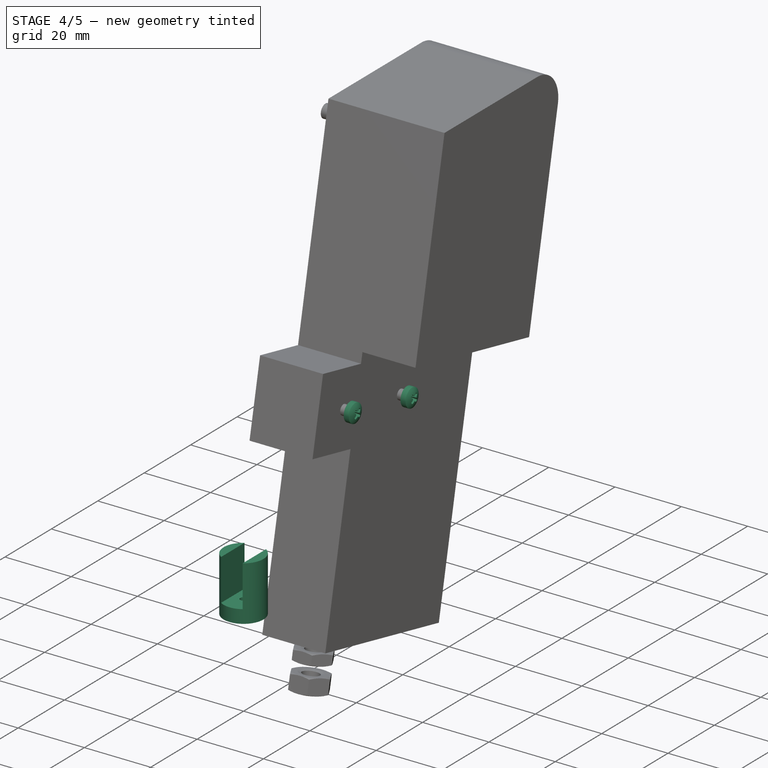
[diagram: stage 4 of 5 — iso view after this stage's code; geometry added in this stage tinted green]
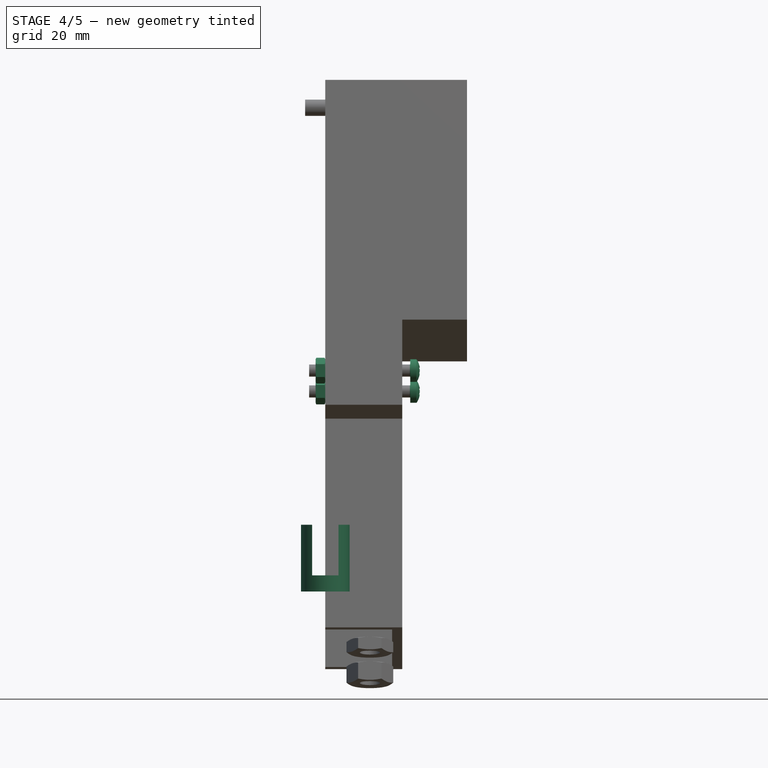
[diagram: stage 4 of 5 — front view after this stage's code; geometry added in this stage tinted green]
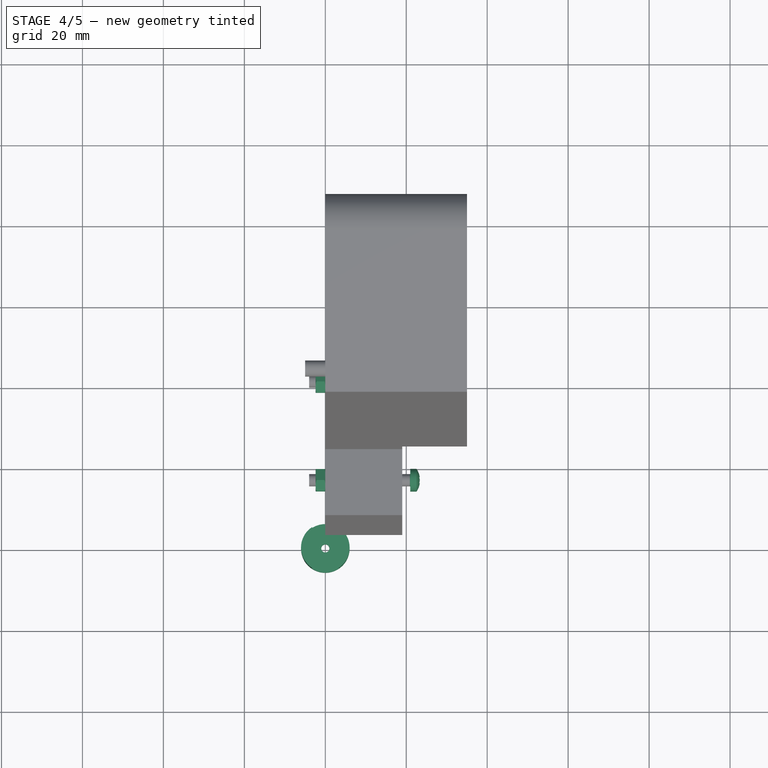
[diagram: stage 4 of 5 — top view after this stage's code; geometry added in this stage tinted green]
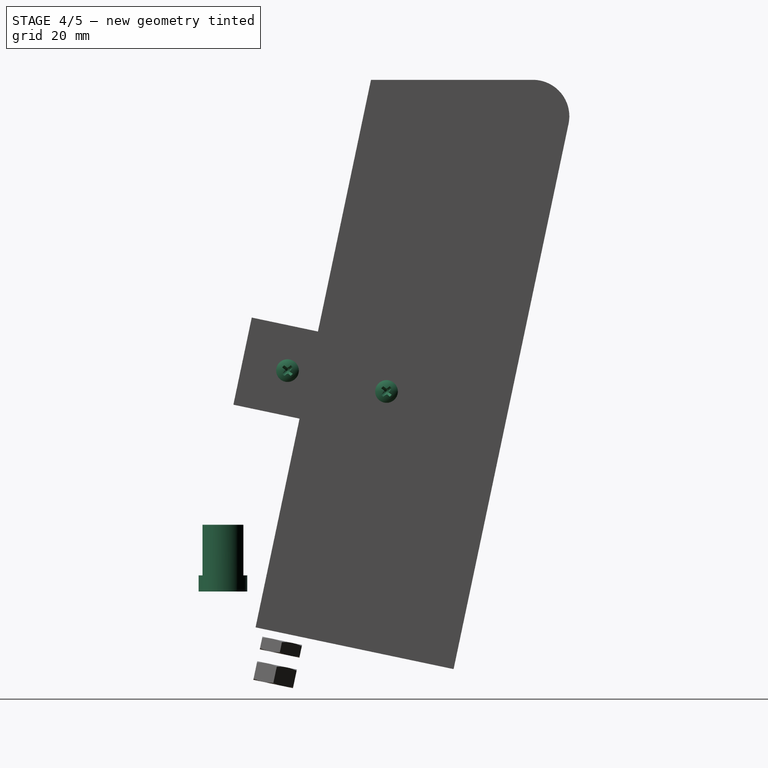
[diagram: stage 4 of 5 — right view after this stage's code; geometry added in this stage tinted green]
FEATURE [Sketcher::SketchObject] Sketch013
  FullyConstrained = true
  MapMode = 5
  Placement = pos=(0,0,0) rot=(0.57735,0.57735,0.57735;2.0944rad)
  Support = -> [YZ_Plane005]
  sketch-geometry (4):
    g0: LineSegment StartX=1 StartY=0 StartZ=0 EndX=6 EndY=0 EndZ=0
    g1: LineSegment StartX=6 StartY=0 StartZ=0 EndX=6 EndY=16.5 EndZ=0
    g2: LineSegment StartX=6 StartY=16.5 StartZ=0 EndX=1 EndY=16.5 EndZ=0
    g3: LineSegment StartX=1 StartY=16.5 StartZ=0 EndX=1 EndY=0 EndZ=0
  constraints (12):
    c: Coincident(g0,g1)
    c: Coincident(g1,g2)
    c: Coincident(g2,g3)
    c: Coincident(g3,g0)
    c: Horizontal(g0)
    c: Horizontal(g2)
    c: Vertical(g1)
    c: Vertical(g3)
    c: PointOnObject(g0,g-1)
    c: DistanceX(g-1,g0) = 1
    c: DistanceX(g-1,g0) = 6
    c: DistanceY(g1,g1) = 16.5
FEATURE [PartDesign::Revolution] Revolution001
  Angle = 360
  Angle2 = 60
  Axis = (-2e-16,3e-16,1)
  Base = (0,0,0)
  Placement = pos=(0,0,0) rot=(0.57735,0.57735,0.57735;2.0944rad)
  Profile = -> Sketch013
  ReferenceAxis = -> Sketch013 [V_Axis]
  Reversed = true
  Type = 0
FEATURE [Sketcher::SketchObject] Sketch014
  FullyConstrained = true
  MapMode = 5
  Placement = pos=(0,0,0) rot=(1,0,0;1.5708rad)
  Support = -> [XZ_Plane005]
  sketch-geometry (4):
    g0: LineSegment StartX=3.25 StartY=4 StartZ=0 EndX=-3.25 EndY=4 EndZ=0
    g1: LineSegment StartX=-3.25 StartY=4 StartZ=0 EndX=-3.25 EndY=20 EndZ=0
    g2: LineSegment StartX=-3.25 StartY=20 StartZ=0 EndX=3.25 EndY=20 EndZ=0
    g3: LineSegment StartX=3.25 StartY=20 StartZ=0 EndX=3.25 EndY=4 EndZ=0
  constraints (12):
    c: Coincident(g0,g1)
    c: Coincident(g1,g2)
    c: Coincident(g2,g3)
    c: Coincident(g3,g0)
    c: Horizontal(g2)
    c: Vertical(g1)
    c: Vertical(g3)
    c: DistanceY(g-1,g0) = 4
    c: DistanceY(g-1,g1) = 20
    c: DistanceY(g1,g1) = 16
    c: Symmetric(g0,g0,g-2)
    c: DistanceX(g0,g0) = 6.5
FEATURE [PartDesign::Pocket] Pocket002
  BaseFeature = -> Revolution001
  Direction = (0,1,-2e-16)
  Length = 5
  Length2 = 5
  Midplane = true
  Placement = pos=(0,0,0) rot=(0.57735,0.57735,0.57735;2.0944rad)
  Profile = -> Sketch014
  ReferenceAxis = -> Sketch014 [N_Axis]
  Type = 1
FEATURE [PartDesign::ShapeBinder] ShapeBinder001
  Placement = pos=(0,0,0) rot=(0.57735,0.57735,0.57735;2.0944rad)
  Support = -> [Hole004]
  TraceSupport = false
FEATURE [Sketcher::SketchObject] Sketch018
  ExternalGeometry = -> [Hole004]
  FullyConstrained = true
  MapMode = 5
  Placement = pos=(-9.1e-15,10.4586,49.6089) rot=(0.705193,0.705193,-0.073527;2.9948rad)
  Support = -> [ShapeBinder001]
  sketch-geometry (7):
    g0: LineSegment StartX=8.84408 StartY=21 StartZ=0 EndX=8.84408 EndY=11 EndZ=0
    g1: ArcOfCircle CenterX=16.8441 CenterY=11 CenterZ=0 NormalX=0 NormalY=0 NormalZ=1 AngleXU=0 Radius=8 StartAngle=3.14159 EndAngle=3.98965
    g2: LineSegment StartX=11.5526 StartY=5 StartZ=0 EndX=22.1356 EndY=5 EndZ=0
    g3: ArcOfCircle CenterX=16.8441 CenterY=11 CenterZ=0 NormalX=0 NormalY=0 NormalZ=1 AngleXU=0 Radius=8 StartAngle=5.43512 EndAngle=6.28319
    g4: LineSegment StartX=24.8441 StartY=11 StartZ=0 EndX=24.8441 EndY=21 EndZ=0
    g5: LineSegment StartX=24.8441 StartY=21 StartZ=0 EndX=8.84408 EndY=21 EndZ=0
    g6: LineSegment StartX=16.8441 StartY=5 StartZ=0 EndX=16.8441 EndY=21 EndZ=0
  constraints (18):
    c: Vertical(g0)
    c: Tangent(g0,g1) = -1.5708
    c: Coincident(g1,g2)
    c: Tangent(g3,g4) = -1.5708
    c: Coincident(g4,g5)
    c: Coincident(g5,g0)
    c: Vertical(g4)
    c: PointOnObject(g6,g2)
    c: PointOnObject(g6,g5)
    c: Symmetric(g-6,g-6,g6)
    c: Symmetric(g1,g3,g6)
    c: Symmetric(g4,g0,g6)
    c: DistanceY(g-1,g0) = 11
    c: Coincident(g3,g2)
    c: DistanceY(g-1,g1) = 5
    c: DistanceX(g5,g5) = 16
    c: Coincident(g3,g1)
    c: DistanceY(g0,g0) = 10
FEATURE [PartDesign::Pocket] Pocket003
  BaseFeature = -> Hole004
  Direction = (-2e-16,0.206286,0.978492)
  Length = 5
  Length2 = 5
  Placement = pos=(0,0,0) rot=(0.57735,0.57735,0.57735;2.0944rad)
  Profile = -> Sketch018
  ReferenceAxis = -> Sketch018 [N_Axis]
  Type = 1
FEATURE [PartDesign::Body] Body004  label="SteadyingBracketBase"
  Group = -> [ShapeBinder,Sketch016,Sketch017,Pad007,Hole004,ShapeBinder001,Sketch018,Pocket003]
  Origin = -> Origin006
  Tip = -> Pocket003
FEATURE [PartDesign::ShapeBinder] ShapeBinder003
  Support = -> [Pocket003]
  TraceSupport = false
FEATURE [Sketcher::SketchObject] Sketch020
  ExternalGeometry = -> [ShapeBinder003]
  FullyConstrained = true
  MapMode = 5
  Placement = pos=(0,0,0) rot=(0.57735,0.57735,0.57735;2.0944rad)
  Support = -> [YZ_Plane007]
  sketch-geometry (8):
    g0: LineSegment StartX=16.2062 StartY=60.661 StartZ=0 EndX=42.6255 EndY=55.0913 EndZ=0
    g1: ArcOfCircle CenterX=41.8003 CenterY=51.1773 CenterZ=0 NormalX=0 NormalY=0 NormalZ=1 AngleXU=0 Radius=4 StartAngle=6.07541 EndAngle=7.6462
    g2: LineSegment StartX=45.7143 StartY=50.3522 StartZ=0 EndX=44.8891 EndY=46.4382 EndZ=0
    g3: ArcOfCircle CenterX=40.9752 CenterY=47.2633 CenterZ=0 NormalX=0 NormalY=0 NormalZ=1 AngleXU=0 Radius=4 StartAngle=4.50461 EndAngle=6.07541
    g4: LineSegment StartX=40.15 StartY=43.3494 StartZ=0 EndX=13.7308 EndY=48.9191 EndZ=0
    g5: ArcOfCircle CenterX=14.5559 CenterY=52.8331 CenterZ=0 NormalX=0 NormalY=0 NormalZ=1 AngleXU=0 Radius=4 StartAngle=2.93381 EndAngle=4.50461
    g6: LineSegment StartX=10.6419 StartY=53.6582 StartZ=0 EndX=11.4671 EndY=57.5722 EndZ=0
    g7: ArcOfCircle CenterX=15.381 CenterY=56.747 CenterZ=0 NormalX=0 NormalY=0 NormalZ=1 AngleXU=0 Radius=4 StartAngle=1.36302 EndAngle=2.93381
  constraints (15):
    c: Tangent(g0,g1) = 1.5708
    c: Tangent(g1,g2) = 1.5708
    c: Tangent(g2,g3) = 1.5708
    c: Tangent(g3,g4) = 1.5708
    c: Tangent(g4,g5) = 1.5708
    c: Tangent(g5,g6) = 1.5708
    c: Tangent(g6,g7) = 1.5708
    c: Coincident(g7,g0)
    c: Equal(g7,g5)
    c: Coincident(g0,g-5)
    c: Coincident(g0,g-12)
    c: Coincident(g1,g-11)
    c: Coincident(g6,g-5)
    c: Coincident(g5,g-6)
    c: Coincident(g3,g-9)
FEATURE [PartDesign::Pad] Pad008
  Direction = (1,-2e-16,3e-16)
  Length = 5
  Length2 = 10
  Placement = pos=(0,0,0) rot=(0.57735,0.57735,0.57735;2.0944rad)
  Profile = -> Sketch020
  ReferenceAxis = -> Sketch020 [N_Axis]
  Type = 0
FEATURE [Sketcher::SketchObject] Sketch021
  ExternalGeometry = -> [ShapeBinder003]
  FullyConstrained = true
  MapMode = 5
  Placement = pos=(0,0,0) rot=(0.57735,0.57735,0.57735;2.0944rad)
  Support = -> [YZ_Plane007]
  sketch-geometry (2):
    g0: Circle CenterX=15.947 CenterY=54.5838 CenterZ=0 NormalX=0 NormalY=0 NormalZ=1 AngleXU=0 Radius=1.8
    g1: Circle CenterX=40.4093 CenterY=49.4266 CenterZ=0 NormalX=0 NormalY=0 NormalZ=1 AngleXU=0 Radius=1.8
  constraints (4):
    c: Equal(g0,g1)
    c: Coincident(g0,g-3)
    c: Coincident(g1,g-5)
    c: Equal(g0,g-3)
FEATURE [PartDesign::Hole] Hole006
  BaseFeature = -> Pad008
  CustomThreadClearance = 0
  Depth = 81.9964
  DepthType = 1
  Diameter = 3.6
  DrillForDepth = false
  DrillPoint = 1
  DrillPointAngle = 118
  HoleCutCountersinkAngle = 90
  HoleCutCustomValues = false
  HoleCutDepth = 0
  HoleCutDiameter = 6.1
  HoleCutType = 0
  ModelThread = false
  Placement = pos=(0,0,0) rot=(0.57735,0.57735,0.57735;2.0944rad)
  Profile = -> Sketch021
  Reversed = true
  Tapered = false
  TaperedAngle = 90
  ThreadClass = 0
  ThreadDepth = 81.9964
  ThreadDepthType = 0
  ThreadDirection = 0
  ThreadFit = 2
  ThreadSize = 9
  ThreadType = 1
  Threaded = false
  UseCustomThreadClearance = false
FEATURE [PartDesign::ShapeBinder] ShapeBinder004
  Placement = pos=(0,0,0) rot=(0.57735,0.57735,0.57735;2.0944rad)
  Support = -> [Hole006]
  TraceSupport = false
FEATURE [Sketcher::SketchObject] Sketch022
  ExternalGeometry = -> [ShapeBinder004]
  FullyConstrained = true
  MapMode = 5
  Placement = pos=(-1.13e-14,12.934,61.3508) rot=(0.705193,0.705193,-0.073527;2.9948rad)
  Support = -> [ShapeBinder004]
  sketch-geometry (5):
    g0: LineSegment StartX=10.1941 StartY=0 StartZ=0 EndX=11.3441 EndY=1.1 EndZ=0
    g1: LineSegment StartX=11.3441 StartY=1.1 StartZ=0 EndX=22.3441 EndY=1.1 EndZ=0
    g2: LineSegment StartX=22.3441 StartY=1.1 StartZ=0 EndX=23.4941 EndY=7.03116e-10 EndZ=0
    g3: LineSegment StartX=23.4941 StartY=7.03116e-10 StartZ=0 EndX=10.1941 EndY=0 EndZ=0
    g4: LineSegment StartX=16.8441 StartY=1.1 StartZ=0 EndX=16.8441 EndY=3.51558e-10 EndZ=0
  constraints (13):
    c: Coincident(g0,g1)
    c: Coincident(g1,g2)
    c: Coincident(g2,g3)
    c: Coincident(g3,g0)
    c: PointOnObject(g4,g1)
    c: PointOnObject(g4,g3)
    c: Symmetric(g1,g0,g4)
    c: Symmetric(g2,g0,g4)
    c: Symmetric(g-5,g-5,g4)
    c: DistanceY(g-5,g0) = 1.1
    c: DistanceX(g1,g1) = 11
    c: PointOnObject(g0,g-1)
    c: DistanceX(g3,g3) = 13.3
FEATURE [PartDesign::Pocket] Pocket004
  BaseFeature = -> Hole006
  Direction = (-2e-16,0.206286,0.978492)
  Length = 5
  Length2 = 5
  Placement = pos=(0,0,0) rot=(0.57735,0.57735,0.57735;2.0944rad)
  Profile = -> Sketch022
  ReferenceAxis = -> Sketch022 [N_Axis]
  Reversed = true
  Type = 1
FEATURE [PartDesign::Body] Body005  label="SteadyingBracketTop"
  Group = -> [ShapeBinder003,Sketch020,Pad008,Sketch021,Hole006,ShapeBinder004,Sketch022,Pocket004]
  Origin = -> Origin007
  Placement = pos=(16,0,0) rot=(0,0,1;0rad)
  Tip = -> Pocket004
FEATURE [Part::FeaturePython] Screw002  label="M3x25-Screw"  # Fasteners workbench fastener (typed FeaturePython)
  Placement = pos=(21,15.947,54.5838) rot=(0,1,0;1.5708rad)
  baseObject = -> Body005 [Edge35]
  diameter = 4
  invert = false
  leftHanded = false
  length = 9
  lengthCustom = 25
  matchOuter = false
  offset = 0
  thread = false
  type = 35
FEATURE [Part::FeaturePython] Screw003  label="M3x25-Screw001"  # Fasteners workbench fastener (typed FeaturePython)
  Placement = pos=(21,40.4093,49.4266) rot=(0,1,0;1.5708rad)
  baseObject = -> Body005 [Edge34]
  diameter = 4
  invert = false
  leftHanded = false
  length = 9
  lengthCustom = 25
  matchOuter = false
  offset = 0
  thread = false
  type = 35
FEATURE [Part::FeaturePython] Nut002  label="M3-Nut"  # Fasteners workbench fastener (typed FeaturePython)
  Placement = pos=(-2e-15,40.4093,49.4266) rot=(0,-1,0;1.5708rad)
  baseObject = -> Body [Edge44]
  diameter = 4
  invert = false
  leftHanded = false
  matchOuter = false
  offset = 0
  thread = false
  type = 7
FEATURE [Part::FeaturePython] Nut003  label="M3-Nut001"  # Fasteners workbench fastener (typed FeaturePython)
  Placement = pos=(-9e-15,15.947,54.5838) rot=(0,-1,0;1.5708rad)
  baseObject = -> Body [Edge47]
  diameter = 4
  invert = false
  leftHanded = false
  matchOuter = false
  offset = 0
  thread = false
  type = 7
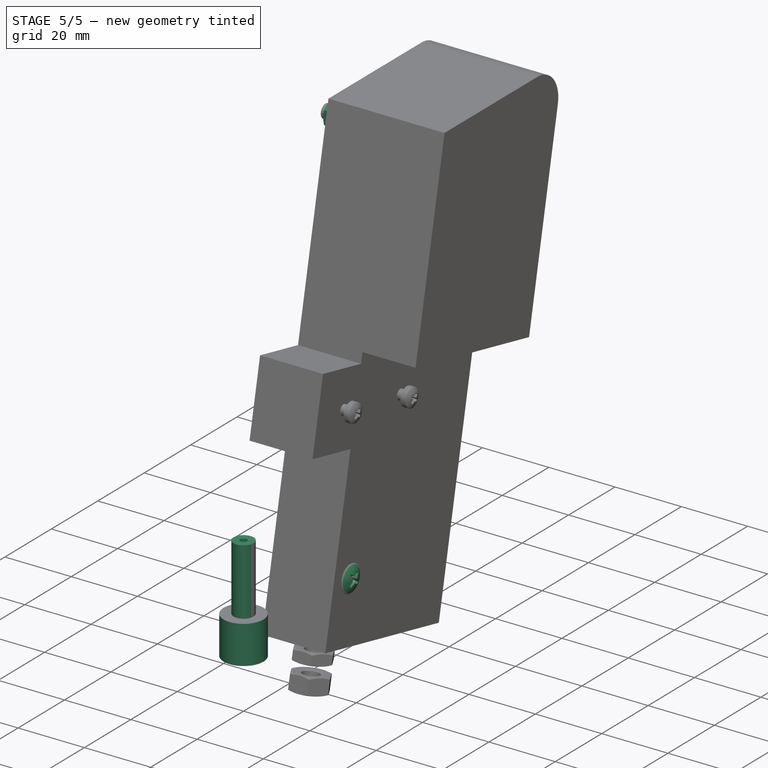
[diagram: stage 5 of 5 — iso view after this stage's code; geometry added in this stage tinted green]
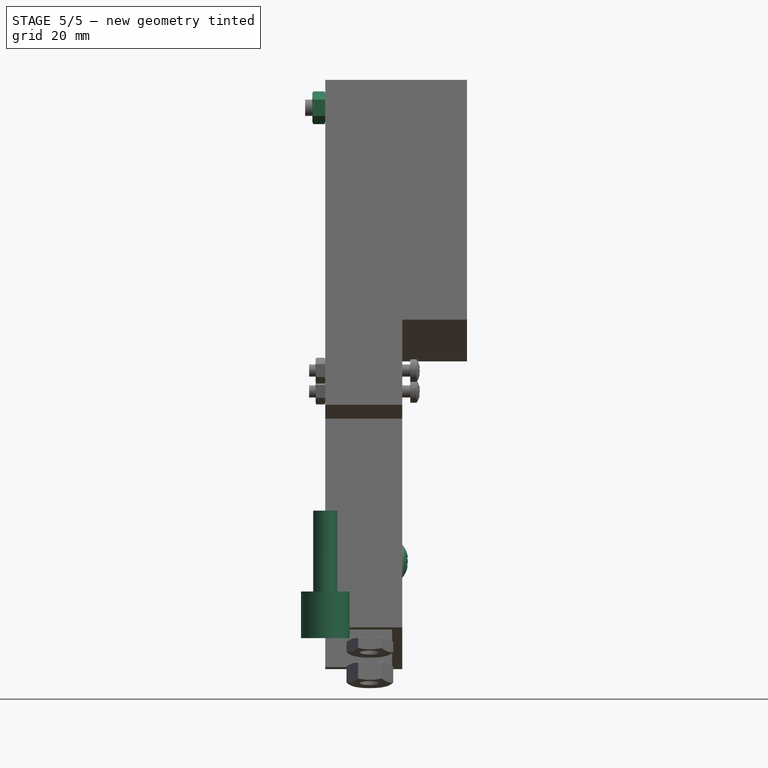
[diagram: stage 5 of 5 — front view after this stage's code; geometry added in this stage tinted green]
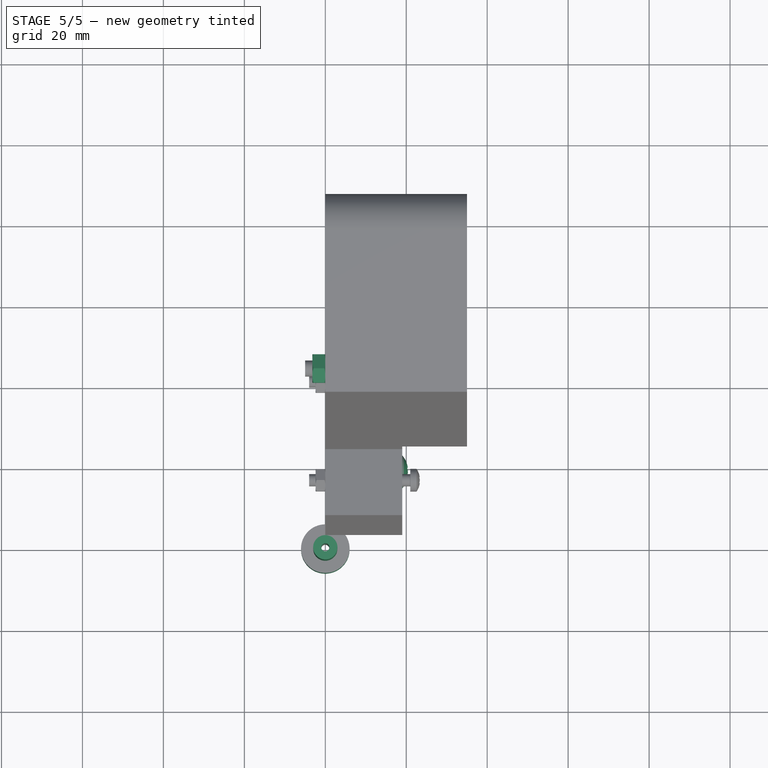
[diagram: stage 5 of 5 — top view after this stage's code; geometry added in this stage tinted green]
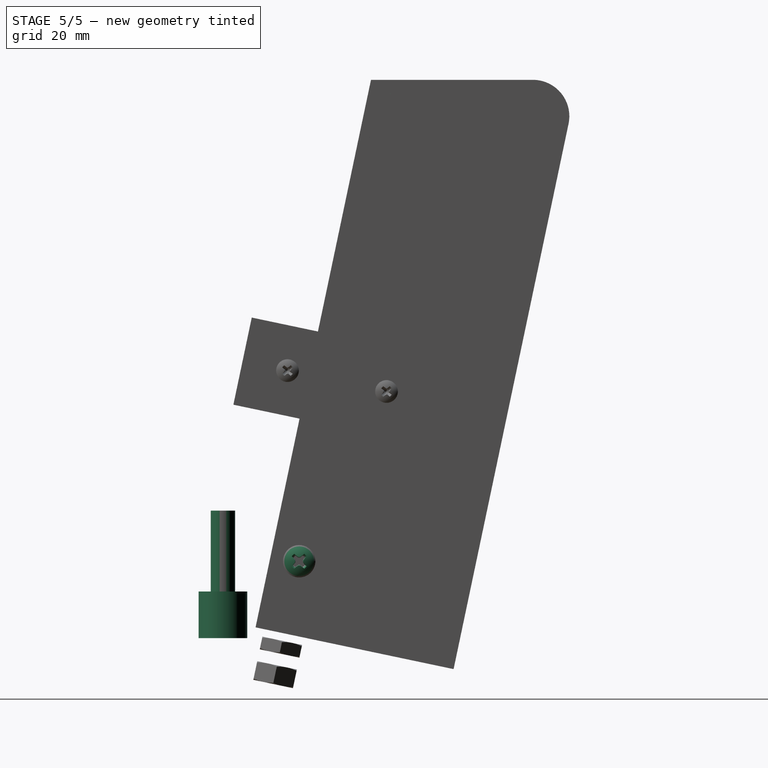
[diagram: stage 5 of 5 — right view after this stage's code; geometry added in this stage tinted green]
FEATURE [PartDesign::Body] Body002
  Group = -> [Sketch003,Pad001,Sketch004,Pad002,Sketch005,Pad003,Sketch007,Sketch008,Pad004,Sketch006,Pad005,Pocket]
  Origin = -> Origin003
  Placement = pos=(-41.7,-9.5,0) rot=(0,0,1;0rad)
  Tip = -> Pocket
  expr: .Placement.Base.x = -Sketch004.Constraints.BackHoleCentre
  expr: .Placement.Base.y = -Sketch004.Constraints.Centreline
FEATURE [Spreadsheet::Sheet] Spreadsheet  label="Settings001"
  cells = A1='Extended length; B1(extendedLength)=30; C1='Need to implement (set to 30); A2='Current length; B2(currentLength)=1; A3='Length between bolts; B3(betweenBoltLength)==currentLength + extendedLength + 54.5
FEATURE [App::Part] Part001  label="Actuator"
  Group = -> [Body002,Spreadsheet]
  Origin = -> Origin004
  Placement = pos=(18.5,0,6.5) rot=(0,1,0;4.71239rad)
FEATURE [App::Part] Part  label="ActuatorTransform"
  Group = -> [Part001]
  Origin = -> Origin002
  Placement = pos=(0,41.071,113.161) rot=(1,0,0;-0.207778rad)
  expr: .Placement.Rotation.Angle = -Sketch001.Constraints.OffsetAngle
FEATURE [Sketcher::SketchObject] Sketch009
  FullyConstrained = true
  MapMode = 5
  Placement = pos=(0,0,0) rot=(1,0,0;1.5708rad)
  Support = -> [XZ_Plane]
  sketch-geometry (4):
    g0: LineSegment StartX=0 StartY=-9 StartZ=0 EndX=20 EndY=-9 EndZ=0
    g1: LineSegment StartX=20 StartY=-9 StartZ=0 EndX=20 EndY=-12 EndZ=0
    g2: LineSegment StartX=20 StartY=-12 StartZ=0 EndX=0 EndY=-12 EndZ=0
    g3: LineSegment StartX=0 StartY=-12 StartZ=0 EndX=0 EndY=-9 EndZ=0
  constraints (12):
    c: Coincident(g0,g1)
    c: Coincident(g1,g2)
    c: Coincident(g2,g3)
    c: Coincident(g3,g0)
    c: Horizontal(g0)
    c: Horizontal(g2)
    c: Vertical(g1)
    c: Vertical(g3)
    c: PointOnObject(g0,g-2)
    c: DistanceY(g3,g3) = 3
    c: DistanceX(g2,g2) = 20
    c: DistanceY(g0,g-1) = 9
FEATURE [Sketcher::SketchObject] Sketch010
  FullyConstrained = true
  MapMode = 5
  Support = -> [XY_Plane]
  sketch-geometry (1):
    g0: Circle CenterX=11 CenterY=30 CenterZ=0 NormalX=0 NormalY=0 NormalZ=1 AngleXU=0 Radius=4
  constraints (3):
    c: DistanceX(g-1,g0) = 11
    c: Diameter(g0) = 8
    c: DistanceY(g-1,g0) = 30
FEATURE [Sketcher::SketchObject] Sketch011
  FullyConstrained = true
  MapMode = 5
  Placement = pos=(0,0,0) rot=(0.57735,0.57735,0.57735;2.0944rad)
  Support = -> [YZ_Plane001]
  sketch-geometry (8):
    g0: LineSegment StartX=1 StartY=20 StartZ=0 EndX=3 EndY=20 EndZ=0
    g1: LineSegment StartX=3 StartY=20 StartZ=0 EndX=3 EndY=0 EndZ=0
    g2: LineSegment StartX=3 StartY=0 StartZ=0 EndX=6 EndY=0 EndZ=0
    g3: LineSegment StartX=6 StartY=0 StartZ=0 EndX=6 EndY=-11.5 EndZ=0
    g4: LineSegment StartX=6 StartY=-11.5 StartZ=0 EndX=3 EndY=-11.5 EndZ=0
    g5: LineSegment StartX=3 StartY=-11.5 StartZ=0 EndX=3 EndY=-4 EndZ=0
    g6: LineSegment StartX=3 StartY=-4 StartZ=0 EndX=1 EndY=-4 EndZ=0
    g7: LineSegment StartX=1 StartY=-4 StartZ=0 EndX=1 EndY=20 EndZ=0
  constraints (24):
    c: Horizontal(g0)
    c: Coincident(g0,g1)
    c: PointOnObject(g1,g-1)
    c: Vertical(g1)
    c: Coincident(g1,g2)
    c: PointOnObject(g2,g-1)
    c: Coincident(g2,g3)
    c: Vertical(g3)
    c: Coincident(g3,g4)
    c: Horizontal(g4)
    c: Coincident(g4,g5)
    c: Vertical(g5)
    c: Coincident(g5,g6)
    c: Horizontal(g6)
    c: Coincident(g6,g7)
    c: Vertical(g7)
    c: Coincident(g0,g7)
    c: DistanceX(g-1,g0) = 3
    c: DistanceY(g6,g1) = 4
    c: DistanceY(g5,g5) = 7.5
    c: DistanceX(g4,g4) = 3
    c: DistanceX(g-1,g0) = 1
    c: DistanceY(g1,g1) = 20
    c: DistanceX(g-1,g5) = 3
FEATURE [PartDesign::Revolution] Revolution
  Angle = 360
  Angle2 = 60
  Axis = (-2e-16,3e-16,1)
  Base = (0,0,0)
  Placement = pos=(0,0,0) rot=(0.57735,0.57735,0.57735;2.0944rad)
  Profile = -> Sketch011
  ReferenceAxis = -> Sketch011 [V_Axis]
  Reversed = true
  Type = 0
FEATURE [Part::FeaturePython] Washer  label="M4-Washer"  # Fasteners workbench fastener (typed FeaturePython)
  Placement = pos=(3,42.4119,119.521) rot=(0,1,0;1.5708rad)
  diameter = 5
  invert = false
  leftHanded = false
  matchOuter = false
  offset = 0
  type = 3
FEATURE [Part::FeaturePython] Washer001  label="M4-Washer081"  # Fasteners workbench fastener (typed FeaturePython)
  Placement = pos=(3.9,42.4119,119.521) rot=(0,1,0;1.5708rad)
  baseObject = -> Washer [Edge1]
  diameter = 5
  invert = false
  leftHanded = false
  matchOuter = false
  offset = 0
  type = 3
FEATURE [Part::FeaturePython] Washer002  label="M4-Washer082"  # Fasteners workbench fastener (typed FeaturePython)
  Placement = pos=(4.8,42.4119,119.521) rot=(0,1,0;1.5708rad)
  baseObject = -> Washer001 [Edge1]
  diameter = 5
  invert = false
  leftHanded = false
  matchOuter = false
  offset = 0
  type = 3
FEATURE [Part::FeaturePython] Washer003  label="M4-Washer083"  # Fasteners workbench fastener (typed FeaturePython)
  Placement = pos=(5.7,42.4119,119.521) rot=(0,1,0;1.5708rad)
  baseObject = -> Washer002 [Edge1]
  diameter = 5
  invert = false
  leftHanded = false
  matchOuter = false
  offset = 0
  type = 3
FEATURE [Part::FeaturePython] Washer004  label="M4-Washer084"  # Fasteners workbench fastener (typed FeaturePython)
  Placement = pos=(6.6,42.4119,119.521) rot=(0,1,0;1.5708rad)
  baseObject = -> Washer003 [Edge1]
  diameter = 5
  invert = false
  leftHanded = false
  matchOuter = false
  offset = 0
  type = 3
FEATURE [Part::FeaturePython] Nut001  label="M4-Nut"  # Fasteners workbench fastener (typed FeaturePython)
  Placement = pos=(-1.56e-13,42.4119,119.521) rot=(0,-1,0;1.5708rad)
  diameter = 6
  invert = false
  leftHanded = false
  matchOuter = false
  offset = 0
  thread = false
  type = 7
FEATURE [Sketcher::SketchObject] Sketch015
  FullyConstrained = true
  MapMode = 5
  Placement = pos=(0,0,0) rot=(0.57735,0.57735,0.57735;2.0944rad)
  Support = -> [YZ_Plane005]
  sketch-geometry (1):
    g0: Circle CenterX=0 CenterY=12.5 CenterZ=0 NormalX=0 NormalY=0 NormalZ=1 AngleXU=0 Radius=2
  constraints (3):
    c: PointOnObject(g0,g-2)
    c: Diameter(g0) = 4
    c: DistanceY(g-1,g0) = 12.5
FEATURE [PartDesign::Hole] Hole002
  BaseFeature = -> Pocket002
  CustomThreadClearance = 0
  Depth = 25
  DepthType = 0
  Diameter = 3.3
  DrillForDepth = false
  DrillPoint = 1
  DrillPointAngle = 118
  HoleCutCountersinkAngle = 90
  HoleCutCustomValues = false
  HoleCutDepth = 0
  HoleCutDiameter = 6.1
  HoleCutType = 0
  ModelThread = false
  Placement = pos=(0,0,0) rot=(0.57735,0.57735,0.57735;2.0944rad)
  Profile = -> Sketch015
  Tapered = false
  TaperedAngle = 90
  ThreadClass = 0
  ThreadDepth = 25
  ThreadDepthType = 0
  ThreadDirection = 0
  ThreadFit = 0
  ThreadSize = 11
  ThreadType = 1
  Threaded = true
  UseCustomThreadClearance = false
FEATURE [PartDesign::Hole] Hole003
  BaseFeature = -> Hole002
  CustomThreadClearance = 0
  Depth = 25
  DepthType = 0
  Diameter = 4.5
  DrillForDepth = false
  DrillPoint = 1
  DrillPointAngle = 118
  HoleCutCountersinkAngle = 90
  HoleCutCustomValues = false
  HoleCutDepth = 0
  HoleCutDiameter = 6.1
  HoleCutType = 0
  ModelThread = false
  Placement = pos=(0,0,0) rot=(0.57735,0.57735,0.57735;2.0944rad)
  Profile = -> Sketch015
  Reversed = true
  Tapered = false
  TaperedAngle = 90
  ThreadClass = 0
  ThreadDepth = 25
  ThreadDepthType = 0
  ThreadDirection = 0
  ThreadFit = 0
  ThreadSize = 11
  ThreadType = 1
  Threaded = false
  UseCustomThreadClearance = false
FEATURE [PartDesign::Body] Body003  label="CableEndHolder"
  Group = -> [Sketch013,Revolution001,Sketch014,Pocket002,Sketch015,Hole002,Hole003]
  Origin = -> Origin005
  Placement = pos=(11.125,16.25,-4.75) rot=(-1,0,0;0.207778rad)
  Tip = -> Hole003
  expr: .Placement.Base.y = 16.25 + sin(.Placement.Rotation.Angle) * (<<Settings001>>.extendedLength - <<Settings001>>.currentLength)
  expr: .Placement.Base.z = -4.75 + cos(.Placement.Rotation.Angle) * (Spreadsheet.extendedLength - Spreadsheet.currentLength)
  expr: .Placement.Rotation.Angle = Sketch001.Constraints.OffsetAngle
FEATURE [Part::FeaturePython] Screw001  label="M4x12-Screw"  # Fasteners workbench fastener (typed FeaturePython)
  Placement = pos=(17.375,18.8286,7.48115) rot=(0,1,0;1.5708rad)
  baseObject = -> Body003 [Edge20]
  diameter = 6
  invert = false
  leftHanded = false
  length = 4
  lengthCustom = 12
  matchOuter = false
  offset = 3
  thread = false
  type = 35
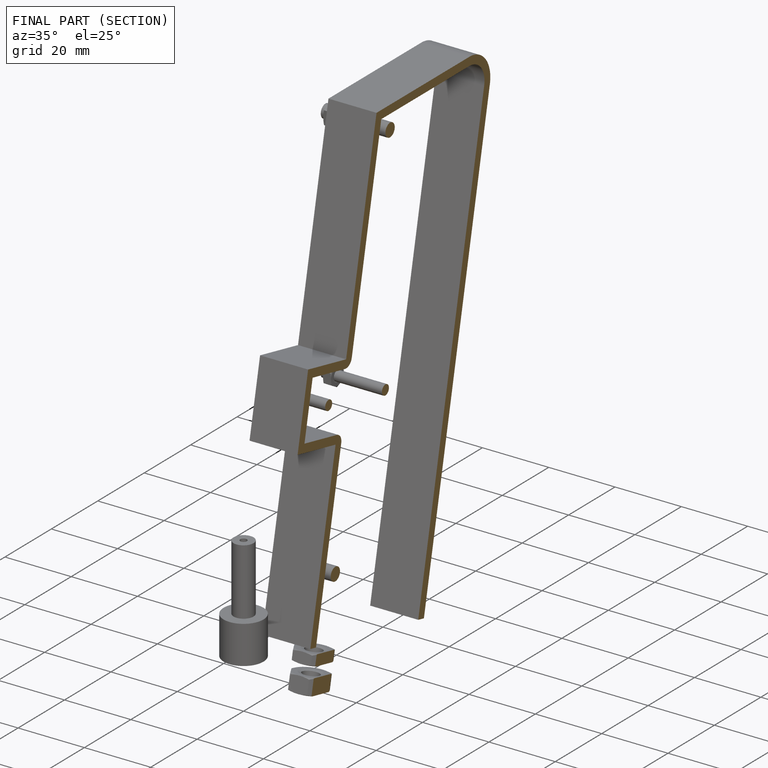
[diagram: finished part — half-section view (interior)]
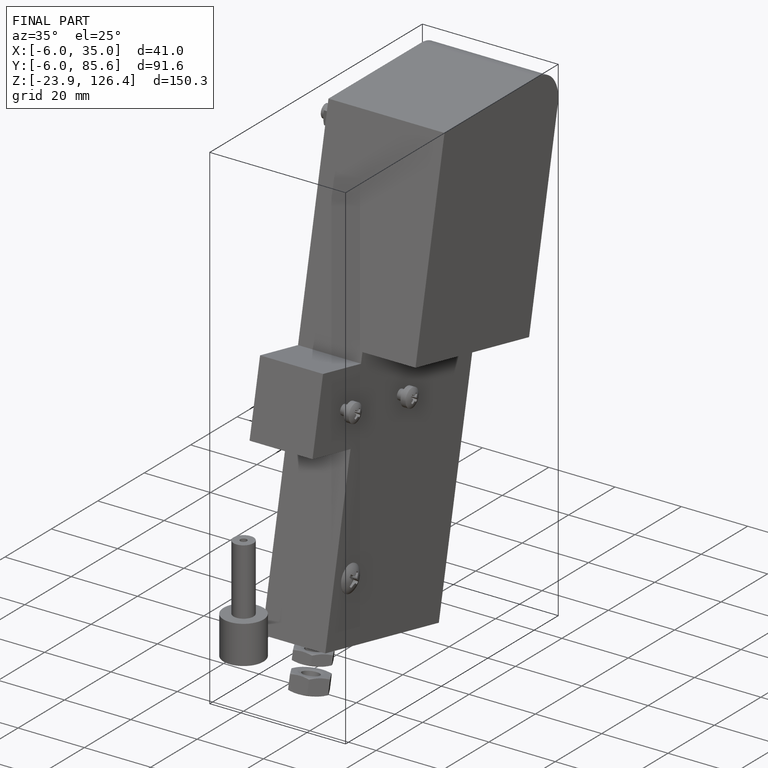
[diagram: finished part — iso view with bounding-box wireframe]
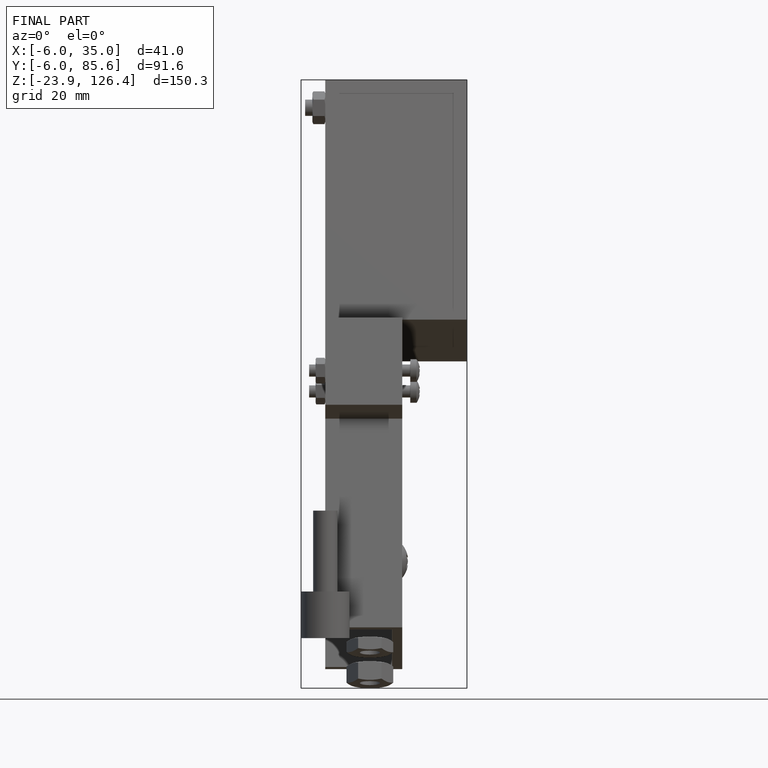
[diagram: finished part — front view with bounding-box wireframe]
